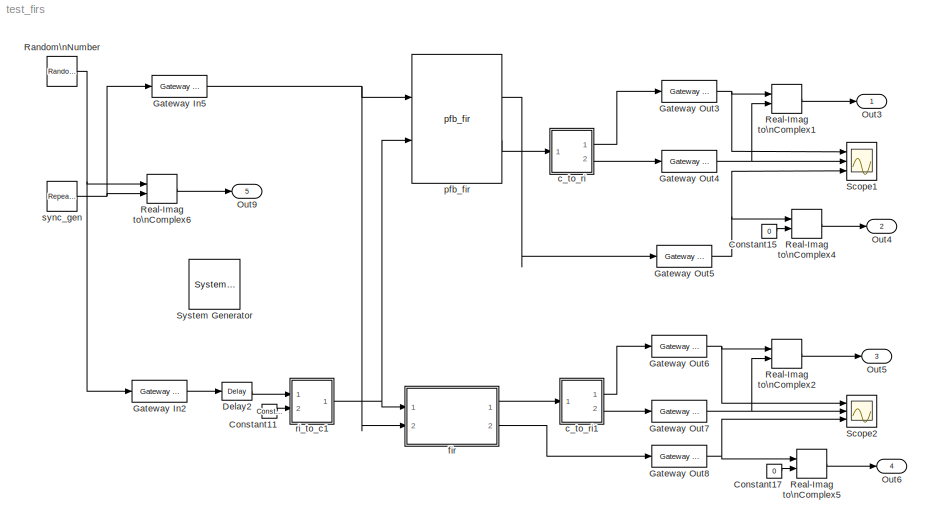
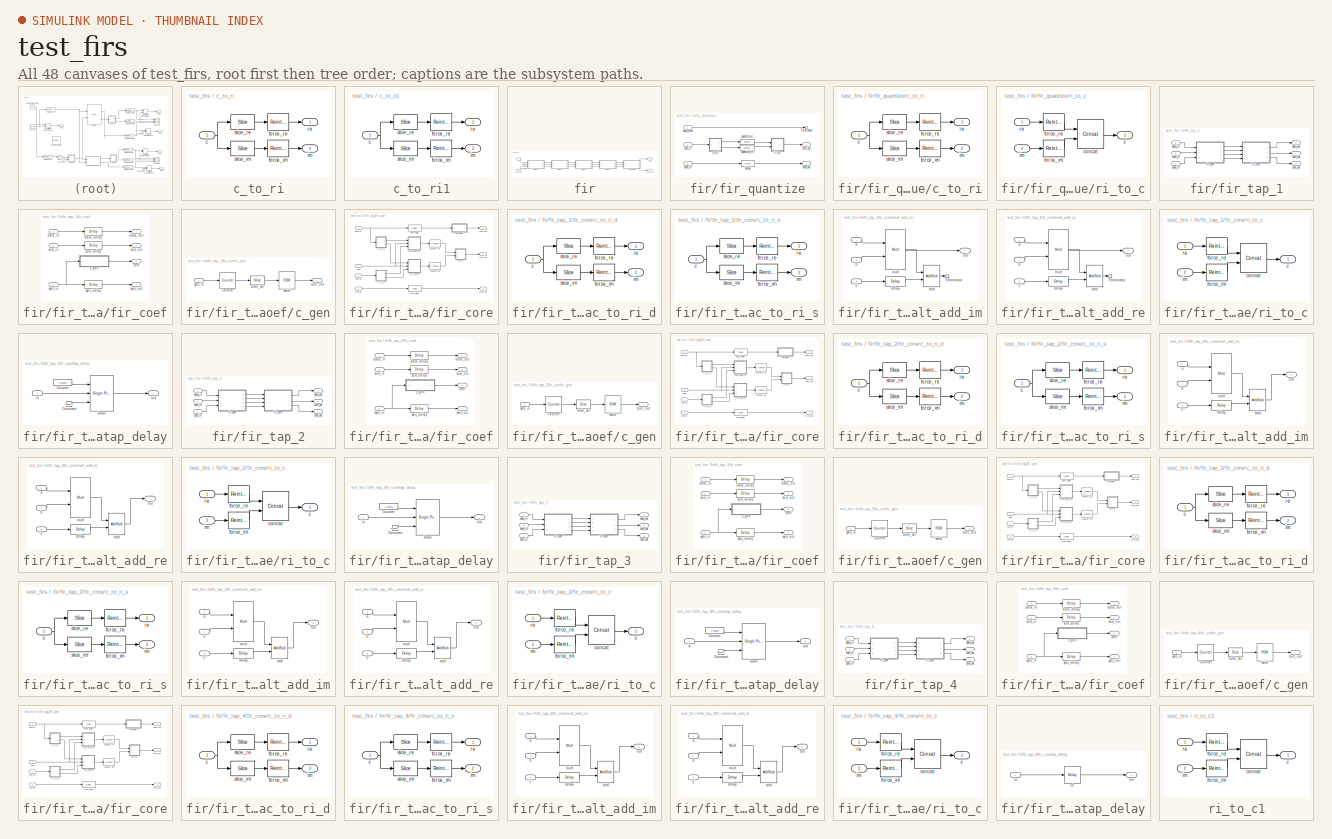
[diagram: thumbnail index - all 48 canvases of the model, root first then tree order]
MODEL test_firs
KIND model
BLOCK [Reference]  System Generator  REF=xbsIndex_r3/ System Generator
  AttributesFormatString = System\\nGenerator
  Ports = []
  ShowPortLabels = on
  SourceBlock = xbsIndex_r3/ System Generator
  SourceType = Xilinx System Generator
  Tag = genX
  UserData = DataTag0
  UserDataPersistent = on
  core_generation = According to Block Masks
  dbl_ovrd = According to Block Masks
  deprecated_control = off
  directory = ./netlist
  eval_field = 0
  incr_netlist = off
  package = bg575
  part = xc2v1000
  run_coregen = off
  simulink_period = 1
  speed = -4
  synthesis_tool = XST
  sysclk_period = 100
  testbench = off
  trim_vbits = Everywhere in SubSystem
  xilinxfamily = Virtex2
BLOCK [Reference] Constant11  REF=xbsIndex_r3/Constant
  Ports = [0, 1]
  SourceBlock = xbsIndex_r3/Constant
  SourceType = Xilinx Constant Block
  arith_type = Unsigned
  bin_pt = 7
  carry = CIN
  const = 0
  dbl_ovrd = off
  equ = P=C
  explicit_period = on
  inp1 = P
  inp2 = PCIN>>17
  iostate = 0
  n_bits = 8
  opr = +
  opselect = C
  period = 1
BLOCK [Constant] Constant15
  Value = 0
BLOCK [Constant] Constant17
  Value = 0
BLOCK [Reference] Delay2  REF=xbsIndex_r3/Delay
  Ports = [1, 1]
  SourceBlock = xbsIndex_r3/Delay
  SourceType = Xilinx Delay Block
  accept_only_valid = off
  dbl_ovrd = off
  en = off
  explicit_period = off
  init_zero = on
  latency = 1
  period = 1
  reg_retiming = off
  show_param = off
  xl_area = [0, 0, 0, 0, 0, 0, 0]
  xl_use_area = off
BLOCK [Reference] Gateway In2  REF=xbsIndex_r3/Gateway In
  LOCs = {}
  Ports = [1, 1]
  SourceBlock = xbsIndex_r3/Gateway In
  SourceType = Xilinx Gateway In
  arith_type = Signed  (2's comp)
  bin_pt = 7
  dbl_ovrd = off
  locs_specified = off
  n_bits = 8
  needs_fixed_name = off
  overflow = Wrap
  period = 1
  quantization = Round  (unbiased: +/- Inf)
  show_param = off
  timing_constraint = None
  xl_area = [0, 0, 0, 0, 0, 0, 0]
  xl_use_area = off
BLOCK [Reference] Gateway In5  REF=xbsIndex_r3/Gateway In
  LOCs = {}
  Ports = [1, 1]
  SourceBlock = xbsIndex_r3/Gateway In
  SourceType = Xilinx Gateway In
  arith_type = Boolean
  bin_pt = 7
  dbl_ovrd = off
  locs_specified = off
  n_bits = 8
  needs_fixed_name = off
  overflow = Wrap
  period = 1
  quantization = Truncate
  show_param = off
  timing_constraint = None
  xl_area = [0, 0, 0, 0, 0, 0, 0]
  xl_use_area = off
BLOCK [Reference] Gateway Out3  REF=xbsIndex_r3/Gateway Out
  LOCs = {}
  Ports = [1, 1]
  SourceBlock = xbsIndex_r3/Gateway Out
  SourceType = Xilinx Gateway Out
  arith_type = Boolean
  bin_pt = 6
  hdl_port = on
  locs_specified = off
  nbits = 8
  needs_fixed_name = off
  output_type = Double
  overflow = Wrap
  quantization = Truncate
  show_param = off
  timing_constraint = None
  xl_area = [0, 0, 0, 0, 0, 0, 0]
  xl_use_area = off
BLOCK [Reference] Gateway Out4  REF=xbsIndex_r3/Gateway Out
  LOCs = {}
  Ports = [1, 1]
  SourceBlock = xbsIndex_r3/Gateway Out
  SourceType = Xilinx Gateway Out
  arith_type = Boolean
  bin_pt = 6
  hdl_port = on
  locs_specified = off
  nbits = 8
  needs_fixed_name = off
  output_type = Double
  overflow = Wrap
  quantization = Truncate
  show_param = off
  timing_constraint = None
  xl_area = [0, 0, 0, 0, 0, 0, 0]
  xl_use_area = off
BLOCK [Reference] Gateway Out5  REF=xbsIndex_r3/Gateway Out
  LOCs = {}
  Ports = [1, 1]
  SourceBlock = xbsIndex_r3/Gateway Out
  SourceType = Xilinx Gateway Out
  arith_type = Boolean
  bin_pt = 6
  hdl_port = on
  locs_specified = off
  nbits = 8
  needs_fixed_name = off
  output_type = Double
  overflow = Wrap
  quantization = Truncate
  show_param = off
  timing_constraint = None
  xl_area = [0, 0, 0, 0, 0, 0, 0]
  xl_use_area = off
BLOCK [Reference] Gateway Out6  REF=xbsIndex_r3/Gateway Out
  LOCs = {}
  Ports = [1, 1]
  SourceBlock = xbsIndex_r3/Gateway Out
  SourceType = Xilinx Gateway Out
  arith_type = Boolean
  bin_pt = 6
  hdl_port = on
  locs_specified = off
  nbits = 8
  needs_fixed_name = off
  output_type = Double
  overflow = Wrap
  quantization = Truncate
  show_param = off
  timing_constraint = None
  xl_area = [0, 0, 0, 0, 0, 0, 0]
  xl_use_area = off
BLOCK [Reference] Gateway Out7  REF=xbsIndex_r3/Gateway Out
  LOCs = {}
  Ports = [1, 1]
  SourceBlock = xbsIndex_r3/Gateway Out
  SourceType = Xilinx Gateway Out
  arith_type = Boolean
  bin_pt = 6
  hdl_port = on
  locs_specified = off
  nbits = 8
  needs_fixed_name = off
  output_type = Double
  overflow = Wrap
  quantization = Truncate
  show_param = off
  timing_constraint = None
  xl_area = [0, 0, 0, 0, 0, 0, 0]
  xl_use_area = off
BLOCK [Reference] Gateway Out8  REF=xbsIndex_r3/Gateway Out
  LOCs = {}
  Ports = [1, 1]
  SourceBlock = xbsIndex_r3/Gateway Out
  SourceType = Xilinx Gateway Out
  arith_type = Boolean
  bin_pt = 6
  hdl_port = on
  locs_specified = off
  nbits = 8
  needs_fixed_name = off
  output_type = Double
  overflow = Wrap
  quantization = Truncate
  show_param = off
  timing_constraint = None
  xl_area = [0, 0, 0, 0, 0, 0, 0]
  xl_use_area = off
BLOCK [Outport] Out3
  BusOutputAsStruct = off
  IconDisplay = Port number
BLOCK [Outport] Out4
  BusOutputAsStruct = off
  IconDisplay = Port number
  Port = 2
BLOCK [Outport] Out5
  BusOutputAsStruct = off
  IconDisplay = Port number
  Port = 3
BLOCK [Outport] Out6
  BusOutputAsStruct = off
  IconDisplay = Port number
  Port = 4
BLOCK [Outport] Out9
  BusOutputAsStruct = off
  IconDisplay = Port number
  Port = 5
BLOCK [RandomNumber] Random\nNumber
  SampleTime = 1
  Seed = floor(100*(now-floor(now)))
  Variance = .3^2
BLOCK [RealImagToComplex] Real-Imag to\nComplex1
  Ports = [2, 1]
BLOCK [RealImagToComplex] Real-Imag to\nComplex2
  Ports = [2, 1]
BLOCK [RealImagToComplex] Real-Imag to\nComplex4
  Ports = [2, 1]
BLOCK [RealImagToComplex] Real-Imag to\nComplex5
  Ports = [2, 1]
BLOCK [RealImagToComplex] Real-Imag to\nComplex6
  Ports = [2, 1]
BLOCK [Scope] Scope1
  DataFormat = StructureWithTime
  NumInputPorts = 3
  Ports = [3]
  SaveName = ScopeData1
  YMax = 5~5~5
  YMin = -5~-5~-5
  ZoomMode = xonly
BLOCK [Scope] Scope2
  DataFormat = StructureWithTime
  NumInputPorts = 3
  Ports = [3]
  SaveName = ScopeData2
  YMax = 5~5~5
  YMin = -5~-5~-5
  ZoomMode = xonly
BLOCK [SubSystem] c_to_ri
  AttributesFormatString = 18_17 r/i
  MaskCallbackString = |
  MaskDescription = Outputs real and imaginary components of a complex input.
  MaskEnableString = on,on
  MaskHelp = <pre>\nDescription::\n\nOutputs real and imaginary components of a complex input.\nUseful for simplifying interconnects.\nSee also: Real-Imag to Complex (ri_to_c)\n\nMask Parameters::\n\nBit Width (n_bits): Specifies the width of the real/imaginary components.\nAssumed equal for both components.\n\nBinary Point (bin_pt): Specifies the binary point location in the real/imaginary components.\nAssume...<+36ch>  <repeated x11 — deduplicated; at blocks: c_to_ri, c_to_ri1, c_to_ri_d, c_to_ri_s>
  MaskIconFrame = on
  MaskIconOpaque = on
  MaskIconRotate = none
  MaskIconUnits = autoscale
  MaskInitialization = c_to_ri_init(gcb,n_bits,bin_pt);
  MaskPromptString = Bit Width|Binary Point
  MaskSelfModifiable = on
  MaskStyleString = edit,edit
  MaskTabNameString = ,
  MaskToolTipString = on,on
  MaskTunableValueString = on,on
  MaskType = Complex to Real-Imag
  MaskValueString = 18|17
  MaskVarAliasString = ,
  MaskVariables = n_bits=@1;bin_pt=@2;
  MaskVisibilityString = on,on
  MinAlgLoopOccurrences = off
  Ports = [1, 2]
  RTWSystemCode = Auto
  TreatAsAtomicUnit = off
  UserData = DataTag1
  UserDataPersistent = on
BLOCK [Inport] c_to_ri/c
  IconDisplay = Port number
  LatchInput = off
  Port = 1
BLOCK [Reference] c_to_ri/force_im  REF=xbsIndex_r3/Reinterpret
  Ports = [1, 1]
  SourceBlock = xbsIndex_r3/Reinterpret
  SourceType = Xilinx Type Reinterpreting Block
  arith_type = Signed  (2's comp)
  bin_pt = 17
  force_arith_type = on
  force_bin_pt = on
  force_valid = on
BLOCK [Reference] c_to_ri/force_re  REF=xbsIndex_r3/Reinterpret
  Ports = [1, 1]
  SourceBlock = xbsIndex_r3/Reinterpret
  SourceType = Xilinx Type Reinterpreting Block
  arith_type = Signed  (2's comp)
  bin_pt = 17
  force_arith_type = on
  force_bin_pt = on
  force_valid = on
BLOCK [Outport] c_to_ri/im
  BusOutputAsStruct = off
  IconDisplay = Port number
  Port = 2
BLOCK [Outport] c_to_ri/re
  BusOutputAsStruct = off
  IconDisplay = Port number
BLOCK [Reference] c_to_ri/slice_im  REF=xbsIndex_r3/Slice
  Ports = [1, 1]
  SourceBlock = xbsIndex_r3/Slice
  SourceType = Xilinx Slice Block
  base0 = LSB of Input
  base1 = MSB of Input
  bit0 = 0
  bit1 = 0
  boolean_output = off
  dbl_ovrd = off
  explicit_period = off
  mode = Lower Bit Location + Width
  nbits = 18
  period = 1
BLOCK [Reference] c_to_ri/slice_re  REF=xbsIndex_r3/Slice
  Ports = [1, 1]
  SourceBlock = xbsIndex_r3/Slice
  SourceType = Xilinx Slice Block
  base0 = LSB of Input
  base1 = MSB of Input
  bit0 = 0
  bit1 = 0
  boolean_output = off
  dbl_ovrd = off
  explicit_period = off
  mode = Upper Bit Location + Width
  nbits = 18
  period = 1
BLOCK [SubSystem] c_to_ri1
  AttributesFormatString = 9_7 r/i
  MaskCallbackString = |
  MaskDescription = Outputs real and imaginary components of a complex input.
  MaskEnableString = on,on
  MaskIconFrame = on
  MaskIconOpaque = on
  MaskIconRotate = none
  MaskIconUnits = autoscale
  MaskInitialization = c_to_ri_init(gcb,n_bits,bin_pt);
  MaskPromptString = Bit Width|Binary Point
  MaskSelfModifiable = on
  MaskStyleString = edit,edit
  MaskTabNameString = ,
  MaskToolTipString = on,on
  MaskTunableValueString = on,on
  MaskType = Complex to Real-Imag
  MaskValueString = 9|7
  MaskVarAliasString = ,
  MaskVariables = n_bits=@1;bin_pt=@2;
  MaskVisibilityString = on,on
  MinAlgLoopOccurrences = off
  Ports = [1, 2]
  RTWSystemCode = Auto
  TreatAsAtomicUnit = off
  UserData = DataTag2
  UserDataPersistent = on
BLOCK [Inport] c_to_ri1/c
  IconDisplay = Port number
  LatchInput = off
  Port = 1
BLOCK [Reference] c_to_ri1/force_im  REF=xbsIndex_r3/Reinterpret
  Ports = [1, 1]
  SourceBlock = xbsIndex_r3/Reinterpret
  SourceType = Xilinx Type Reinterpreting Block
  arith_type = Signed  (2's comp)
  bin_pt = 7
  force_arith_type = on
  force_bin_pt = on
  force_valid = on
BLOCK [Reference] c_to_ri1/force_re  REF=xbsIndex_r3/Reinterpret
  Ports = [1, 1]
  SourceBlock = xbsIndex_r3/Reinterpret
  SourceType = Xilinx Type Reinterpreting Block
  arith_type = Signed  (2's comp)
  bin_pt = 7
  force_arith_type = on
  force_bin_pt = on
  force_valid = on
BLOCK [Outport] c_to_ri1/im
  BusOutputAsStruct = off
  IconDisplay = Port number
  Port = 2
BLOCK [Outport] c_to_ri1/re
  BusOutputAsStruct = off
  IconDisplay = Port number
BLOCK [Reference] c_to_ri1/slice_im  REF=xbsIndex_r3/Slice
  Ports = [1, 1]
  SourceBlock = xbsIndex_r3/Slice
  SourceType = Xilinx Slice Block
  base0 = LSB of Input
  base1 = MSB of Input
  bit0 = 0
  bit1 = 0
  boolean_output = off
  dbl_ovrd = off
  explicit_period = off
  mode = Lower Bit Location + Width
  nbits = 9
  period = 1
BLOCK [Reference] c_to_ri1/slice_re  REF=xbsIndex_r3/Slice
  Ports = [1, 1]
  SourceBlock = xbsIndex_r3/Slice
  SourceType = Xilinx Slice Block
  base0 = LSB of Input
  base1 = MSB of Input
  bit0 = 0
  bit1 = 0
  boolean_output = off
  dbl_ovrd = off
  explicit_period = off
  mode = Upper Bit Location + Width
  nbits = 9
  period = 1
BLOCK [SubSystem] fir
  AncestorBlock = newfft_library/FIR/fir
  AttributesFormatString = 4 taps\n9_8 coefs\n8_7 in\n9_7 out
  MaskCallbackString = |||||||||||mvs=get_param(gcb,'MaskVisibilityString');\nif strcmp(get_param(gcb,'show_sbo'),'on')\n  onoff='on';\nelse\n  onoff='off';\nend\nmvs=regexprep(mvs,'o[nf]*$',onoff);\nset_param(gcb,'MaskVisibilityString',mvs);\n|
  MaskDescription = A Finite Impluse Response Filter.  This FIR filter does not have provisions for folding the input sequence to improve multiplier efficiency, so it is suboptimal for \"regular\" (i.e. non-WOLA) FIR filters.  It is intended primarily for WOLA (Weighted OverLap Add) FIR filters.
  MaskEnableString = on,on,on,on,on,on,on,on,on,on,on,on,on
  MaskHelp = <pre>\nDescription::\n\nA Finite Impluse Response Filter.\n\nThis Finite Impluse Response Filter does not have provisions for folding the input\nsequence to improve multiplier efficiency, so it is suboptimal for \"regular\" (i.e. non-WOLA)\nFIR filters.  It is intended primarily for WOLA (Weighted OverLap Add) FIR filters.\n\nMask Parameters::\n\nCoefficiant(s) (coefs): Matrix of real double(s) to...<+1635ch>
  MaskIconFrame = on
  MaskIconOpaque = on
  MaskIconRotate = none
  MaskIconUnits = autoscale
  MaskInitialization = tic\nfir_init(gcb, ...\n  coefs, ...\n  n_bits_c, ...\n  bin_pt_c, ...\n  n_bits_d, ...\n  bin_pt_d, ...\n  n_bits_o, ...\n  bin_pt_o, ...\n  coef_bram, ...\n  delay_bram, ...\n  mult_latency, ...\n  add_latency, ...\n  lower(get_param(gcb,'munge_submasks')) );\ndisp('fir_init complete.');\ntoc
  MaskPromptString = Tap Coefficients|Number of Coefficient Bits|Coefficient Binary Point|Number of Data Bits|Data Binary Point|Number of Bits Out|Binary Point Out|Use BRAM for Coefficients|Use BRAM for Delay|Multiplier Latency|Adder Latency|Show Sub-Block Options|Sub-Block Masks
  MaskSelfModifiable = on
  MaskStyleString = edit,edit,edit,edit,edit,edit,edit,checkbox,checkbox,edit,edit,checkbox,popup(Keep|DumbDown|Unmask)
  MaskTabNameString = ,,,,,,,,,,,,
  MaskToolTipString = on,on,on,on,on,on,on,on,on,on,on,on,on
  MaskTunableValueString = on,on,on,on,on,on,on,on,on,on,on,on,on
  MaskType = FIR Filter
  MaskValueString = pfb_coefs(64,4)|9|8|8|7|9|7|on|on|3|1|on|DumbDown
  MaskVarAliasString = ,,,,,,,,,,,,
  MaskVariables = coefs=@1;n_bits_c=@2;bin_pt_c=@3;n_bits_d=@4;bin_pt_d=@5;n_bits_o=@6;bin_pt_o=@7;coef_bram=@8;delay_bram=@9;mult_latency=@10;add_latency=@11;show_sbo=@12;munge_submasks=@13;
  MaskVisibilityString = on,on,on,on,on,on,on,on,on,on,on,on,on
  MinAlgLoopOccurrences = off
  Ports = [2, 2]
  RTWSystemCode = Auto
  TreatAsAtomicUnit = off
  UserData = DataTag3
  UserDataPersistent = on
BLOCK [Reference] fir/Constant  REF=xbsIndex_r3/Constant
  Ports = [0, 1]
  SourceBlock = xbsIndex_r3/Constant
  SourceType = Xilinx Constant Block
  arith_type = Unsigned
  bin_pt = 0
  carry = CIN
  const = 0
  dbl_ovrd = off
  equ = P=C
  explicit_period = on
  inp1 = P
  inp2 = PCIN>>17
  iostate = 0
  n_bits = 34
  opr = +
  opselect = C
  period = 1
BLOCK [SubSystem] fir/fir_quantize
  AttributesFormatString = 17_15 in\n9_7 out\nround even
  MaskCallbackString = |||
  MaskDescription = A Finite Impluse Response Filter ouput quantizer.  This FIR filter output quantizer rounds the sum_in value to the precision specified by n_bits and bin_pt.  Overflow wraps, but quantization rounds to even if input binary point is greater than output binary point, otherwise quantization tuncates.
  MaskEnableString = off,off,off,off
  MaskHelp = <pre>\nDescription::\n\nA Finite Impluse Response Filter ouput quantizer.  This FIR filter output quantizer\nrounds the sum_in value to the precision specified by n_bits and bin_pt.\n\nOverflow wraps, but quantization rounds to even if input binary point is greater\nthan output binary point, otherwise quantization tuncates.\n\nMask Parameters::\n\nNumber of Bits In (n_bits_s): Specifies the width ...<+389ch>
  MaskIconFrame = on
  MaskIconOpaque = on
  MaskIconRotate = none
  MaskIconUnits = autoscale
  MaskPromptString = Number of Bits In|Binary Point In|Number of Bits Out|Binary Point Out
  MaskSelfModifiable = on
  MaskStyleString = edit,edit,edit,edit
  MaskTabNameString = ,,,
  MaskToolTipString = on,on,on,on
  MaskTunableValueString = off,off,off,off
  MaskType = FIR Filter Quantizer
  MaskValueString = 17|15|9|7
  MaskVarAliasString = ,,,
  MaskVariables = n_bits_s=&1;bin_pt_s=&2;n_bits_o=&3;bin_pt_o=&4;
  MaskVisibilityString = on,on,on,on
  MinAlgLoopOccurrences = off
  Ports = [3, 2]
  RTWSystemCode = Auto
  TreatAsAtomicUnit = off
  UserData = DataTag4
  UserDataPersistent = on
BLOCK [Terminator] fir/fir_quantize/Terminator
BLOCK [SubSystem] fir/fir_quantize/c_to_ri
  AttributesFormatString = 17_15 r/i
  MaskCallbackString = |
  MaskDescription = Outputs real and imaginary components of a complex input.
  MaskEnableString = off,off
  MaskIconFrame = on
  MaskIconOpaque = on
  MaskIconRotate = none
  MaskIconUnits = autoscale
  MaskPromptString = Bit Width|Binary Point
  MaskSelfModifiable = on
  MaskStyleString = edit,edit
  MaskTabNameString = ,
  MaskToolTipString = on,on
  MaskTunableValueString = off,off
  MaskType = Complex to Real-Imag
  MaskValueString = 17|15
  MaskVarAliasString = ,
  MaskVariables = n_bits=&1;bin_pt=&2;
  MaskVisibilityString = on,on
  MinAlgLoopOccurrences = off
  Ports = [1, 2]
  RTWSystemCode = Auto
  TreatAsAtomicUnit = off
  UserData = DataTag5
  UserDataPersistent = on
BLOCK [Inport] fir/fir_quantize/c_to_ri/c
  IconDisplay = Port number
  LatchInput = off
  Port = 1
BLOCK [Reference] fir/fir_quantize/c_to_ri/force_im  REF=xbsIndex_r3/Reinterpret
  Ports = [1, 1]
  SourceBlock = xbsIndex_r3/Reinterpret
  SourceType = Xilinx Type Reinterpreting Block
  arith_type = Signed  (2's comp)
  bin_pt = 15
  force_arith_type = on
  force_bin_pt = on
  force_valid = on
BLOCK [Reference] fir/fir_quantize/c_to_ri/force_re  REF=xbsIndex_r3/Reinterpret
  Ports = [1, 1]
  SourceBlock = xbsIndex_r3/Reinterpret
  SourceType = Xilinx Type Reinterpreting Block
  arith_type = Signed  (2's comp)
  bin_pt = 15
  force_arith_type = on
  force_bin_pt = on
  force_valid = on
BLOCK [Outport] fir/fir_quantize/c_to_ri/im
  BusOutputAsStruct = off
  IconDisplay = Port number
  Port = 2
BLOCK [Outport] fir/fir_quantize/c_to_ri/re
  BusOutputAsStruct = off
  IconDisplay = Port number
BLOCK [Reference] fir/fir_quantize/c_to_ri/slice_im  REF=xbsIndex_r3/Slice
  Ports = [1, 1]
  SourceBlock = xbsIndex_r3/Slice
  SourceType = Xilinx Slice Block
  base0 = LSB of Input
  base1 = MSB of Input
  bit0 = 0
  bit1 = 0
  boolean_output = off
  dbl_ovrd = off
  explicit_period = off
  mode = Lower Bit Location + Width
  nbits = 17
  period = 1
BLOCK [Reference] fir/fir_quantize/c_to_ri/slice_re  REF=xbsIndex_r3/Slice
  Ports = [1, 1]
  SourceBlock = xbsIndex_r3/Slice
  SourceType = Xilinx Slice Block
  base0 = LSB of Input
  base1 = MSB of Input
  bit0 = 0
  bit1 = 0
  boolean_output = off
  dbl_ovrd = off
  explicit_period = off
  mode = Upper Bit Location + Width
  nbits = 17
  period = 1
BLOCK [Inport] fir/fir_quantize/data_term
  IconDisplay = Port number
  LatchInput = off
  Port = 1
BLOCK [Reference] fir/fir_quantize/delay  REF=xbsIndex_r3/Delay
  Ports = [1, 1]
  SourceBlock = xbsIndex_r3/Delay
  SourceType = Xilinx Delay Block
  accept_only_valid = off
  dbl_ovrd = off
  en = off
  explicit_period = off
  init_zero = on
  latency = 3
  period = 1
  reg_retiming = off
  show_param = on
  xl_area = [0, 0, 0, 0, 0, 0, 0]
  xl_use_area = off
BLOCK [Reference] fir/fir_quantize/quantize_im  REF=xbsIndex_r3/Convert
  Ports = [1, 1]
  SourceBlock = xbsIndex_r3/Convert
  SourceType = Xilinx Converter Block
  arith_type = Signed  (2's comp)
  bin_pt = 7
  dbl_ovrd = off
  explicit_period = off
  inserted_by_tool = off
  latency = 3
  n_bits = 9
  overflow = Wrap
  period = 1
  pipeline = on
  quantization = Round  (unbiased: Even Values)
  show_param = on
  xl_area = [0, 0, 0, 0, 0, 0, 0]
  xl_use_area = off
BLOCK [Reference] fir/fir_quantize/quantize_re  REF=xbsIndex_r3/Convert
  Ports = [1, 1]
  SourceBlock = xbsIndex_r3/Convert
  SourceType = Xilinx Converter Block
  arith_type = Signed  (2's comp)
  bin_pt = 7
  dbl_ovrd = off
  explicit_period = off
  inserted_by_tool = off
  latency = 3
  n_bits = 9
  overflow = Wrap
  period = 1
  pipeline = on
  quantization = Round  (unbiased: Even Values)
  show_param = on
  xl_area = [0, 0, 0, 0, 0, 0, 0]
  xl_use_area = off
BLOCK [SubSystem] fir/fir_quantize/ri_to_c
  MaskDescription = Concatenates real and imaginary inputs into a complex output.
  MaskHelp = <pre>\nDescription::\n\nConcatenates a real and imaginary input into a complex output.\nUseful for simplifying interconnects.\nSee also: Complex to Real-Imag (c_to_ri)\n\nMask Parameters::\n\n(N/A)\n</pre>  <repeated x6 — deduplicated; at blocks: ri_to_c, ri_to_c1>
  MaskIconFrame = on
  MaskIconOpaque = on
  MaskIconRotate = none
  MaskIconUnits = autoscale
  MaskInitialization = ri_to_c_init(gcb);
  MaskSelfModifiable = on
  MaskType = Real-Imag to Complex
  MinAlgLoopOccurrences = off
  Ports = [2, 1]
  RTWSystemCode = Auto
  TreatAsAtomicUnit = off
  UserData = DataTag6
  UserDataPersistent = on
BLOCK [Outport] fir/fir_quantize/ri_to_c/c
  BusOutputAsStruct = off
  IconDisplay = Port number
BLOCK [Reference] fir/fir_quantize/ri_to_c/concat  REF=xbsIndex_r3/Concat
  Ports = [2, 1]
  SourceBlock = xbsIndex_r3/Concat
  SourceType = Xilinx Bus Concatenator
  dbl_ovrd = off
  explicit_period = off
  num_inputs = 2
  period = 1
BLOCK [Reference] fir/fir_quantize/ri_to_c/force_im  REF=xbsIndex_r3/Reinterpret
  Ports = [1, 1]
  SourceBlock = xbsIndex_r3/Reinterpret
  SourceType = Xilinx Type Reinterpreting Block
  arith_type = Unsigned
  bin_pt = 0
  force_arith_type = on
  force_bin_pt = on
  force_valid = on
BLOCK [Reference] fir/fir_quantize/ri_to_c/force_re  REF=xbsIndex_r3/Reinterpret
  Ports = [1, 1]
  SourceBlock = xbsIndex_r3/Reinterpret
  SourceType = Xilinx Type Reinterpreting Block
  arith_type = Unsigned
  bin_pt = 0
  force_arith_type = on
  force_bin_pt = on
  force_valid = on
BLOCK [Inport] fir/fir_quantize/ri_to_c/im
  IconDisplay = Port number
  LatchInput = off
  Port = 2
BLOCK [Inport] fir/fir_quantize/ri_to_c/re
  IconDisplay = Port number
  LatchInput = off
  Port = 1
BLOCK [Inport] fir/fir_quantize/sum_in
  IconDisplay = Port number
  LatchInput = off
  Port = 2
BLOCK [Outport] fir/fir_quantize/sum_out
  BusOutputAsStruct = off
  IconDisplay = Port number
BLOCK [Inport] fir/fir_quantize/sync_in
  IconDisplay = Port number
  LatchInput = off
  Port = 3
BLOCK [Outport] fir/fir_quantize/sync_out
  BusOutputAsStruct = off
  IconDisplay = Port number
  Port = 2
BLOCK [SubSystem] fir/fir_tap_1
  AttributesFormatString = delay 64 in bram\n64 coefs in bram\\nno adder
  MaskCallbackString = ||||||||||||
  MaskDescription = A Finite Impluse Response Filter tap with real coefficients.  This FIR filter tap does not have provisions for folding the input sequence to improve multiplier efficiency, so it is suboptimal for \"regular\" (i.e. non-WOLA) FIR filters.  It is intended primarily for WOLA (Weighted OverLap Add) FIR filters.  <repeated x4 — deduplicated; at blocks: fir_tap_1, fir_tap_2, fir_tap_3, fir_tap_4>
  MaskEnableString = off,off,off,off,off,off,off,off,off,off,off,off,off
  MaskHelp = <pre>\nDescription::\n\nA Finite Impluse Response Filter tap with real coefficients.\n\nThis Finite Impluse Response Filter tap is designed to be daisy chained together\nto form a multi-tap FIR filter.  This FIR filter tap does not have provisions for folding the input\nsequence to improve multiplier efficiency, so it is suboptimal for \"regular\" (i.e. non-WOLA)\nFIR filters.  It is intended prim...<+1961ch>  <repeated x4 — deduplicated; at blocks: fir_tap_1, fir_tap_2, fir_tap_3, fir_tap_4>
  MaskIconFrame = on
  MaskIconOpaque = on
  MaskIconRotate = none
  MaskIconUnits = autoscale
  MaskPromptString = Tap Delay|Tap Coefficient(s)|Number of Coefficient Bits|Coefficient Binary Point|Number of Data Bits|Data Binary Point|Number of Sum Bits|Sum Binary Point|Use BRAM for Coefficients|Use BRAM for Delay|Multiplier Latency|Adder Latency|Bypass Adder  <repeated x4 — deduplicated; at blocks: fir_tap_1, fir_tap_2, fir_tap_3, fir_tap_4>
  MaskSelfModifiable = on
  MaskStyleString = edit,edit,edit,edit,edit,edit,edit,edit,checkbox,checkbox,edit,edit,checkbox
  MaskTabNameString = ,,,,,,,,,,,,
  MaskToolTipString = on,on,on,on,on,on,on,on,on,on,on,on,on
  MaskTunableValueString = off,off,off,off,off,off,off,off,off,off,off,off,off
  MaskType = FIR Filter Tap (Real Coefficients)
  MaskValueString = 64|[-0.00411973909604202;-0.0119015518843096;-0.0190818823895147;-0.0256724955662416;-0.03168654178132;-0.0371384687203353;-0.0420439301426944;-0.0464196919199395;-0.0502835357982813;-0.0536541613305752;-0.0565510864251856;-0.0589945469593747;-0.0610053959030371;-0.0626050023947942;-0.0638151512067052;-0.0646579430261756;-0.0651556959741166;-0.0653308487670656;-0.0652058659179099;-0.06480314535512...<+915ch>
  MaskVarAliasString = ,,,,,,,,,,,,
  MaskVariables = delay=&1;coef=&2;n_bits_c=&3;bin_pt_c=&4;n_bits_d=&5;bin_pt_d=&6;n_bits_s=&7;bin_pt_s=&8;coef_bram=&9;delay_bram=&10;mult_latency=&11;add_latency=&12;add_bypass=&13;
  MaskVisibilityString = on,on,on,on,on,on,on,on,on,on,on,on,on
  MinAlgLoopOccurrences = off
  Ports = [3, 3]
  RTWSystemCode = Auto
  TreatAsAtomicUnit = off
  UserData = DataTag7
  UserDataPersistent = on
BLOCK [Inport] fir/fir_tap_1/data_in
  IconDisplay = Port number
  LatchInput = off
  Port = 1
BLOCK [Outport] fir/fir_tap_1/data_out
  BusOutputAsStruct = off
  IconDisplay = Port number
BLOCK [SubSystem] fir/fir_tap_1/fir_coef
  AttributesFormatString = 64 coefs in bram
  MaskCallbackString = |||
  MaskDescription = A Finite Impluse Response filter coefficient generator.  This FIR filter coefficient generator outputs real coefficients.  It can output one coefficient or cycle through a vector of coefficients for WOLA (Weighted OverLap Add) FIR filters.  <repeated x4 — deduplicated; at blocks: fir_coef>
  MaskEnableString = off,off,off,off
  MaskHelp = <pre>\nDescription::\n\nA Finite Impluse Response filter coefficient generator.\nThis FIR filter coefficient generator outputs real coefficients.\nIt can output one coefficient or cycle through a vector of coefficients for WOLA\n(Weighted OverLap Add) FIR filters.\n\nMask Parameters::\n\nTap Coefficiant(s) (coef): The coefficient(s) to output.  For a \"regular\" FIR filter, this will be a\nsingle ...<+781ch>  <repeated x4 — deduplicated; at blocks: fir_coef>
  MaskIconFrame = on
  MaskIconOpaque = on
  MaskIconRotate = none
  MaskIconUnits = autoscale
  MaskPromptString = Tap Coefficient(s)|Number of Coefficient Bits|Coefficient Binary Point|Use BRAM for Coefficients
  MaskSelfModifiable = on
  MaskStyleString = edit,edit,edit,checkbox
  MaskTabNameString = ,,,
  MaskToolTipString = on,on,on,on
  MaskTunableValueString = off,off,off,off
  MaskType = FIR Filter Coefficient Generator
  MaskValueString = [-0.00411973909604202;-0.0119015518843096;-0.0190818823895147;-0.0256724955662416;-0.03168654178132;-0.0371384687203353;-0.0420439301426944;-0.0464196919199395;-0.0502835357982813;-0.0536541613305752;-0.0565510864251856;-0.0589945469593747;-0.0610053959030371;-0.0626050023947942;-0.0638151512067052;-0.0646579430261756;-0.0651556959741166;-0.0653308487670656;-0.0652058659179099;-0.064803145355121;-...<+892ch>
  MaskVarAliasString = ,,,
  MaskVariables = coef=&1;n_bits_c=&2;bin_pt_c=&3;use_bram=&4;
  MaskVisibilityString = on,on,on,on
  MinAlgLoopOccurrences = off
  Ports = [3, 4]
  RTWSystemCode = Auto
  TreatAsAtomicUnit = off
  UserData = DataTag8
  UserDataPersistent = on
BLOCK [SubSystem] fir/fir_tap_1/fir_coef/c_gen
  AttributesFormatString = 64 coefs in bram\n9_8 out/1
  MaskCallbackString = ||||
  MaskDescription = A coefficient generator.
  MaskEnableString = off,off,off,off,off
  MaskHelp = <pre>\nDescription::\n\nA coefficient generator.\n\nMask Parameters::\n\nCoefficiants (coefs): The coefficients to output.  These should be specified as doubles.\nThey will be rounded/saturated according to the specified number of bits (n_bits)\nand binary point (bin_pt).\n\nNumber of Coefficient Bits (n_bits): The number of bits used for the fixed point binary\nrepresentation of the coefficients....<+469ch>  <repeated x4 — deduplicated; at blocks: c_gen>
  MaskIconFrame = on
  MaskIconOpaque = on
  MaskIconRotate = none
  MaskIconUnits = autoscale
  MaskPromptString = Coefficients|Number of Bits|Binary Point|Log2 Cycles per Coefficient|Use BRAM
  MaskSelfModifiable = on
  MaskStyleString = edit,edit,edit,edit,checkbox
  MaskTabNameString = ,,,,
  MaskToolTipString = on,on,on,on,on
  MaskTunableValueString = off,off,off,off,off
  MaskType = Coefficient Generator
  MaskValueString = [-0.00411973909604202;-0.0119015518843096;-0.0190818823895147;-0.0256724955662416;-0.03168654178132;-0.0371384687203353;-0.0420439301426944;-0.0464196919199395;-0.0502835357982813;-0.0536541613305752;-0.0565510864251856;-0.0589945469593747;-0.0610053959030371;-0.0626050023947942;-0.0638151512067052;-0.0646579430261756;-0.0651556959741166;-0.0653308487670656;-0.0652058659179099;-0.064803145355121;-...<+894ch>
  MaskVarAliasString = ,,,,
  MaskVariables = coefs=&1;n_bits=&2;bin_pt=&3;log2_cpc=&4;use_bram=&5;
  MaskVisibilityString = on,on,on,on,on
  MinAlgLoopOccurrences = off
  Ports = [1, 1]
  RTWSystemCode = Auto
  TreatAsAtomicUnit = off
  UserData = DataTag9
  UserDataPersistent = on
BLOCK [Reference] fir/fir_tap_1/fir_coef/c_gen/Counter  REF=xbsIndex_r3/Counter
  Ports = [1, 1]
  SourceBlock = xbsIndex_r3/Counter
  SourceType = Xilinx Counter Block
  arith_type = Unsigned
  bin_pt = 0
  cnt_by_val = 1
  cnt_to = 63
  cnt_type = Count Limited
  dbl_ovrd = off
  en = off
  explicit_period = off
  gen_core = off
  load_pin = off
  n_bits = 6
  operation = Up
  period = 1
  rst = on
  show_param = on
  start_count = 0
  use_rpm = on
  xl_area = [0, 0, 0, 0, 0, 0, 0]
  xl_use_area = off
BLOCK [Reference] fir/fir_tap_1/fir_coef/c_gen/addr_sel  REF=xbsIndex_r3/Slice
  Ports = [1, 1]
  SourceBlock = xbsIndex_r3/Slice
  SourceType = Xilinx Slice Block
  base0 = MSB of Input
  base1 = MSB of Input
  bit0 = -1
  bit1 = 0
  boolean_output = off
  dbl_ovrd = off
  explicit_period = off
  mode = Upper Bit Location + Width
  nbits = 6
  period = 1
BLOCK [Outport] fir/fir_tap_1/fir_coef/c_gen/coef_out
  BusOutputAsStruct = off
  IconDisplay = Port number
BLOCK [Reference] fir/fir_tap_1/fir_coef/c_gen/mem  REF=xbsIndex_r3/ROM
  AttributesFormatString = depth = %<depth>\\ndist_mem = %<distributed_mem>
  Ports = [1, 1]
  SourceBlock = xbsIndex_r3/ROM
  SourceType = Xilinx Single Port Read-Only Memory
  arith_type = Signed  (2's comp)
  bin_pt = 8
  dbl_ovrd = off
  depth = 64
  distributed_mem = off
  en = off
  explicit_period = off
  gen_core = off
  initVector = [-0.00390625;-0.01171875;-0.01953125;-0.02734375;-0.03125;-0.0390625;-0.04296875;-0.046875;-0.05078125;-0.0546875;-0.0546875;-0.05859375;-0.0625;-0.0625;-0.0625;-0.06640625;-0.06640625;-0.06640625;-0.06640625;-0.06640625;-0.0625;-0.0625;-0.0625;-0.0625;-0.05859375;-0.05859375;-0.0546875;-0.0546875;-0.05078125;-0.05078125;-0.046875;-0.046875;-0.04296875;-0.04296875;-0.0390625;-0.0390625;-0.03515625...<+276ch>
  init_reg = 0
  init_zero = on
  latency = 1
  n_bits = 9
  period = 1
  rst = off
  show_param = on
  use_rpm = on
  xl_area = [0, 0, 0, 0, 0, 0, 0]
  xl_use_area = off
BLOCK [Inport] fir/fir_tap_1/fir_coef/c_gen/sync_in
  IconDisplay = Port number
  LatchInput = off
  Port = 1
BLOCK [Outport] fir/fir_tap_1/fir_coef/coef
  BusOutputAsStruct = off
  IconDisplay = Port number
  Port = 3
BLOCK [Reference] fir/fir_tap_1/fir_coef/data_delay  REF=xbsIndex_r3/Delay
  Ports = [1, 1]
  SourceBlock = xbsIndex_r3/Delay
  SourceType = Xilinx Delay Block
  accept_only_valid = off
  dbl_ovrd = off
  en = off
  explicit_period = off
  init_zero = on
  latency = 1
  period = 1
  reg_retiming = off
  show_param = on
  xl_area = [0, 0, 0, 0, 0, 0, 0]
  xl_use_area = off
BLOCK [Inport] fir/fir_tap_1/fir_coef/data_in
  IconDisplay = Port number
  LatchInput = off
  Port = 1
BLOCK [Outport] fir/fir_tap_1/fir_coef/data_out
  BusOutputAsStruct = off
  IconDisplay = Port number
BLOCK [Reference] fir/fir_tap_1/fir_coef/sum_delay  REF=xbsIndex_r3/Delay
  Ports = [1, 1]
  SourceBlock = xbsIndex_r3/Delay
  SourceType = Xilinx Delay Block
  accept_only_valid = off
  dbl_ovrd = off
  en = off
  explicit_period = off
  init_zero = on
  latency = 1
  period = 1
  reg_retiming = off
  show_param = on
  xl_area = [0, 0, 0, 0, 0, 0, 0]
  xl_use_area = off
BLOCK [Inport] fir/fir_tap_1/fir_coef/sum_in
  IconDisplay = Port number
  LatchInput = off
  Port = 2
BLOCK [Outport] fir/fir_tap_1/fir_coef/sum_out
  BusOutputAsStruct = off
  IconDisplay = Port number
  Port = 2
BLOCK [Reference] fir/fir_tap_1/fir_coef/sync_delay  REF=xbsIndex_r3/Delay
  Ports = [1, 1]
  SourceBlock = xbsIndex_r3/Delay
  SourceType = Xilinx Delay Block
  accept_only_valid = off
  dbl_ovrd = off
  en = off
  explicit_period = off
  init_zero = on
  latency = 1
  period = 1
  reg_retiming = off
  show_param = off
  xl_area = [0, 0, 0, 0, 0, 0, 0]
  xl_use_area = off
BLOCK [Inport] fir/fir_tap_1/fir_coef/sync_in
  IconDisplay = Port number
  LatchInput = off
  Port = 3
BLOCK [Outport] fir/fir_tap_1/fir_coef/sync_out
  BusOutputAsStruct = off
  IconDisplay = Port number
  Port = 4
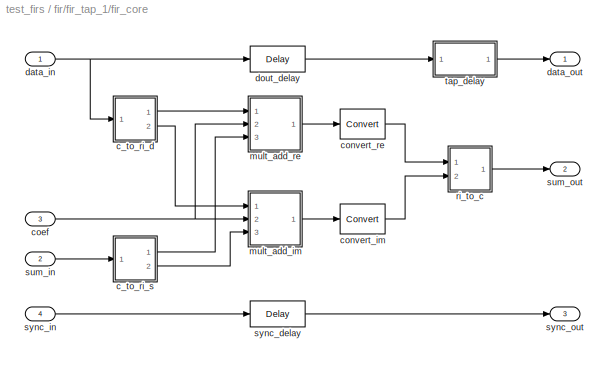
BLOCK [SubSystem] fir/fir_tap_1/fir_core
  AttributesFormatString = delay 64 in bram\\nno adder
  MaskCallbackString = ||||||||
  MaskDescription = A Finite Impluse Response Filter core with complex inputs and real coefficients.  This FIR filter core does not have provisions for folding the input sequence to improve multiplier efficiency, so it is suboptimal for \"regular\" (i.e. non-WOLA) FIR filters.  It is intended primarily for WOLA (Weighted OverLap Add) FIR filters.  <repeated x4 — deduplicated; at blocks: fir_core>
  MaskEnableString = off,off,off,off,off,off,off,off,off
  MaskHelp = <pre>\nDescription::\n\nA Finite Impluse Response Filter core with complex inputs and real coefficients.\n\nThis Finite Impluse Response Filter core is designed to be paired with a FIR Coefficient Generator \nto form a FIR filter tap.  This FIR filter core does not have provisions for folding the input\nsequence to improve multiplier efficiency, so it is suboptimal for \"regular\" (i.e. non-WOLA)\...<+1048ch>  <repeated x4 — deduplicated; at blocks: fir_core>
  MaskIconFrame = on
  MaskIconOpaque = on
  MaskIconRotate = none
  MaskIconUnits = autoscale
  MaskPromptString = Tap Delay|Number of Data Bits|Data Binary Point|Number of Sum Bits|Sum Binary Point|Use BRAM for Delay|Multiplier Latency|Adder Latency|Bypass Adder
  MaskSelfModifiable = on
  MaskStyleString = edit,edit,edit,edit,edit,checkbox,edit,edit,checkbox
  MaskTabNameString = ,,,,,,,,
  MaskToolTipString = on,on,on,on,on,on,on,on,on
  MaskTunableValueString = off,off,off,off,off,off,off,off,off
  MaskType = FIR Filter Core
  MaskValueString = 64|8|7|17|15|on|3|1|on
  MaskVarAliasString = ,,,,,,,,
  MaskVariables = delay=&1;n_bits_d=&2;bin_pt_d=&3;n_bits_s=&4;bin_pt_s=&5;use_bram=&6;mult_latency=&7;add_latency=&8;add_bypass=&9;
  MaskVisibilityString = on,on,on,on,on,on,on,on,on
  MinAlgLoopOccurrences = off
  Ports = [4, 3]
  RTWSystemCode = Auto
  TreatAsAtomicUnit = off
  UserData = DataTag10
  UserDataPersistent = on
BLOCK [SubSystem] fir/fir_tap_1/fir_core/c_to_ri_d
  AttributesFormatString = 8_7 r/i
  MaskCallbackString = |
  MaskDescription = Outputs real and imaginary components of a complex input.
  MaskEnableString = off,off
  MaskIconFrame = on
  MaskIconOpaque = on
  MaskIconRotate = none
  MaskIconUnits = autoscale
  MaskPromptString = Bit Width|Binary Point
  MaskSelfModifiable = on
  MaskStyleString = edit,edit
  MaskTabNameString = ,
  MaskToolTipString = on,on
  MaskTunableValueString = off,off
  MaskType = Complex to Real-Imag
  MaskValueString = 8|7
  MaskVarAliasString = ,
  MaskVariables = n_bits=&1;bin_pt=&2;
  MaskVisibilityString = on,on
  MinAlgLoopOccurrences = off
  Ports = [1, 2]
  RTWSystemCode = Auto
  TreatAsAtomicUnit = off
  UserData = DataTag11
  UserDataPersistent = on
BLOCK [Inport] fir/fir_tap_1/fir_core/c_to_ri_d/c
  IconDisplay = Port number
  LatchInput = off
  Port = 1
BLOCK [Reference] fir/fir_tap_1/fir_core/c_to_ri_d/force_im  REF=xbsIndex_r3/Reinterpret
  Ports = [1, 1]
  SourceBlock = xbsIndex_r3/Reinterpret
  SourceType = Xilinx Type Reinterpreting Block
  arith_type = Signed  (2's comp)
  bin_pt = 7
  force_arith_type = on
  force_bin_pt = on
  force_valid = on
BLOCK [Reference] fir/fir_tap_1/fir_core/c_to_ri_d/force_re  REF=xbsIndex_r3/Reinterpret
  Ports = [1, 1]
  SourceBlock = xbsIndex_r3/Reinterpret
  SourceType = Xilinx Type Reinterpreting Block
  arith_type = Signed  (2's comp)
  bin_pt = 7
  force_arith_type = on
  force_bin_pt = on
  force_valid = on
BLOCK [Outport] fir/fir_tap_1/fir_core/c_to_ri_d/im
  BusOutputAsStruct = off
  IconDisplay = Port number
  Port = 2
BLOCK [Outport] fir/fir_tap_1/fir_core/c_to_ri_d/re
  BusOutputAsStruct = off
  IconDisplay = Port number
BLOCK [Reference] fir/fir_tap_1/fir_core/c_to_ri_d/slice_im  REF=xbsIndex_r3/Slice
  Ports = [1, 1]
  SourceBlock = xbsIndex_r3/Slice
  SourceType = Xilinx Slice Block
  base0 = LSB of Input
  base1 = MSB of Input
  bit0 = 0
  bit1 = 0
  boolean_output = off
  dbl_ovrd = off
  explicit_period = off
  mode = Lower Bit Location + Width
  nbits = 8
  period = 1
BLOCK [Reference] fir/fir_tap_1/fir_core/c_to_ri_d/slice_re  REF=xbsIndex_r3/Slice
  Ports = [1, 1]
  SourceBlock = xbsIndex_r3/Slice
  SourceType = Xilinx Slice Block
  base0 = LSB of Input
  base1 = MSB of Input
  bit0 = 0
  bit1 = 0
  boolean_output = off
  dbl_ovrd = off
  explicit_period = off
  mode = Upper Bit Location + Width
  nbits = 8
  period = 1
BLOCK [SubSystem] fir/fir_tap_1/fir_core/c_to_ri_s
  AttributesFormatString = 17_15 r/i
  MaskCallbackString = |
  MaskDescription = Outputs real and imaginary components of a complex input.
  MaskEnableString = off,off
  MaskIconFrame = on
  MaskIconOpaque = on
  MaskIconRotate = none
  MaskIconUnits = autoscale
  MaskPromptString = Bit Width|Binary Point
  MaskSelfModifiable = on
  MaskStyleString = edit,edit
  MaskTabNameString = ,
  MaskToolTipString = on,on
  MaskTunableValueString = off,off
  MaskType = Complex to Real-Imag
  MaskValueString = 17|15
  MaskVarAliasString = ,
  MaskVariables = n_bits=&1;bin_pt=&2;
  MaskVisibilityString = on,on
  MinAlgLoopOccurrences = off
  Ports = [1, 2]
  RTWSystemCode = Auto
  TreatAsAtomicUnit = off
  UserData = DataTag12
  UserDataPersistent = on
BLOCK [Inport] fir/fir_tap_1/fir_core/c_to_ri_s/c
  IconDisplay = Port number
  LatchInput = off
  Port = 1
BLOCK [Reference] fir/fir_tap_1/fir_core/c_to_ri_s/force_im  REF=xbsIndex_r3/Reinterpret
  Ports = [1, 1]
  SourceBlock = xbsIndex_r3/Reinterpret
  SourceType = Xilinx Type Reinterpreting Block
  arith_type = Signed  (2's comp)
  bin_pt = 15
  force_arith_type = on
  force_bin_pt = on
  force_valid = on
BLOCK [Reference] fir/fir_tap_1/fir_core/c_to_ri_s/force_re  REF=xbsIndex_r3/Reinterpret
  Ports = [1, 1]
  SourceBlock = xbsIndex_r3/Reinterpret
  SourceType = Xilinx Type Reinterpreting Block
  arith_type = Signed  (2's comp)
  bin_pt = 15
  force_arith_type = on
  force_bin_pt = on
  force_valid = on
BLOCK [Outport] fir/fir_tap_1/fir_core/c_to_ri_s/im
  BusOutputAsStruct = off
  IconDisplay = Port number
  Port = 2
BLOCK [Outport] fir/fir_tap_1/fir_core/c_to_ri_s/re
  BusOutputAsStruct = off
  IconDisplay = Port number
BLOCK [Reference] fir/fir_tap_1/fir_core/c_to_ri_s/slice_im  REF=xbsIndex_r3/Slice
  Ports = [1, 1]
  SourceBlock = xbsIndex_r3/Slice
  SourceType = Xilinx Slice Block
  base0 = LSB of Input
  base1 = MSB of Input
  bit0 = 0
  bit1 = 0
  boolean_output = off
  dbl_ovrd = off
  explicit_period = off
  mode = Lower Bit Location + Width
  nbits = 17
  period = 1
BLOCK [Reference] fir/fir_tap_1/fir_core/c_to_ri_s/slice_re  REF=xbsIndex_r3/Slice
  Ports = [1, 1]
  SourceBlock = xbsIndex_r3/Slice
  SourceType = Xilinx Slice Block
  base0 = LSB of Input
  base1 = MSB of Input
  bit0 = 0
  bit1 = 0
  boolean_output = off
  dbl_ovrd = off
  explicit_period = off
  mode = Upper Bit Location + Width
  nbits = 17
  period = 1
BLOCK [Inport] fir/fir_tap_1/fir_core/coef
  IconDisplay = Port number
  LatchInput = off
  Port = 3
BLOCK [Reference] fir/fir_tap_1/fir_core/convert_im  REF=xbsIndex_r3/Convert
  Ports = [1, 1]
  SourceBlock = xbsIndex_r3/Convert
  SourceType = Xilinx Converter Block
  arith_type = Signed  (2's comp)
  bin_pt = 15
  dbl_ovrd = off
  explicit_period = off
  inserted_by_tool = off
  latency = 0
  n_bits = 17
  overflow = Wrap
  period = 1
  pipeline = on
  quantization = Truncate
  show_param = on
  xl_area = [0, 0, 0, 0, 0, 0, 0]
  xl_use_area = off
BLOCK [Reference] fir/fir_tap_1/fir_core/convert_re  REF=xbsIndex_r3/Convert
  Ports = [1, 1]
  SourceBlock = xbsIndex_r3/Convert
  SourceType = Xilinx Converter Block
  arith_type = Signed  (2's comp)
  bin_pt = 15
  dbl_ovrd = off
  explicit_period = off
  inserted_by_tool = off
  latency = 0
  n_bits = 17
  overflow = Wrap
  period = 1
  pipeline = on
  quantization = Truncate
  show_param = on
  xl_area = [0, 0, 0, 0, 0, 0, 0]
  xl_use_area = off
BLOCK [Inport] fir/fir_tap_1/fir_core/data_in
  IconDisplay = Port number
  LatchInput = off
  Port = 1
BLOCK [Outport] fir/fir_tap_1/fir_core/data_out
  BusOutputAsStruct = off
  IconDisplay = Port number
BLOCK [Reference] fir/fir_tap_1/fir_core/dout_delay  REF=xbsIndex_r3/Delay
  Ports = [1, 1]
  SourceBlock = xbsIndex_r3/Delay
  SourceType = Xilinx Delay Block
  accept_only_valid = off
  dbl_ovrd = off
  en = off
  explicit_period = off
  init_zero = on
  latency = 3
  period = 1
  reg_retiming = off
  show_param = off
  xl_area = [0, 0, 0, 0, 0, 0, 0]
  xl_use_area = off
BLOCK [SubSystem] fir/fir_tap_1/fir_core/mult_add_im
  AttributesFormatString = out = a*b\nlatency = 3
  MaskCallbackString = ||
  MaskDescription = A full precision multiply-add block.  Produces a*b+c at its ab_c output.  The add operation can be optionally bypassed.\n
  MaskEnableString = off,off,off
  MaskHelp = <pre>\nDescription::\n\nThis full precision multiply-add block produces a*b+c at its ab_c output.\nThe add operation can be optionally bypassed.\n\nLatency is one multiplier latency plus one adder latency (if not bypassing adder).\n\nMask Parameters::\n\nMultiplier Latency (mult_latency): Latency to use for the underlying real multipliers.\n\nAdder Latency (add_latency): Latency to use for the und...<+99ch>  <repeated x8 — deduplicated; at blocks: mult_add_im, mult_add_re>
  MaskIconFrame = on
  MaskIconOpaque = on
  MaskIconRotate = none
  MaskIconUnits = autoscale
  MaskPromptString = Multiplier Latency|Adder Latency|Bypass Adder
  MaskSelfModifiable = on
  MaskStyleString = edit,edit,checkbox
  MaskTabNameString = ,,
  MaskToolTipString = on,on,on
  MaskTunableValueString = off,off,off
  MaskType = Multiply Add Block
  MaskValueString = 3|1|on
  MaskVarAliasString = ,,
  MaskVariables = mult_latency=&1;add_latency=&2;add_bypass=&3;
  MaskVisibilityString = on,on,on
  MinAlgLoopOccurrences = off
  Ports = [3, 1]
  RTWSystemCode = Auto
  TreatAsAtomicUnit = off
  UserData = DataTag13
  UserDataPersistent = on
BLOCK [Terminator] fir/fir_tap_1/fir_core/mult_add_im/Terminator
BLOCK [Inport] fir/fir_tap_1/fir_core/mult_add_im/a
  IconDisplay = Port number
  LatchInput = off
  Port = 1
BLOCK [Reference] fir/fir_tap_1/fir_core/mult_add_im/add  REF=xbsIndex_r3/AddSub
  Ports = [2, 1]
  SourceBlock = xbsIndex_r3/AddSub
  SourceType = Xilinx Adder/Subtractor
  arith_type = Signed  (2's comp)
  bin_pt = 7
  dbl_ovrd = off
  en = off
  explicit_period = off
  gen_core = off
  latency = 1
  mode = Addition
  n_bits = 9
  overflow = Wrap
  period = 1
  pipeline = on
  precision = User Defined
  quantization = Truncate
  show_param = on
  use_carryin = off
  use_carryout = off
  use_core = on
  use_rpm = on
  xl_area = [0, 0, 0, 0, 0, 0, 0]
  xl_use_area = off
BLOCK [Inport] fir/fir_tap_1/fir_core/mult_add_im/b
  IconDisplay = Port number
  LatchInput = off
  Port = 2
BLOCK [Inport] fir/fir_tap_1/fir_core/mult_add_im/c
  IconDisplay = Port number
  LatchInput = off
  Port = 3
BLOCK [Reference] fir/fir_tap_1/fir_core/mult_add_im/delay  REF=xbsIndex_r3/Delay
  Ports = [1, 1]
  SourceBlock = xbsIndex_r3/Delay
  SourceType = Xilinx Delay Block
  accept_only_valid = off
  dbl_ovrd = off
  en = off
  explicit_period = off
  init_zero = on
  latency = 3
  period = 1
  reg_retiming = off
  show_param = off
  xl_area = [0, 0, 0, 0, 0, 0, 0]
  xl_use_area = off
BLOCK [Reference] fir/fir_tap_1/fir_core/mult_add_im/mult  REF=xbsIndex_r3/Mult
  Ports = [2, 1]
  SourceBlock = xbsIndex_r3/Mult
  SourceType = Xilinx Multiplier
  arith_type = Signed  (2's comp)
  bin_pt = 2
  dbl_ovrd = off
  en = off
  explicit_period = off
  gen_core = off
  latency = 3
  mult_type = Parallel
  n_bits = 8
  overflow = Wrap
  oversample = 2
  period = 1
  pipeline = on
  placement_style = Rectangular Shape
  precision = Full
  quantization = Truncate
  show_param = on
  use_embedded = on
  use_rpm = on
  xl_area = [0, 0, 0, 0, 0, 0, 0]
  xl_use_area = off
BLOCK [Outport] fir/fir_tap_1/fir_core/mult_add_im/out
  BusOutputAsStruct = off
  IconDisplay = Port number
BLOCK [SubSystem] fir/fir_tap_1/fir_core/mult_add_re
  AttributesFormatString = out = a*b\nlatency = 3
  MaskCallbackString = ||
  MaskDescription = A full precision multiply-add block.  Produces a*b+c at its ab_c output.  The add operation can be optionally bypassed.\n
  MaskEnableString = off,off,off
  MaskIconFrame = on
  MaskIconOpaque = on
  MaskIconRotate = none
  MaskIconUnits = autoscale
  MaskPromptString = Multiplier Latency|Adder Latency|Bypass Adder
  MaskSelfModifiable = on
  MaskStyleString = edit,edit,checkbox
  MaskTabNameString = ,,
  MaskToolTipString = on,on,on
  MaskTunableValueString = off,off,off
  MaskType = Multiply Add Block
  MaskValueString = 3|1|on
  MaskVarAliasString = ,,
  MaskVariables = mult_latency=&1;add_latency=&2;add_bypass=&3;
  MaskVisibilityString = on,on,on
  MinAlgLoopOccurrences = off
  Ports = [3, 1]
  RTWSystemCode = Auto
  TreatAsAtomicUnit = off
  UserData = DataTag14
  UserDataPersistent = on
BLOCK [Terminator] fir/fir_tap_1/fir_core/mult_add_re/Terminator
BLOCK [Inport] fir/fir_tap_1/fir_core/mult_add_re/a
  IconDisplay = Port number
  LatchInput = off
  Port = 1
BLOCK [Reference] fir/fir_tap_1/fir_core/mult_add_re/add  REF=xbsIndex_r3/AddSub
  Ports = [2, 1]
  SourceBlock = xbsIndex_r3/AddSub
  SourceType = Xilinx Adder/Subtractor
  arith_type = Signed  (2's comp)
  bin_pt = 7
  dbl_ovrd = off
  en = off
  explicit_period = off
  gen_core = off
  latency = 1
  mode = Addition
  n_bits = 9
  overflow = Wrap
  period = 1
  pipeline = on
  precision = User Defined
  quantization = Truncate
  show_param = on
  use_carryin = off
  use_carryout = off
  use_core = on
  use_rpm = on
  xl_area = [0, 0, 0, 0, 0, 0, 0]
  xl_use_area = off
BLOCK [Inport] fir/fir_tap_1/fir_core/mult_add_re/b
  IconDisplay = Port number
  LatchInput = off
  Port = 2
BLOCK [Inport] fir/fir_tap_1/fir_core/mult_add_re/c
  IconDisplay = Port number
  LatchInput = off
  Port = 3
BLOCK [Reference] fir/fir_tap_1/fir_core/mult_add_re/delay  REF=xbsIndex_r3/Delay
  Ports = [1, 1]
  SourceBlock = xbsIndex_r3/Delay
  SourceType = Xilinx Delay Block
  accept_only_valid = off
  dbl_ovrd = off
  en = off
  explicit_period = off
  init_zero = on
  latency = 3
  period = 1
  reg_retiming = off
  show_param = off
  xl_area = [0, 0, 0, 0, 0, 0, 0]
  xl_use_area = off
BLOCK [Reference] fir/fir_tap_1/fir_core/mult_add_re/mult  REF=xbsIndex_r3/Mult
  Ports = [2, 1]
  SourceBlock = xbsIndex_r3/Mult
  SourceType = Xilinx Multiplier
  arith_type = Signed  (2's comp)
  bin_pt = 2
  dbl_ovrd = off
  en = off
  explicit_period = off
  gen_core = off
  latency = 3
  mult_type = Parallel
  n_bits = 8
  overflow = Wrap
  oversample = 2
  period = 1
  pipeline = on
  placement_style = Rectangular Shape
  precision = Full
  quantization = Truncate
  show_param = on
  use_embedded = on
  use_rpm = on
  xl_area = [0, 0, 0, 0, 0, 0, 0]
  xl_use_area = off
BLOCK [Outport] fir/fir_tap_1/fir_core/mult_add_re/out
  BusOutputAsStruct = off
  IconDisplay = Port number
BLOCK [SubSystem] fir/fir_tap_1/fir_core/ri_to_c
  MaskDescription = Concatenates real and imaginary inputs into a complex output.
  MaskIconFrame = on
  MaskIconOpaque = on
  MaskIconRotate = none
  MaskIconUnits = autoscale
  MaskInitialization = ri_to_c_init(gcb);
  MaskSelfModifiable = on
  MaskType = Real-Imag to Complex
  MinAlgLoopOccurrences = off
  Ports = [2, 1]
  RTWSystemCode = Auto
  TreatAsAtomicUnit = off
  UserData = DataTag15
  UserDataPersistent = on
BLOCK [Outport] fir/fir_tap_1/fir_core/ri_to_c/c
  BusOutputAsStruct = off
  IconDisplay = Port number
BLOCK [Reference] fir/fir_tap_1/fir_core/ri_to_c/concat  REF=xbsIndex_r3/Concat
  Ports = [2, 1]
  SourceBlock = xbsIndex_r3/Concat
  SourceType = Xilinx Bus Concatenator
  dbl_ovrd = off
  explicit_period = off
  num_inputs = 2
  period = 1
BLOCK [Reference] fir/fir_tap_1/fir_core/ri_to_c/force_im  REF=xbsIndex_r3/Reinterpret
  Ports = [1, 1]
  SourceBlock = xbsIndex_r3/Reinterpret
  SourceType = Xilinx Type Reinterpreting Block
  arith_type = Unsigned
  bin_pt = 0
  force_arith_type = on
  force_bin_pt = on
  force_valid = on
BLOCK [Reference] fir/fir_tap_1/fir_core/ri_to_c/force_re  REF=xbsIndex_r3/Reinterpret
  Ports = [1, 1]
  SourceBlock = xbsIndex_r3/Reinterpret
  SourceType = Xilinx Type Reinterpreting Block
  arith_type = Unsigned
  bin_pt = 0
  force_arith_type = on
  force_bin_pt = on
  force_valid = on
BLOCK [Inport] fir/fir_tap_1/fir_core/ri_to_c/im
  IconDisplay = Port number
  LatchInput = off
  Port = 2
BLOCK [Inport] fir/fir_tap_1/fir_core/ri_to_c/re
  IconDisplay = Port number
  LatchInput = off
  Port = 1
BLOCK [Inport] fir/fir_tap_1/fir_core/sum_in
  IconDisplay = Port number
  LatchInput = off
  Port = 2
BLOCK [Outport] fir/fir_tap_1/fir_core/sum_out
  BusOutputAsStruct = off
  IconDisplay = Port number
  Port = 2
BLOCK [Reference] fir/fir_tap_1/fir_core/sync_delay  REF=xbsIndex_r3/Delay
  Ports = [1, 1]
  SourceBlock = xbsIndex_r3/Delay
  SourceType = Xilinx Delay Block
  accept_only_valid = off
  dbl_ovrd = off
  en = off
  explicit_period = off
  init_zero = on
  latency = 3
  period = 1
  reg_retiming = off
  show_param = off
  xl_area = [0, 0, 0, 0, 0, 0, 0]
  xl_use_area = off
BLOCK [Inport] fir/fir_tap_1/fir_core/sync_in
  IconDisplay = Port number
  LatchInput = off
  Port = 4
BLOCK [Outport] fir/fir_tap_1/fir_core/sync_out
  BusOutputAsStruct = off
  IconDisplay = Port number
  Port = 3
BLOCK [SubSystem] fir/fir_tap_1/fir_core/tap_delay
  AttributesFormatString = bram depth = 64
  MaskCallbackString = |
  MaskDescription = A delay block that uses BRAM for its storage.
  MaskEnableString = off,off
  MaskHelp = <pre>\nDescription::\n\nA delay block that uses BRAM for its storage.\n\nMask Parameters::\n\nDelay Depth (delay_depth): The length of the delay.\n\nBuffer Latency (buffer_latency): The latency of the underlying storage.\n\nBuffer Latency defaults to 1 and cannot be changed via the block's dialog box.\nFuture versions may enable the setting of that parameter from the dialog.\n</pre>  <repeated x3 — deduplicated; at blocks: tap_delay>
  MaskIconFrame = on
  MaskIconOpaque = on
  MaskIconRotate = none
  MaskIconUnits = autoscale
  MaskPromptString = Delay Depth|Buffer Latency
  MaskSelfModifiable = on
  MaskStyleString = edit,edit
  MaskTabNameString = ,
  MaskToolTipString = on,on
  MaskTunableValueString = off,off
  MaskType = BRAM Delay
  MaskValueString = 64|
  MaskVarAliasString = ,
  MaskVariables = delay_depth=&1;buffer_latency=&2;
  MaskVisibilityString = on,off
  MinAlgLoopOccurrences = off
  Ports = [1, 1]
  RTWSystemCode = Auto
  TreatAsAtomicUnit = off
  UserData = DataTag16
  UserDataPersistent = on
BLOCK [Reference] fir/fir_tap_1/fir_core/tap_delay/Constant  REF=xbsIndex_r3/Constant
  Ports = [0, 1]
  SourceBlock = xbsIndex_r3/Constant
  SourceType = Xilinx Constant Block
  arith_type = Boolean
  bin_pt = 0
  carry = CIN
  const = 1
  dbl_ovrd = off
  equ = P=C
  explicit_period = on
  inp1 = P
  inp2 = PCIN>>17
  iostate = 0
  n_bits = 1
  opr = +
  opselect = C
  period = 1
BLOCK [Reference] fir/fir_tap_1/fir_core/tap_delay/Counter  REF=xbsIndex_r3/Counter
  Ports = [0, 1]
  SourceBlock = xbsIndex_r3/Counter
  SourceType = Xilinx Counter Block
  arith_type = Unsigned
  bin_pt = 0
  cnt_by_val = 1
  cnt_to = 62
  cnt_type = Count Limited
  dbl_ovrd = off
  en = off
  explicit_period = off
  gen_core = off
  load_pin = off
  n_bits = 6
  operation = Up
  period = 1
  rst = off
  show_param = off
  start_count = 0
  use_rpm = on
  xl_area = [0, 0, 0, 0, 0, 0, 0]
  xl_use_area = off
BLOCK [Reference] fir/fir_tap_1/fir_core/tap_delay/bram  REF=xbsIndex_r3/Single Port RAM
  Ports = [3, 1]
  SourceBlock = xbsIndex_r3/Single Port RAM
  SourceType = Xilinx Single Port Random Access Memory
  dbl_ovrd = off
  depth = 64
  distributed_mem = off
  en = off
  explicit_period = off
  gen_core = off
  initVector = 0
  init_reg = 0
  init_zero = on
  latency = 1
  period = 1
  rst = off
  show_param = off
  use_rpm = off
  write_mode = Read Before Write
  xl_area = [0, 0, 0, 0, 0, 0, 0]
  xl_use_area = off
BLOCK [Inport] fir/fir_tap_1/fir_core/tap_delay/in
  IconDisplay = Port number
  LatchInput = off
  Port = 1
BLOCK [Outport] fir/fir_tap_1/fir_core/tap_delay/out
  BusOutputAsStruct = off
  IconDisplay = Port number
BLOCK [Inport] fir/fir_tap_1/sum_in
  IconDisplay = Port number
  LatchInput = off
  Port = 2
BLOCK [Outport] fir/fir_tap_1/sum_out
  BusOutputAsStruct = off
  IconDisplay = Port number
  Port = 2
BLOCK [Inport] fir/fir_tap_1/sync_in
  IconDisplay = Port number
  LatchInput = off
  Port = 3
BLOCK [Outport] fir/fir_tap_1/sync_out
  BusOutputAsStruct = off
  IconDisplay = Port number
  Port = 3
BLOCK [SubSystem] fir/fir_tap_2
  AttributesFormatString = delay 64 in bram\n64 coefs in bram
  MaskCallbackString = ||||||||||||
  MaskEnableString = off,off,off,off,off,off,off,off,off,off,off,off,off
  MaskIconFrame = on
  MaskIconOpaque = on
  MaskIconRotate = none
  MaskIconUnits = autoscale
  MaskSelfModifiable = on
  MaskStyleString = edit,edit,edit,edit,edit,edit,edit,edit,checkbox,checkbox,edit,edit,checkbox
  MaskTabNameString = ,,,,,,,,,,,,
  MaskToolTipString = on,on,on,on,on,on,on,on,on,on,on,on,on
  MaskTunableValueString = off,off,off,off,off,off,off,off,off,off,off,off,off
  MaskType = FIR Filter Tap (Real Coefficients)
  MaskValueString = 64|[0.999864698373715;0.998782787093866;0.996621638554108;0.993386591798817;0.989085632941254;0.983729368318744;0.977330988864374;0.969906225835535;0.961473298073597;0.952052851002189;0.941667887603872;0.93034369164628;0.918107743458883;0.904989628590384;0.891020939704144;0.876235172094917;0.860667613234385;0.844355226775522;0.827336531466419;0.809651475442971;0.791341306386551;0.772448438047459;0...<+788ch>
  MaskVarAliasString = ,,,,,,,,,,,,
  MaskVariables = delay=&1;coef=&2;n_bits_c=&3;bin_pt_c=&4;n_bits_d=&5;bin_pt_d=&6;n_bits_s=&7;bin_pt_s=&8;coef_bram=&9;delay_bram=&10;mult_latency=&11;add_latency=&12;add_bypass=&13;
  MaskVisibilityString = on,on,on,on,on,on,on,on,on,on,on,on,on
  MinAlgLoopOccurrences = off
  Ports = [3, 3]
  RTWSystemCode = Auto
  TreatAsAtomicUnit = off
  UserData = DataTag17
  UserDataPersistent = on
BLOCK [Inport] fir/fir_tap_2/data_in
  IconDisplay = Port number
  LatchInput = off
  Port = 1
BLOCK [Outport] fir/fir_tap_2/data_out
  BusOutputAsStruct = off
  IconDisplay = Port number
BLOCK [SubSystem] fir/fir_tap_2/fir_coef
  AttributesFormatString = 64 coefs in bram
  MaskCallbackString = |||
  MaskEnableString = off,off,off,off
  MaskIconFrame = on
  MaskIconOpaque = on
  MaskIconRotate = none
  MaskIconUnits = autoscale
  MaskPromptString = Tap Coefficient(s)|Number of Coefficient Bits|Coefficient Binary Point|Use BRAM for Coefficients
  MaskSelfModifiable = on
  MaskStyleString = edit,edit,edit,checkbox
  MaskTabNameString = ,,,
  MaskToolTipString = on,on,on,on
  MaskTunableValueString = off,off,off,off
  MaskType = FIR Filter Coefficient Generator
  MaskValueString = [0.999864698373715;0.998782787093866;0.996621638554108;0.993386591798817;0.989085632941254;0.983729368318744;0.977330988864374;0.969906225835535;0.961473298073597;0.952052851002189;0.941667887603872;0.93034369164628;0.918107743458883;0.904989628590384;0.891020939704144;0.876235172094917;0.860667613234385;0.844355226775522;0.827336531466419;0.809651475442971;0.791341306386551;0.772448438047459;0.75...<+764ch>
  MaskVarAliasString = ,,,
  MaskVariables = coef=&1;n_bits_c=&2;bin_pt_c=&3;use_bram=&4;
  MaskVisibilityString = on,on,on,on
  MinAlgLoopOccurrences = off
  Ports = [3, 4]
  RTWSystemCode = Auto
  TreatAsAtomicUnit = off
  UserData = DataTag18
  UserDataPersistent = on
BLOCK [SubSystem] fir/fir_tap_2/fir_coef/c_gen
  AttributesFormatString = 64 coefs in bram\n9_8 out/1
  MaskCallbackString = ||||
  MaskDescription = A coefficient generator.
  MaskEnableString = off,off,off,off,off
  MaskIconFrame = on
  MaskIconOpaque = on
  MaskIconRotate = none
  MaskIconUnits = autoscale
  MaskPromptString = Coefficients|Number of Bits|Binary Point|Log2 Cycles per Coefficient|Use BRAM
  MaskSelfModifiable = on
  MaskStyleString = edit,edit,edit,edit,checkbox
  MaskTabNameString = ,,,,
  MaskToolTipString = on,on,on,on,on
  MaskTunableValueString = off,off,off,off,off
  MaskType = Coefficient Generator
  MaskValueString = [0.999864698373715;0.998782787093866;0.996621638554108;0.993386591798817;0.989085632941254;0.983729368318744;0.977330988864374;0.969906225835535;0.961473298073597;0.952052851002189;0.941667887603872;0.93034369164628;0.918107743458883;0.904989628590384;0.891020939704144;0.876235172094917;0.860667613234385;0.844355226775522;0.827336531466419;0.809651475442971;0.791341306386551;0.772448438047459;0.75...<+766ch>
  MaskVarAliasString = ,,,,
  MaskVariables = coefs=&1;n_bits=&2;bin_pt=&3;log2_cpc=&4;use_bram=&5;
  MaskVisibilityString = on,on,on,on,on
  MinAlgLoopOccurrences = off
  Ports = [1, 1]
  RTWSystemCode = Auto
  TreatAsAtomicUnit = off
  UserData = DataTag19
  UserDataPersistent = on
BLOCK [Reference] fir/fir_tap_2/fir_coef/c_gen/Counter  REF=xbsIndex_r3/Counter
  Ports = [1, 1]
  SourceBlock = xbsIndex_r3/Counter
  SourceType = Xilinx Counter Block
  arith_type = Unsigned
  bin_pt = 0
  cnt_by_val = 1
  cnt_to = 63
  cnt_type = Count Limited
  dbl_ovrd = off
  en = off
  explicit_period = off
  gen_core = off
  load_pin = off
  n_bits = 6
  operation = Up
  period = 1
  rst = on
  show_param = on
  start_count = 0
  use_rpm = on
  xl_area = [0, 0, 0, 0, 0, 0, 0]
  xl_use_area = off
BLOCK [Reference] fir/fir_tap_2/fir_coef/c_gen/addr_sel  REF=xbsIndex_r3/Slice
  Ports = [1, 1]
  SourceBlock = xbsIndex_r3/Slice
  SourceType = Xilinx Slice Block
  base0 = MSB of Input
  base1 = MSB of Input
  bit0 = -1
  bit1 = 0
  boolean_output = off
  dbl_ovrd = off
  explicit_period = off
  mode = Upper Bit Location + Width
  nbits = 6
  period = 1
BLOCK [Outport] fir/fir_tap_2/fir_coef/c_gen/coef_out
  BusOutputAsStruct = off
  IconDisplay = Port number
BLOCK [Reference] fir/fir_tap_2/fir_coef/c_gen/mem  REF=xbsIndex_r3/ROM
  AttributesFormatString = depth = %<depth>\\ndist_mem = %<distributed_mem>
  Ports = [1, 1]
  SourceBlock = xbsIndex_r3/ROM
  SourceType = Xilinx Single Port Read-Only Memory
  arith_type = Signed  (2's comp)
  bin_pt = 8
  dbl_ovrd = off
  depth = 64
  distributed_mem = off
  en = off
  explicit_period = off
  gen_core = off
  initVector = [0.99609375;0.99609375;0.99609375;0.9921875;0.98828125;0.984375;0.9765625;0.96875;0.9609375;0.953125;0.94140625;0.9296875;0.91796875;0.90625;0.890625;0.875;0.859375;0.84375;0.828125;0.80859375;0.79296875;0.7734375;0.75390625;0.734375;0.7109375;0.69140625;0.671875;0.6484375;0.62890625;0.60546875;0.58203125;0.5625;0.5390625;0.515625;0.49609375;0.47265625;0.44921875;0.4296875;0.40625;0.3828125;0.3632...<+237ch>
  init_reg = 0
  init_zero = on
  latency = 1
  n_bits = 9
  period = 1
  rst = off
  show_param = on
  use_rpm = on
  xl_area = [0, 0, 0, 0, 0, 0, 0]
  xl_use_area = off
BLOCK [Inport] fir/fir_tap_2/fir_coef/c_gen/sync_in
  IconDisplay = Port number
  LatchInput = off
  Port = 1
BLOCK [Outport] fir/fir_tap_2/fir_coef/coef
  BusOutputAsStruct = off
  IconDisplay = Port number
  Port = 3
BLOCK [Reference] fir/fir_tap_2/fir_coef/data_delay  REF=xbsIndex_r3/Delay
  Ports = [1, 1]
  SourceBlock = xbsIndex_r3/Delay
  SourceType = Xilinx Delay Block
  accept_only_valid = off
  dbl_ovrd = off
  en = off
  explicit_period = off
  init_zero = on
  latency = 1
  period = 1
  reg_retiming = off
  show_param = on
  xl_area = [0, 0, 0, 0, 0, 0, 0]
  xl_use_area = off
BLOCK [Inport] fir/fir_tap_2/fir_coef/data_in
  IconDisplay = Port number
  LatchInput = off
  Port = 1
BLOCK [Outport] fir/fir_tap_2/fir_coef/data_out
  BusOutputAsStruct = off
  IconDisplay = Port number
BLOCK [Reference] fir/fir_tap_2/fir_coef/sum_delay  REF=xbsIndex_r3/Delay
  Ports = [1, 1]
  SourceBlock = xbsIndex_r3/Delay
  SourceType = Xilinx Delay Block
  accept_only_valid = off
  dbl_ovrd = off
  en = off
  explicit_period = off
  init_zero = on
  latency = 1
  period = 1
  reg_retiming = off
  show_param = on
  xl_area = [0, 0, 0, 0, 0, 0, 0]
  xl_use_area = off
BLOCK [Inport] fir/fir_tap_2/fir_coef/sum_in
  IconDisplay = Port number
  LatchInput = off
  Port = 2
BLOCK [Outport] fir/fir_tap_2/fir_coef/sum_out
  BusOutputAsStruct = off
  IconDisplay = Port number
  Port = 2
BLOCK [Reference] fir/fir_tap_2/fir_coef/sync_delay  REF=xbsIndex_r3/Delay
  Ports = [1, 1]
  SourceBlock = xbsIndex_r3/Delay
  SourceType = Xilinx Delay Block
  accept_only_valid = off
  dbl_ovrd = off
  en = off
  explicit_period = off
  init_zero = on
  latency = 1
  period = 1
  reg_retiming = off
  show_param = off
  xl_area = [0, 0, 0, 0, 0, 0, 0]
  xl_use_area = off
BLOCK [Inport] fir/fir_tap_2/fir_coef/sync_in
  IconDisplay = Port number
  LatchInput = off
  Port = 3
BLOCK [Outport] fir/fir_tap_2/fir_coef/sync_out
  BusOutputAsStruct = off
  IconDisplay = Port number
  Port = 4
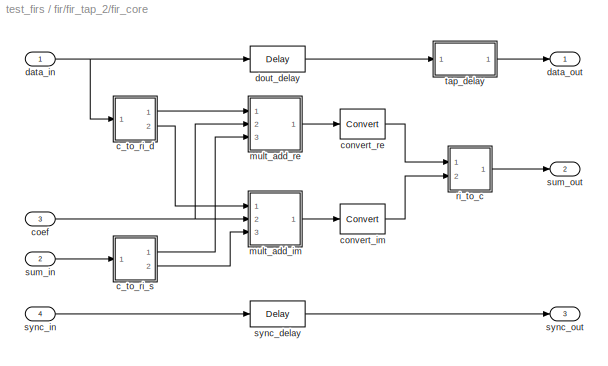
BLOCK [SubSystem] fir/fir_tap_2/fir_core
  AttributesFormatString = delay 64 in bram
  MaskCallbackString = ||||||||
  MaskEnableString = off,off,off,off,off,off,off,off,off
  MaskIconFrame = on
  MaskIconOpaque = on
  MaskIconRotate = none
  MaskIconUnits = autoscale
  MaskPromptString = Tap Delay|Number of Data Bits|Data Binary Point|Number of Sum Bits|Sum Binary Point|Use BRAM for Delay|Multiplier Latency|Adder Latency|Bypass Adder
  MaskSelfModifiable = on
  MaskStyleString = edit,edit,edit,edit,edit,checkbox,edit,edit,checkbox
  MaskTabNameString = ,,,,,,,,
  MaskToolTipString = on,on,on,on,on,on,on,on,on
  MaskTunableValueString = off,off,off,off,off,off,off,off,off
  MaskType = FIR Filter Core
  MaskValueString = 64|8|7|17|15|on|3|1|off
  MaskVarAliasString = ,,,,,,,,
  MaskVariables = delay=&1;n_bits_d=&2;bin_pt_d=&3;n_bits_s=&4;bin_pt_s=&5;use_bram=&6;mult_latency=&7;add_latency=&8;add_bypass=&9;
  MaskVisibilityString = on,on,on,on,on,on,on,on,on
  MinAlgLoopOccurrences = off
  Ports = [4, 3]
  RTWSystemCode = Auto
  TreatAsAtomicUnit = off
  UserData = DataTag20
  UserDataPersistent = on
BLOCK [SubSystem] fir/fir_tap_2/fir_core/c_to_ri_d
  AttributesFormatString = 8_7 r/i
  MaskCallbackString = |
  MaskDescription = Outputs real and imaginary components of a complex input.
  MaskEnableString = off,off
  MaskIconFrame = on
  MaskIconOpaque = on
  MaskIconRotate = none
  MaskIconUnits = autoscale
  MaskPromptString = Bit Width|Binary Point
  MaskSelfModifiable = on
  MaskStyleString = edit,edit
  MaskTabNameString = ,
  MaskToolTipString = on,on
  MaskTunableValueString = off,off
  MaskType = Complex to Real-Imag
  MaskValueString = 8|7
  MaskVarAliasString = ,
  MaskVariables = n_bits=&1;bin_pt=&2;
  MaskVisibilityString = on,on
  MinAlgLoopOccurrences = off
  Ports = [1, 2]
  RTWSystemCode = Auto
  TreatAsAtomicUnit = off
  UserData = DataTag21
  UserDataPersistent = on
BLOCK [Inport] fir/fir_tap_2/fir_core/c_to_ri_d/c
  IconDisplay = Port number
  LatchInput = off
  Port = 1
BLOCK [Reference] fir/fir_tap_2/fir_core/c_to_ri_d/force_im  REF=xbsIndex_r3/Reinterpret
  Ports = [1, 1]
  SourceBlock = xbsIndex_r3/Reinterpret
  SourceType = Xilinx Type Reinterpreting Block
  arith_type = Signed  (2's comp)
  bin_pt = 7
  force_arith_type = on
  force_bin_pt = on
  force_valid = on
BLOCK [Reference] fir/fir_tap_2/fir_core/c_to_ri_d/force_re  REF=xbsIndex_r3/Reinterpret
  Ports = [1, 1]
  SourceBlock = xbsIndex_r3/Reinterpret
  SourceType = Xilinx Type Reinterpreting Block
  arith_type = Signed  (2's comp)
  bin_pt = 7
  force_arith_type = on
  force_bin_pt = on
  force_valid = on
BLOCK [Outport] fir/fir_tap_2/fir_core/c_to_ri_d/im
  BusOutputAsStruct = off
  IconDisplay = Port number
  Port = 2
BLOCK [Outport] fir/fir_tap_2/fir_core/c_to_ri_d/re
  BusOutputAsStruct = off
  IconDisplay = Port number
BLOCK [Reference] fir/fir_tap_2/fir_core/c_to_ri_d/slice_im  REF=xbsIndex_r3/Slice
  Ports = [1, 1]
  SourceBlock = xbsIndex_r3/Slice
  SourceType = Xilinx Slice Block
  base0 = LSB of Input
  base1 = MSB of Input
  bit0 = 0
  bit1 = 0
  boolean_output = off
  dbl_ovrd = off
  explicit_period = off
  mode = Lower Bit Location + Width
  nbits = 8
  period = 1
BLOCK [Reference] fir/fir_tap_2/fir_core/c_to_ri_d/slice_re  REF=xbsIndex_r3/Slice
  Ports = [1, 1]
  SourceBlock = xbsIndex_r3/Slice
  SourceType = Xilinx Slice Block
  base0 = LSB of Input
  base1 = MSB of Input
  bit0 = 0
  bit1 = 0
  boolean_output = off
  dbl_ovrd = off
  explicit_period = off
  mode = Upper Bit Location + Width
  nbits = 8
  period = 1
BLOCK [SubSystem] fir/fir_tap_2/fir_core/c_to_ri_s
  AttributesFormatString = 17_15 r/i
  MaskCallbackString = |
  MaskDescription = Outputs real and imaginary components of a complex input.
  MaskEnableString = off,off
  MaskIconFrame = on
  MaskIconOpaque = on
  MaskIconRotate = none
  MaskIconUnits = autoscale
  MaskPromptString = Bit Width|Binary Point
  MaskSelfModifiable = on
  MaskStyleString = edit,edit
  MaskTabNameString = ,
  MaskToolTipString = on,on
  MaskTunableValueString = off,off
  MaskType = Complex to Real-Imag
  MaskValueString = 17|15
  MaskVarAliasString = ,
  MaskVariables = n_bits=&1;bin_pt=&2;
  MaskVisibilityString = on,on
  MinAlgLoopOccurrences = off
  Ports = [1, 2]
  RTWSystemCode = Auto
  TreatAsAtomicUnit = off
  UserData = DataTag22
  UserDataPersistent = on
BLOCK [Inport] fir/fir_tap_2/fir_core/c_to_ri_s/c
  IconDisplay = Port number
  LatchInput = off
  Port = 1
BLOCK [Reference] fir/fir_tap_2/fir_core/c_to_ri_s/force_im  REF=xbsIndex_r3/Reinterpret
  Ports = [1, 1]
  SourceBlock = xbsIndex_r3/Reinterpret
  SourceType = Xilinx Type Reinterpreting Block
  arith_type = Signed  (2's comp)
  bin_pt = 15
  force_arith_type = on
  force_bin_pt = on
  force_valid = on
BLOCK [Reference] fir/fir_tap_2/fir_core/c_to_ri_s/force_re  REF=xbsIndex_r3/Reinterpret
  Ports = [1, 1]
  SourceBlock = xbsIndex_r3/Reinterpret
  SourceType = Xilinx Type Reinterpreting Block
  arith_type = Signed  (2's comp)
  bin_pt = 15
  force_arith_type = on
  force_bin_pt = on
  force_valid = on
BLOCK [Outport] fir/fir_tap_2/fir_core/c_to_ri_s/im
  BusOutputAsStruct = off
  IconDisplay = Port number
  Port = 2
BLOCK [Outport] fir/fir_tap_2/fir_core/c_to_ri_s/re
  BusOutputAsStruct = off
  IconDisplay = Port number
BLOCK [Reference] fir/fir_tap_2/fir_core/c_to_ri_s/slice_im  REF=xbsIndex_r3/Slice
  Ports = [1, 1]
  SourceBlock = xbsIndex_r3/Slice
  SourceType = Xilinx Slice Block
  base0 = LSB of Input
  base1 = MSB of Input
  bit0 = 0
  bit1 = 0
  boolean_output = off
  dbl_ovrd = off
  explicit_period = off
  mode = Lower Bit Location + Width
  nbits = 17
  period = 1
BLOCK [Reference] fir/fir_tap_2/fir_core/c_to_ri_s/slice_re  REF=xbsIndex_r3/Slice
  Ports = [1, 1]
  SourceBlock = xbsIndex_r3/Slice
  SourceType = Xilinx Slice Block
  base0 = LSB of Input
  base1 = MSB of Input
  bit0 = 0
  bit1 = 0
  boolean_output = off
  dbl_ovrd = off
  explicit_period = off
  mode = Upper Bit Location + Width
  nbits = 17
  period = 1
BLOCK [Inport] fir/fir_tap_2/fir_core/coef
  IconDisplay = Port number
  LatchInput = off
  Port = 3
BLOCK [Reference] fir/fir_tap_2/fir_core/convert_im  REF=xbsIndex_r3/Convert
  Ports = [1, 1]
  SourceBlock = xbsIndex_r3/Convert
  SourceType = Xilinx Converter Block
  arith_type = Signed  (2's comp)
  bin_pt = 15
  dbl_ovrd = off
  explicit_period = off
  inserted_by_tool = off
  latency = 0
  n_bits = 17
  overflow = Wrap
  period = 1
  pipeline = on
  quantization = Truncate
  show_param = on
  xl_area = [0, 0, 0, 0, 0, 0, 0]
  xl_use_area = off
BLOCK [Reference] fir/fir_tap_2/fir_core/convert_re  REF=xbsIndex_r3/Convert
  Ports = [1, 1]
  SourceBlock = xbsIndex_r3/Convert
  SourceType = Xilinx Converter Block
  arith_type = Signed  (2's comp)
  bin_pt = 15
  dbl_ovrd = off
  explicit_period = off
  inserted_by_tool = off
  latency = 0
  n_bits = 17
  overflow = Wrap
  period = 1
  pipeline = on
  quantization = Truncate
  show_param = on
  xl_area = [0, 0, 0, 0, 0, 0, 0]
  xl_use_area = off
BLOCK [Inport] fir/fir_tap_2/fir_core/data_in
  IconDisplay = Port number
  LatchInput = off
  Port = 1
BLOCK [Outport] fir/fir_tap_2/fir_core/data_out
  BusOutputAsStruct = off
  IconDisplay = Port number
BLOCK [Reference] fir/fir_tap_2/fir_core/dout_delay  REF=xbsIndex_r3/Delay
  Ports = [1, 1]
  SourceBlock = xbsIndex_r3/Delay
  SourceType = Xilinx Delay Block
  accept_only_valid = off
  dbl_ovrd = off
  en = off
  explicit_period = off
  init_zero = on
  latency = 4
  period = 1
  reg_retiming = off
  show_param = off
  xl_area = [0, 0, 0, 0, 0, 0, 0]
  xl_use_area = off
BLOCK [SubSystem] fir/fir_tap_2/fir_core/mult_add_im
  AttributesFormatString = out = a*b+c\nlatency = 4
  MaskCallbackString = ||
  MaskDescription = A full precision multiply-add block.  Produces a*b+c at its ab_c output.  The add operation can be optionally bypassed.\n
  MaskEnableString = off,off,off
  MaskIconFrame = on
  MaskIconOpaque = on
  MaskIconRotate = none
  MaskIconUnits = autoscale
  MaskPromptString = Multiplier Latency|Adder Latency|Bypass Adder
  MaskSelfModifiable = on
  MaskStyleString = edit,edit,checkbox
  MaskTabNameString = ,,
  MaskToolTipString = on,on,on
  MaskTunableValueString = off,off,off
  MaskType = Multiply Add Block
  MaskValueString = 3|1|off
  MaskVarAliasString = ,,
  MaskVariables = mult_latency=&1;add_latency=&2;add_bypass=&3;
  MaskVisibilityString = on,on,on
  MinAlgLoopOccurrences = off
  Ports = [3, 1]
  RTWSystemCode = Auto
  TreatAsAtomicUnit = off
  UserData = DataTag23
  UserDataPersistent = on
BLOCK [Inport] fir/fir_tap_2/fir_core/mult_add_im/a
  IconDisplay = Port number
  LatchInput = off
  Port = 1
BLOCK [Reference] fir/fir_tap_2/fir_core/mult_add_im/add  REF=xbsIndex_r3/AddSub
  Ports = [2, 1]
  SourceBlock = xbsIndex_r3/AddSub
  SourceType = Xilinx Adder/Subtractor
  arith_type = Signed  (2's comp)
  bin_pt = 7
  dbl_ovrd = off
  en = off
  explicit_period = off
  gen_core = off
  latency = 1
  mode = Addition
  n_bits = 9
  overflow = Wrap
  period = 1
  pipeline = on
  precision = User Defined
  quantization = Truncate
  show_param = on
  use_carryin = off
  use_carryout = off
  use_core = on
  use_rpm = on
  xl_area = [0, 0, 0, 0, 0, 0, 0]
  xl_use_area = off
BLOCK [Inport] fir/fir_tap_2/fir_core/mult_add_im/b
  IconDisplay = Port number
  LatchInput = off
  Port = 2
BLOCK [Inport] fir/fir_tap_2/fir_core/mult_add_im/c
  IconDisplay = Port number
  LatchInput = off
  Port = 3
BLOCK [Reference] fir/fir_tap_2/fir_core/mult_add_im/delay  REF=xbsIndex_r3/Delay
  Ports = [1, 1]
  SourceBlock = xbsIndex_r3/Delay
  SourceType = Xilinx Delay Block
  accept_only_valid = off
  dbl_ovrd = off
  en = off
  explicit_period = off
  init_zero = on
  latency = 3
  period = 1
  reg_retiming = off
  show_param = off
  xl_area = [0, 0, 0, 0, 0, 0, 0]
  xl_use_area = off
BLOCK [Reference] fir/fir_tap_2/fir_core/mult_add_im/mult  REF=xbsIndex_r3/Mult
  Ports = [2, 1]
  SourceBlock = xbsIndex_r3/Mult
  SourceType = Xilinx Multiplier
  arith_type = Signed  (2's comp)
  bin_pt = 2
  dbl_ovrd = off
  en = off
  explicit_period = off
  gen_core = off
  latency = 3
  mult_type = Parallel
  n_bits = 8
  overflow = Wrap
  oversample = 2
  period = 1
  pipeline = on
  placement_style = Rectangular Shape
  precision = Full
  quantization = Truncate
  show_param = on
  use_embedded = on
  use_rpm = on
  xl_area = [0, 0, 0, 0, 0, 0, 0]
  xl_use_area = off
BLOCK [Outport] fir/fir_tap_2/fir_core/mult_add_im/out
  BusOutputAsStruct = off
  IconDisplay = Port number
BLOCK [SubSystem] fir/fir_tap_2/fir_core/mult_add_re
  AttributesFormatString = out = a*b+c\nlatency = 4
  MaskCallbackString = ||
  MaskDescription = A full precision multiply-add block.  Produces a*b+c at its ab_c output.  The add operation can be optionally bypassed.\n
  MaskEnableString = off,off,off
  MaskIconFrame = on
  MaskIconOpaque = on
  MaskIconRotate = none
  MaskIconUnits = autoscale
  MaskPromptString = Multiplier Latency|Adder Latency|Bypass Adder
  MaskSelfModifiable = on
  MaskStyleString = edit,edit,checkbox
  MaskTabNameString = ,,
  MaskToolTipString = on,on,on
  MaskTunableValueString = off,off,off
  MaskType = Multiply Add Block
  MaskValueString = 3|1|off
  MaskVarAliasString = ,,
  MaskVariables = mult_latency=&1;add_latency=&2;add_bypass=&3;
  MaskVisibilityString = on,on,on
  MinAlgLoopOccurrences = off
  Ports = [3, 1]
  RTWSystemCode = Auto
  TreatAsAtomicUnit = off
  UserData = DataTag24
  UserDataPersistent = on
BLOCK [Inport] fir/fir_tap_2/fir_core/mult_add_re/a
  IconDisplay = Port number
  LatchInput = off
  Port = 1
BLOCK [Reference] fir/fir_tap_2/fir_core/mult_add_re/add  REF=xbsIndex_r3/AddSub
  Ports = [2, 1]
  SourceBlock = xbsIndex_r3/AddSub
  SourceType = Xilinx Adder/Subtractor
  arith_type = Signed  (2's comp)
  bin_pt = 7
  dbl_ovrd = off
  en = off
  explicit_period = off
  gen_core = off
  latency = 1
  mode = Addition
  n_bits = 9
  overflow = Wrap
  period = 1
  pipeline = on
  precision = User Defined
  quantization = Truncate
  show_param = on
  use_carryin = off
  use_carryout = off
  use_core = on
  use_rpm = on
  xl_area = [0, 0, 0, 0, 0, 0, 0]
  xl_use_area = off
BLOCK [Inport] fir/fir_tap_2/fir_core/mult_add_re/b
  IconDisplay = Port number
  LatchInput = off
  Port = 2
BLOCK [Inport] fir/fir_tap_2/fir_core/mult_add_re/c
  IconDisplay = Port number
  LatchInput = off
  Port = 3
BLOCK [Reference] fir/fir_tap_2/fir_core/mult_add_re/delay  REF=xbsIndex_r3/Delay
  Ports = [1, 1]
  SourceBlock = xbsIndex_r3/Delay
  SourceType = Xilinx Delay Block
  accept_only_valid = off
  dbl_ovrd = off
  en = off
  explicit_period = off
  init_zero = on
  latency = 3
  period = 1
  reg_retiming = off
  show_param = off
  xl_area = [0, 0, 0, 0, 0, 0, 0]
  xl_use_area = off
BLOCK [Reference] fir/fir_tap_2/fir_core/mult_add_re/mult  REF=xbsIndex_r3/Mult
  Ports = [2, 1]
  SourceBlock = xbsIndex_r3/Mult
  SourceType = Xilinx Multiplier
  arith_type = Signed  (2's comp)
  bin_pt = 2
  dbl_ovrd = off
  en = off
  explicit_period = off
  gen_core = off
  latency = 3
  mult_type = Parallel
  n_bits = 8
  overflow = Wrap
  oversample = 2
  period = 1
  pipeline = on
  placement_style = Rectangular Shape
  precision = Full
  quantization = Truncate
  show_param = on
  use_embedded = on
  use_rpm = on
  xl_area = [0, 0, 0, 0, 0, 0, 0]
  xl_use_area = off
BLOCK [Outport] fir/fir_tap_2/fir_core/mult_add_re/out
  BusOutputAsStruct = off
  IconDisplay = Port number
BLOCK [SubSystem] fir/fir_tap_2/fir_core/ri_to_c
  MaskDescription = Concatenates real and imaginary inputs into a complex output.
  MaskIconFrame = on
  MaskIconOpaque = on
  MaskIconRotate = none
  MaskIconUnits = autoscale
  MaskInitialization = ri_to_c_init(gcb);
  MaskSelfModifiable = on
  MaskType = Real-Imag to Complex
  MinAlgLoopOccurrences = off
  Ports = [2, 1]
  RTWSystemCode = Auto
  TreatAsAtomicUnit = off
  UserData = DataTag25
  UserDataPersistent = on
BLOCK [Outport] fir/fir_tap_2/fir_core/ri_to_c/c
  BusOutputAsStruct = off
  IconDisplay = Port number
BLOCK [Reference] fir/fir_tap_2/fir_core/ri_to_c/concat  REF=xbsIndex_r3/Concat
  Ports = [2, 1]
  SourceBlock = xbsIndex_r3/Concat
  SourceType = Xilinx Bus Concatenator
  dbl_ovrd = off
  explicit_period = off
  num_inputs = 2
  period = 1
BLOCK [Reference] fir/fir_tap_2/fir_core/ri_to_c/force_im  REF=xbsIndex_r3/Reinterpret
  Ports = [1, 1]
  SourceBlock = xbsIndex_r3/Reinterpret
  SourceType = Xilinx Type Reinterpreting Block
  arith_type = Unsigned
  bin_pt = 0
  force_arith_type = on
  force_bin_pt = on
  force_valid = on
BLOCK [Reference] fir/fir_tap_2/fir_core/ri_to_c/force_re  REF=xbsIndex_r3/Reinterpret
  Ports = [1, 1]
  SourceBlock = xbsIndex_r3/Reinterpret
  SourceType = Xilinx Type Reinterpreting Block
  arith_type = Unsigned
  bin_pt = 0
  force_arith_type = on
  force_bin_pt = on
  force_valid = on
BLOCK [Inport] fir/fir_tap_2/fir_core/ri_to_c/im
  IconDisplay = Port number
  LatchInput = off
  Port = 2
BLOCK [Inport] fir/fir_tap_2/fir_core/ri_to_c/re
  IconDisplay = Port number
  LatchInput = off
  Port = 1
BLOCK [Inport] fir/fir_tap_2/fir_core/sum_in
  IconDisplay = Port number
  LatchInput = off
  Port = 2
BLOCK [Outport] fir/fir_tap_2/fir_core/sum_out
  BusOutputAsStruct = off
  IconDisplay = Port number
  Port = 2
BLOCK [Reference] fir/fir_tap_2/fir_core/sync_delay  REF=xbsIndex_r3/Delay
  Ports = [1, 1]
  SourceBlock = xbsIndex_r3/Delay
  SourceType = Xilinx Delay Block
  accept_only_valid = off
  dbl_ovrd = off
  en = off
  explicit_period = off
  init_zero = on
  latency = 4
  period = 1
  reg_retiming = off
  show_param = off
  xl_area = [0, 0, 0, 0, 0, 0, 0]
  xl_use_area = off
BLOCK [Inport] fir/fir_tap_2/fir_core/sync_in
  IconDisplay = Port number
  LatchInput = off
  Port = 4
BLOCK [Outport] fir/fir_tap_2/fir_core/sync_out
  BusOutputAsStruct = off
  IconDisplay = Port number
  Port = 3
BLOCK [SubSystem] fir/fir_tap_2/fir_core/tap_delay
  AttributesFormatString = bram depth = 64
  MaskCallbackString = |
  MaskDescription = A delay block that uses BRAM for its storage.
  MaskEnableString = off,off
  MaskIconFrame = on
  MaskIconOpaque = on
  MaskIconRotate = none
  MaskIconUnits = autoscale
  MaskPromptString = Delay Depth|Buffer Latency
  MaskSelfModifiable = on
  MaskStyleString = edit,edit
  MaskTabNameString = ,
  MaskToolTipString = on,on
  MaskTunableValueString = off,off
  MaskType = BRAM Delay
  MaskValueString = 64|
  MaskVarAliasString = ,
  MaskVariables = delay_depth=&1;buffer_latency=&2;
  MaskVisibilityString = on,off
  MinAlgLoopOccurrences = off
  Ports = [1, 1]
  RTWSystemCode = Auto
  TreatAsAtomicUnit = off
  UserData = DataTag26
  UserDataPersistent = on
BLOCK [Reference] fir/fir_tap_2/fir_core/tap_delay/Constant  REF=xbsIndex_r3/Constant
  Ports = [0, 1]
  SourceBlock = xbsIndex_r3/Constant
  SourceType = Xilinx Constant Block
  arith_type = Boolean
  bin_pt = 0
  carry = CIN
  const = 1
  dbl_ovrd = off
  equ = P=C
  explicit_period = on
  inp1 = P
  inp2 = PCIN>>17
  iostate = 0
  n_bits = 1
  opr = +
  opselect = C
  period = 1
BLOCK [Reference] fir/fir_tap_2/fir_core/tap_delay/Counter  REF=xbsIndex_r3/Counter
  Ports = [0, 1]
  SourceBlock = xbsIndex_r3/Counter
  SourceType = Xilinx Counter Block
  arith_type = Unsigned
  bin_pt = 0
  cnt_by_val = 1
  cnt_to = 62
  cnt_type = Count Limited
  dbl_ovrd = off
  en = off
  explicit_period = off
  gen_core = off
  load_pin = off
  n_bits = 6
  operation = Up
  period = 1
  rst = off
  show_param = off
  start_count = 0
  use_rpm = on
  xl_area = [0, 0, 0, 0, 0, 0, 0]
  xl_use_area = off
BLOCK [Reference] fir/fir_tap_2/fir_core/tap_delay/bram  REF=xbsIndex_r3/Single Port RAM
  Ports = [3, 1]
  SourceBlock = xbsIndex_r3/Single Port RAM
  SourceType = Xilinx Single Port Random Access Memory
  dbl_ovrd = off
  depth = 64
  distributed_mem = off
  en = off
  explicit_period = off
  gen_core = off
  initVector = 0
  init_reg = 0
  init_zero = on
  latency = 1
  period = 1
  rst = off
  show_param = off
  use_rpm = off
  write_mode = Read Before Write
  xl_area = [0, 0, 0, 0, 0, 0, 0]
  xl_use_area = off
BLOCK [Inport] fir/fir_tap_2/fir_core/tap_delay/in
  IconDisplay = Port number
  LatchInput = off
  Port = 1
BLOCK [Outport] fir/fir_tap_2/fir_core/tap_delay/out
  BusOutputAsStruct = off
  IconDisplay = Port number
BLOCK [Inport] fir/fir_tap_2/sum_in
  IconDisplay = Port number
  LatchInput = off
  Port = 2
BLOCK [Outport] fir/fir_tap_2/sum_out
  BusOutputAsStruct = off
  IconDisplay = Port number
  Port = 2
BLOCK [Inport] fir/fir_tap_2/sync_in
  IconDisplay = Port number
  LatchInput = off
  Port = 3
BLOCK [Outport] fir/fir_tap_2/sync_out
  BusOutputAsStruct = off
  IconDisplay = Port number
  Port = 3
BLOCK [SubSystem] fir/fir_tap_3
  AttributesFormatString = delay 64 in bram\n64 coefs in bram
  MaskCallbackString = ||||||||||||
  MaskEnableString = off,off,off,off,off,off,off,off,off,off,off,off,off
  MaskIconFrame = on
  MaskIconOpaque = on
  MaskIconRotate = none
  MaskIconUnits = autoscale
  MaskSelfModifiable = on
  MaskStyleString = edit,edit,edit,edit,edit,edit,edit,edit,checkbox,checkbox,edit,edit,checkbox
  MaskTabNameString = ,,,,,,,,,,,,
  MaskToolTipString = on,on,on,on,on,on,on,on,on,on,on,on,on
  MaskTunableValueString = off,off,off,off,off,off,off,off,off,off,off,off,off
  MaskType = FIR Filter Tap (Real Coefficients)
  MaskValueString = 64|[0.00427385100197821;0.0132879629868503;0.0229297148621999;0.033204526721812;0.0441160545744412;0.0556661296856254;0.0678547037727424;0.0806798003683017;0.0941374726436389;0.108221767960864;0.122924699395207;0.138236224442934;0.154144231101832;0.170634531482069;0.187690863075115;0.205294897777456;0.22342625873426;0.242062545036048;0.261179364268877;0.280750372885839;0.300747324334799;0.32114012...<+788ch>
  MaskVarAliasString = ,,,,,,,,,,,,
  MaskVariables = delay=&1;coef=&2;n_bits_c=&3;bin_pt_c=&4;n_bits_d=&5;bin_pt_d=&6;n_bits_s=&7;bin_pt_s=&8;coef_bram=&9;delay_bram=&10;mult_latency=&11;add_latency=&12;add_bypass=&13;
  MaskVisibilityString = on,on,on,on,on,on,on,on,on,on,on,on,on
  MinAlgLoopOccurrences = off
  Ports = [3, 3]
  RTWSystemCode = Auto
  TreatAsAtomicUnit = off
  UserData = DataTag27
  UserDataPersistent = on
BLOCK [Inport] fir/fir_tap_3/data_in
  IconDisplay = Port number
  LatchInput = off
  Port = 1
BLOCK [Outport] fir/fir_tap_3/data_out
  BusOutputAsStruct = off
  IconDisplay = Port number
BLOCK [SubSystem] fir/fir_tap_3/fir_coef
  AttributesFormatString = 64 coefs in bram
  MaskCallbackString = |||
  MaskEnableString = off,off,off,off
  MaskIconFrame = on
  MaskIconOpaque = on
  MaskIconRotate = none
  MaskIconUnits = autoscale
  MaskPromptString = Tap Coefficient(s)|Number of Coefficient Bits|Coefficient Binary Point|Use BRAM for Coefficients
  MaskSelfModifiable = on
  MaskStyleString = edit,edit,edit,checkbox
  MaskTabNameString = ,,,
  MaskToolTipString = on,on,on,on
  MaskTunableValueString = off,off,off,off
  MaskType = FIR Filter Coefficient Generator
  MaskValueString = [0.00427385100197821;0.0132879629868503;0.0229297148621999;0.033204526721812;0.0441160545744412;0.0556661296856254;0.0678547037727424;0.0806798003683017;0.0941374726436389;0.108221767960864;0.122924699395207;0.138236224442934;0.154144231101832;0.170634531482069;0.187690863075115;0.205294897777456;0.22342625873426;0.242062545036048;0.261179364268877;0.280750372885839;0.300747324334799;0.32114012484...<+764ch>
  MaskVarAliasString = ,,,
  MaskVariables = coef=&1;n_bits_c=&2;bin_pt_c=&3;use_bram=&4;
  MaskVisibilityString = on,on,on,on
  MinAlgLoopOccurrences = off
  Ports = [3, 4]
  RTWSystemCode = Auto
  TreatAsAtomicUnit = off
  UserData = DataTag28
  UserDataPersistent = on
BLOCK [SubSystem] fir/fir_tap_3/fir_coef/c_gen
  AttributesFormatString = 64 coefs in bram\n9_8 out/1
  MaskCallbackString = ||||
  MaskDescription = A coefficient generator.
  MaskEnableString = off,off,off,off,off
  MaskIconFrame = on
  MaskIconOpaque = on
  MaskIconRotate = none
  MaskIconUnits = autoscale
  MaskPromptString = Coefficients|Number of Bits|Binary Point|Log2 Cycles per Coefficient|Use BRAM
  MaskSelfModifiable = on
  MaskStyleString = edit,edit,edit,edit,checkbox
  MaskTabNameString = ,,,,
  MaskToolTipString = on,on,on,on,on
  MaskTunableValueString = off,off,off,off,off
  MaskType = Coefficient Generator
  MaskValueString = [0.00427385100197821;0.0132879629868503;0.0229297148621999;0.033204526721812;0.0441160545744412;0.0556661296856254;0.0678547037727424;0.0806798003683017;0.0941374726436389;0.108221767960864;0.122924699395207;0.138236224442934;0.154144231101832;0.170634531482069;0.187690863075115;0.205294897777456;0.22342625873426;0.242062545036048;0.261179364268877;0.280750372885839;0.300747324334799;0.32114012484...<+766ch>
  MaskVarAliasString = ,,,,
  MaskVariables = coefs=&1;n_bits=&2;bin_pt=&3;log2_cpc=&4;use_bram=&5;
  MaskVisibilityString = on,on,on,on,on
  MinAlgLoopOccurrences = off
  Ports = [1, 1]
  RTWSystemCode = Auto
  TreatAsAtomicUnit = off
  UserData = DataTag29
  UserDataPersistent = on
BLOCK [Reference] fir/fir_tap_3/fir_coef/c_gen/Counter  REF=xbsIndex_r3/Counter
  Ports = [1, 1]
  SourceBlock = xbsIndex_r3/Counter
  SourceType = Xilinx Counter Block
  arith_type = Unsigned
  bin_pt = 0
  cnt_by_val = 1
  cnt_to = 63
  cnt_type = Count Limited
  dbl_ovrd = off
  en = off
  explicit_period = off
  gen_core = off
  load_pin = off
  n_bits = 6
  operation = Up
  period = 1
  rst = on
  show_param = on
  start_count = 0
  use_rpm = on
  xl_area = [0, 0, 0, 0, 0, 0, 0]
  xl_use_area = off
BLOCK [Reference] fir/fir_tap_3/fir_coef/c_gen/addr_sel  REF=xbsIndex_r3/Slice
  Ports = [1, 1]
  SourceBlock = xbsIndex_r3/Slice
  SourceType = Xilinx Slice Block
  base0 = MSB of Input
  base1 = MSB of Input
  bit0 = -1
  bit1 = 0
  boolean_output = off
  dbl_ovrd = off
  explicit_period = off
  mode = Upper Bit Location + Width
  nbits = 6
  period = 1
BLOCK [Outport] fir/fir_tap_3/fir_coef/c_gen/coef_out
  BusOutputAsStruct = off
  IconDisplay = Port number
BLOCK [Reference] fir/fir_tap_3/fir_coef/c_gen/mem  REF=xbsIndex_r3/ROM
  AttributesFormatString = depth = %<depth>\\ndist_mem = %<distributed_mem>
  Ports = [1, 1]
  SourceBlock = xbsIndex_r3/ROM
  SourceType = Xilinx Single Port Read-Only Memory
  arith_type = Signed  (2's comp)
  bin_pt = 8
  dbl_ovrd = off
  depth = 64
  distributed_mem = off
  en = off
  explicit_period = off
  gen_core = off
  initVector = [0.00390625;0.01171875;0.0234375;0.03515625;0.04296875;0.0546875;0.06640625;0.08203125;0.09375;0.109375;0.12109375;0.13671875;0.15234375;0.171875;0.1875;0.20703125;0.22265625;0.2421875;0.26171875;0.28125;0.30078125;0.3203125;0.34375;0.36328125;0.3828125;0.40625;0.4296875;0.44921875;0.47265625;0.49609375;0.515625;0.5390625;0.5625;0.58203125;0.60546875;0.62890625;0.6484375;0.671875;0.69140625;0.7109...<+237ch>
  init_reg = 0
  init_zero = on
  latency = 1
  n_bits = 9
  period = 1
  rst = off
  show_param = on
  use_rpm = on
  xl_area = [0, 0, 0, 0, 0, 0, 0]
  xl_use_area = off
BLOCK [Inport] fir/fir_tap_3/fir_coef/c_gen/sync_in
  IconDisplay = Port number
  LatchInput = off
  Port = 1
BLOCK [Outport] fir/fir_tap_3/fir_coef/coef
  BusOutputAsStruct = off
  IconDisplay = Port number
  Port = 3
BLOCK [Reference] fir/fir_tap_3/fir_coef/data_delay  REF=xbsIndex_r3/Delay
  Ports = [1, 1]
  SourceBlock = xbsIndex_r3/Delay
  SourceType = Xilinx Delay Block
  accept_only_valid = off
  dbl_ovrd = off
  en = off
  explicit_period = off
  init_zero = on
  latency = 1
  period = 1
  reg_retiming = off
  show_param = on
  xl_area = [0, 0, 0, 0, 0, 0, 0]
  xl_use_area = off
BLOCK [Inport] fir/fir_tap_3/fir_coef/data_in
  IconDisplay = Port number
  LatchInput = off
  Port = 1
BLOCK [Outport] fir/fir_tap_3/fir_coef/data_out
  BusOutputAsStruct = off
  IconDisplay = Port number
BLOCK [Reference] fir/fir_tap_3/fir_coef/sum_delay  REF=xbsIndex_r3/Delay
  Ports = [1, 1]
  SourceBlock = xbsIndex_r3/Delay
  SourceType = Xilinx Delay Block
  accept_only_valid = off
  dbl_ovrd = off
  en = off
  explicit_period = off
  init_zero = on
  latency = 1
  period = 1
  reg_retiming = off
  show_param = on
  xl_area = [0, 0, 0, 0, 0, 0, 0]
  xl_use_area = off
BLOCK [Inport] fir/fir_tap_3/fir_coef/sum_in
  IconDisplay = Port number
  LatchInput = off
  Port = 2
BLOCK [Outport] fir/fir_tap_3/fir_coef/sum_out
  BusOutputAsStruct = off
  IconDisplay = Port number
  Port = 2
BLOCK [Reference] fir/fir_tap_3/fir_coef/sync_delay  REF=xbsIndex_r3/Delay
  Ports = [1, 1]
  SourceBlock = xbsIndex_r3/Delay
  SourceType = Xilinx Delay Block
  accept_only_valid = off
  dbl_ovrd = off
  en = off
  explicit_period = off
  init_zero = on
  latency = 1
  period = 1
  reg_retiming = off
  show_param = off
  xl_area = [0, 0, 0, 0, 0, 0, 0]
  xl_use_area = off
BLOCK [Inport] fir/fir_tap_3/fir_coef/sync_in
  IconDisplay = Port number
  LatchInput = off
  Port = 3
BLOCK [Outport] fir/fir_tap_3/fir_coef/sync_out
  BusOutputAsStruct = off
  IconDisplay = Port number
  Port = 4
BLOCK [SubSystem] fir/fir_tap_3/fir_core
  AttributesFormatString = delay 64 in bram
  MaskCallbackString = ||||||||
  MaskEnableString = off,off,off,off,off,off,off,off,off
  MaskIconFrame = on
  MaskIconOpaque = on
  MaskIconRotate = none
  MaskIconUnits = autoscale
  MaskPromptString = Tap Delay|Number of Data Bits|Data Binary Point|Number of Sum Bits|Sum Binary Point|Use BRAM for Delay|Multiplier Latency|Adder Latency|Bypass Adder
  MaskSelfModifiable = on
  MaskStyleString = edit,edit,edit,edit,edit,checkbox,edit,edit,checkbox
  MaskTabNameString = ,,,,,,,,
  MaskToolTipString = on,on,on,on,on,on,on,on,on
  MaskTunableValueString = off,off,off,off,off,off,off,off,off
  MaskType = FIR Filter Core
  MaskValueString = 64|8|7|17|15|on|3|1|off
  MaskVarAliasString = ,,,,,,,,
  MaskVariables = delay=&1;n_bits_d=&2;bin_pt_d=&3;n_bits_s=&4;bin_pt_s=&5;use_bram=&6;mult_latency=&7;add_latency=&8;add_bypass=&9;
  MaskVisibilityString = on,on,on,on,on,on,on,on,on
  MinAlgLoopOccurrences = off
  Ports = [4, 3]
  RTWSystemCode = Auto
  TreatAsAtomicUnit = off
  UserData = DataTag30
  UserDataPersistent = on
BLOCK [SubSystem] fir/fir_tap_3/fir_core/c_to_ri_d
  AttributesFormatString = 8_7 r/i
  MaskCallbackString = |
  MaskDescription = Outputs real and imaginary components of a complex input.
  MaskEnableString = off,off
  MaskIconFrame = on
  MaskIconOpaque = on
  MaskIconRotate = none
  MaskIconUnits = autoscale
  MaskPromptString = Bit Width|Binary Point
  MaskSelfModifiable = on
  MaskStyleString = edit,edit
  MaskTabNameString = ,
  MaskToolTipString = on,on
  MaskTunableValueString = off,off
  MaskType = Complex to Real-Imag
  MaskValueString = 8|7
  MaskVarAliasString = ,
  MaskVariables = n_bits=&1;bin_pt=&2;
  MaskVisibilityString = on,on
  MinAlgLoopOccurrences = off
  Ports = [1, 2]
  RTWSystemCode = Auto
  TreatAsAtomicUnit = off
  UserData = DataTag31
  UserDataPersistent = on
BLOCK [Inport] fir/fir_tap_3/fir_core/c_to_ri_d/c
  IconDisplay = Port number
  LatchInput = off
  Port = 1
BLOCK [Reference] fir/fir_tap_3/fir_core/c_to_ri_d/force_im  REF=xbsIndex_r3/Reinterpret
  Ports = [1, 1]
  SourceBlock = xbsIndex_r3/Reinterpret
  SourceType = Xilinx Type Reinterpreting Block
  arith_type = Signed  (2's comp)
  bin_pt = 7
  force_arith_type = on
  force_bin_pt = on
  force_valid = on
BLOCK [Reference] fir/fir_tap_3/fir_core/c_to_ri_d/force_re  REF=xbsIndex_r3/Reinterpret
  Ports = [1, 1]
  SourceBlock = xbsIndex_r3/Reinterpret
  SourceType = Xilinx Type Reinterpreting Block
  arith_type = Signed  (2's comp)
  bin_pt = 7
  force_arith_type = on
  force_bin_pt = on
  force_valid = on
BLOCK [Outport] fir/fir_tap_3/fir_core/c_to_ri_d/im
  BusOutputAsStruct = off
  IconDisplay = Port number
  Port = 2
BLOCK [Outport] fir/fir_tap_3/fir_core/c_to_ri_d/re
  BusOutputAsStruct = off
  IconDisplay = Port number
BLOCK [Reference] fir/fir_tap_3/fir_core/c_to_ri_d/slice_im  REF=xbsIndex_r3/Slice
  Ports = [1, 1]
  SourceBlock = xbsIndex_r3/Slice
  SourceType = Xilinx Slice Block
  base0 = LSB of Input
  base1 = MSB of Input
  bit0 = 0
  bit1 = 0
  boolean_output = off
  dbl_ovrd = off
  explicit_period = off
  mode = Lower Bit Location + Width
  nbits = 8
  period = 1
BLOCK [Reference] fir/fir_tap_3/fir_core/c_to_ri_d/slice_re  REF=xbsIndex_r3/Slice
  Ports = [1, 1]
  SourceBlock = xbsIndex_r3/Slice
  SourceType = Xilinx Slice Block
  base0 = LSB of Input
  base1 = MSB of Input
  bit0 = 0
  bit1 = 0
  boolean_output = off
  dbl_ovrd = off
  explicit_period = off
  mode = Upper Bit Location + Width
  nbits = 8
  period = 1
BLOCK [SubSystem] fir/fir_tap_3/fir_core/c_to_ri_s
  AttributesFormatString = 17_15 r/i
  MaskCallbackString = |
  MaskDescription = Outputs real and imaginary components of a complex input.
  MaskEnableString = off,off
  MaskIconFrame = on
  MaskIconOpaque = on
  MaskIconRotate = none
  MaskIconUnits = autoscale
  MaskPromptString = Bit Width|Binary Point
  MaskSelfModifiable = on
  MaskStyleString = edit,edit
  MaskTabNameString = ,
  MaskToolTipString = on,on
  MaskTunableValueString = off,off
  MaskType = Complex to Real-Imag
  MaskValueString = 17|15
  MaskVarAliasString = ,
  MaskVariables = n_bits=&1;bin_pt=&2;
  MaskVisibilityString = on,on
  MinAlgLoopOccurrences = off
  Ports = [1, 2]
  RTWSystemCode = Auto
  TreatAsAtomicUnit = off
  UserData = DataTag32
  UserDataPersistent = on
BLOCK [Inport] fir/fir_tap_3/fir_core/c_to_ri_s/c
  IconDisplay = Port number
  LatchInput = off
  Port = 1
BLOCK [Reference] fir/fir_tap_3/fir_core/c_to_ri_s/force_im  REF=xbsIndex_r3/Reinterpret
  Ports = [1, 1]
  SourceBlock = xbsIndex_r3/Reinterpret
  SourceType = Xilinx Type Reinterpreting Block
  arith_type = Signed  (2's comp)
  bin_pt = 15
  force_arith_type = on
  force_bin_pt = on
  force_valid = on
BLOCK [Reference] fir/fir_tap_3/fir_core/c_to_ri_s/force_re  REF=xbsIndex_r3/Reinterpret
  Ports = [1, 1]
  SourceBlock = xbsIndex_r3/Reinterpret
  SourceType = Xilinx Type Reinterpreting Block
  arith_type = Signed  (2's comp)
  bin_pt = 15
  force_arith_type = on
  force_bin_pt = on
  force_valid = on
BLOCK [Outport] fir/fir_tap_3/fir_core/c_to_ri_s/im
  BusOutputAsStruct = off
  IconDisplay = Port number
  Port = 2
BLOCK [Outport] fir/fir_tap_3/fir_core/c_to_ri_s/re
  BusOutputAsStruct = off
  IconDisplay = Port number
BLOCK [Reference] fir/fir_tap_3/fir_core/c_to_ri_s/slice_im  REF=xbsIndex_r3/Slice
  Ports = [1, 1]
  SourceBlock = xbsIndex_r3/Slice
  SourceType = Xilinx Slice Block
  base0 = LSB of Input
  base1 = MSB of Input
  bit0 = 0
  bit1 = 0
  boolean_output = off
  dbl_ovrd = off
  explicit_period = off
  mode = Lower Bit Location + Width
  nbits = 17
  period = 1
BLOCK [Reference] fir/fir_tap_3/fir_core/c_to_ri_s/slice_re  REF=xbsIndex_r3/Slice
  Ports = [1, 1]
  SourceBlock = xbsIndex_r3/Slice
  SourceType = Xilinx Slice Block
  base0 = LSB of Input
  base1 = MSB of Input
  bit0 = 0
  bit1 = 0
  boolean_output = off
  dbl_ovrd = off
  explicit_period = off
  mode = Upper Bit Location + Width
  nbits = 17
  period = 1
BLOCK [Inport] fir/fir_tap_3/fir_core/coef
  IconDisplay = Port number
  LatchInput = off
  Port = 3
BLOCK [Reference] fir/fir_tap_3/fir_core/convert_im  REF=xbsIndex_r3/Convert
  Ports = [1, 1]
  SourceBlock = xbsIndex_r3/Convert
  SourceType = Xilinx Converter Block
  arith_type = Signed  (2's comp)
  bin_pt = 15
  dbl_ovrd = off
  explicit_period = off
  inserted_by_tool = off
  latency = 0
  n_bits = 17
  overflow = Wrap
  period = 1
  pipeline = on
  quantization = Truncate
  show_param = on
  xl_area = [0, 0, 0, 0, 0, 0, 0]
  xl_use_area = off
BLOCK [Reference] fir/fir_tap_3/fir_core/convert_re  REF=xbsIndex_r3/Convert
  Ports = [1, 1]
  SourceBlock = xbsIndex_r3/Convert
  SourceType = Xilinx Converter Block
  arith_type = Signed  (2's comp)
  bin_pt = 15
  dbl_ovrd = off
  explicit_period = off
  inserted_by_tool = off
  latency = 0
  n_bits = 17
  overflow = Wrap
  period = 1
  pipeline = on
  quantization = Truncate
  show_param = on
  xl_area = [0, 0, 0, 0, 0, 0, 0]
  xl_use_area = off
BLOCK [Inport] fir/fir_tap_3/fir_core/data_in
  IconDisplay = Port number
  LatchInput = off
  Port = 1
BLOCK [Outport] fir/fir_tap_3/fir_core/data_out
  BusOutputAsStruct = off
  IconDisplay = Port number
BLOCK [Reference] fir/fir_tap_3/fir_core/dout_delay  REF=xbsIndex_r3/Delay
  Ports = [1, 1]
  SourceBlock = xbsIndex_r3/Delay
  SourceType = Xilinx Delay Block
  accept_only_valid = off
  dbl_ovrd = off
  en = off
  explicit_period = off
  init_zero = on
  latency = 4
  period = 1
  reg_retiming = off
  show_param = off
  xl_area = [0, 0, 0, 0, 0, 0, 0]
  xl_use_area = off
BLOCK [SubSystem] fir/fir_tap_3/fir_core/mult_add_im
  AttributesFormatString = out = a*b+c\nlatency = 4
  MaskCallbackString = ||
  MaskDescription = A full precision multiply-add block.  Produces a*b+c at its ab_c output.  The add operation can be optionally bypassed.\n
  MaskEnableString = off,off,off
  MaskIconFrame = on
  MaskIconOpaque = on
  MaskIconRotate = none
  MaskIconUnits = autoscale
  MaskPromptString = Multiplier Latency|Adder Latency|Bypass Adder
  MaskSelfModifiable = on
  MaskStyleString = edit,edit,checkbox
  MaskTabNameString = ,,
  MaskToolTipString = on,on,on
  MaskTunableValueString = off,off,off
  MaskType = Multiply Add Block
  MaskValueString = 3|1|off
  MaskVarAliasString = ,,
  MaskVariables = mult_latency=&1;add_latency=&2;add_bypass=&3;
  MaskVisibilityString = on,on,on
  MinAlgLoopOccurrences = off
  Ports = [3, 1]
  RTWSystemCode = Auto
  TreatAsAtomicUnit = off
  UserData = DataTag33
  UserDataPersistent = on
BLOCK [Inport] fir/fir_tap_3/fir_core/mult_add_im/a
  IconDisplay = Port number
  LatchInput = off
  Port = 1
BLOCK [Reference] fir/fir_tap_3/fir_core/mult_add_im/add  REF=xbsIndex_r3/AddSub
  Ports = [2, 1]
  SourceBlock = xbsIndex_r3/AddSub
  SourceType = Xilinx Adder/Subtractor
  arith_type = Signed  (2's comp)
  bin_pt = 7
  dbl_ovrd = off
  en = off
  explicit_period = off
  gen_core = off
  latency = 1
  mode = Addition
  n_bits = 9
  overflow = Wrap
  period = 1
  pipeline = on
  precision = User Defined
  quantization = Truncate
  show_param = on
  use_carryin = off
  use_carryout = off
  use_core = on
  use_rpm = on
  xl_area = [0, 0, 0, 0, 0, 0, 0]
  xl_use_area = off
BLOCK [Inport] fir/fir_tap_3/fir_core/mult_add_im/b
  IconDisplay = Port number
  LatchInput = off
  Port = 2
BLOCK [Inport] fir/fir_tap_3/fir_core/mult_add_im/c
  IconDisplay = Port number
  LatchInput = off
  Port = 3
BLOCK [Reference] fir/fir_tap_3/fir_core/mult_add_im/delay  REF=xbsIndex_r3/Delay
  Ports = [1, 1]
  SourceBlock = xbsIndex_r3/Delay
  SourceType = Xilinx Delay Block
  accept_only_valid = off
  dbl_ovrd = off
  en = off
  explicit_period = off
  init_zero = on
  latency = 3
  period = 1
  reg_retiming = off
  show_param = off
  xl_area = [0, 0, 0, 0, 0, 0, 0]
  xl_use_area = off
BLOCK [Reference] fir/fir_tap_3/fir_core/mult_add_im/mult  REF=xbsIndex_r3/Mult
  Ports = [2, 1]
  SourceBlock = xbsIndex_r3/Mult
  SourceType = Xilinx Multiplier
  arith_type = Signed  (2's comp)
  bin_pt = 2
  dbl_ovrd = off
  en = off
  explicit_period = off
  gen_core = off
  latency = 3
  mult_type = Parallel
  n_bits = 8
  overflow = Wrap
  oversample = 2
  period = 1
  pipeline = on
  placement_style = Rectangular Shape
  precision = Full
  quantization = Truncate
  show_param = on
  use_embedded = on
  use_rpm = on
  xl_area = [0, 0, 0, 0, 0, 0, 0]
  xl_use_area = off
BLOCK [Outport] fir/fir_tap_3/fir_core/mult_add_im/out
  BusOutputAsStruct = off
  IconDisplay = Port number
BLOCK [SubSystem] fir/fir_tap_3/fir_core/mult_add_re
  AttributesFormatString = out = a*b+c\nlatency = 4
  MaskCallbackString = ||
  MaskDescription = A full precision multiply-add block.  Produces a*b+c at its ab_c output.  The add operation can be optionally bypassed.\n
  MaskEnableString = off,off,off
  MaskIconFrame = on
  MaskIconOpaque = on
  MaskIconRotate = none
  MaskIconUnits = autoscale
  MaskPromptString = Multiplier Latency|Adder Latency|Bypass Adder
  MaskSelfModifiable = on
  MaskStyleString = edit,edit,checkbox
  MaskTabNameString = ,,
  MaskToolTipString = on,on,on
  MaskTunableValueString = off,off,off
  MaskType = Multiply Add Block
  MaskValueString = 3|1|off
  MaskVarAliasString = ,,
  MaskVariables = mult_latency=&1;add_latency=&2;add_bypass=&3;
  MaskVisibilityString = on,on,on
  MinAlgLoopOccurrences = off
  Ports = [3, 1]
  RTWSystemCode = Auto
  TreatAsAtomicUnit = off
  UserData = DataTag34
  UserDataPersistent = on
BLOCK [Inport] fir/fir_tap_3/fir_core/mult_add_re/a
  IconDisplay = Port number
  LatchInput = off
  Port = 1
BLOCK [Reference] fir/fir_tap_3/fir_core/mult_add_re/add  REF=xbsIndex_r3/AddSub
  Ports = [2, 1]
  SourceBlock = xbsIndex_r3/AddSub
  SourceType = Xilinx Adder/Subtractor
  arith_type = Signed  (2's comp)
  bin_pt = 7
  dbl_ovrd = off
  en = off
  explicit_period = off
  gen_core = off
  latency = 1
  mode = Addition
  n_bits = 9
  overflow = Wrap
  period = 1
  pipeline = on
  precision = User Defined
  quantization = Truncate
  show_param = on
  use_carryin = off
  use_carryout = off
  use_core = on
  use_rpm = on
  xl_area = [0, 0, 0, 0, 0, 0, 0]
  xl_use_area = off
BLOCK [Inport] fir/fir_tap_3/fir_core/mult_add_re/b
  IconDisplay = Port number
  LatchInput = off
  Port = 2
BLOCK [Inport] fir/fir_tap_3/fir_core/mult_add_re/c
  IconDisplay = Port number
  LatchInput = off
  Port = 3
BLOCK [Reference] fir/fir_tap_3/fir_core/mult_add_re/delay  REF=xbsIndex_r3/Delay
  Ports = [1, 1]
  SourceBlock = xbsIndex_r3/Delay
  SourceType = Xilinx Delay Block
  accept_only_valid = off
  dbl_ovrd = off
  en = off
  explicit_period = off
  init_zero = on
  latency = 3
  period = 1
  reg_retiming = off
  show_param = off
  xl_area = [0, 0, 0, 0, 0, 0, 0]
  xl_use_area = off
BLOCK [Reference] fir/fir_tap_3/fir_core/mult_add_re/mult  REF=xbsIndex_r3/Mult
  Ports = [2, 1]
  SourceBlock = xbsIndex_r3/Mult
  SourceType = Xilinx Multiplier
  arith_type = Signed  (2's comp)
  bin_pt = 2
  dbl_ovrd = off
  en = off
  explicit_period = off
  gen_core = off
  latency = 3
  mult_type = Parallel
  n_bits = 8
  overflow = Wrap
  oversample = 2
  period = 1
  pipeline = on
  placement_style = Rectangular Shape
  precision = Full
  quantization = Truncate
  show_param = on
  use_embedded = on
  use_rpm = on
  xl_area = [0, 0, 0, 0, 0, 0, 0]
  xl_use_area = off
BLOCK [Outport] fir/fir_tap_3/fir_core/mult_add_re/out
  BusOutputAsStruct = off
  IconDisplay = Port number
BLOCK [SubSystem] fir/fir_tap_3/fir_core/ri_to_c
  MaskDescription = Concatenates real and imaginary inputs into a complex output.
  MaskIconFrame = on
  MaskIconOpaque = on
  MaskIconRotate = none
  MaskIconUnits = autoscale
  MaskInitialization = ri_to_c_init(gcb);
  MaskSelfModifiable = on
  MaskType = Real-Imag to Complex
  MinAlgLoopOccurrences = off
  Ports = [2, 1]
  RTWSystemCode = Auto
  TreatAsAtomicUnit = off
  UserData = DataTag35
  UserDataPersistent = on
BLOCK [Outport] fir/fir_tap_3/fir_core/ri_to_c/c
  BusOutputAsStruct = off
  IconDisplay = Port number
BLOCK [Reference] fir/fir_tap_3/fir_core/ri_to_c/concat  REF=xbsIndex_r3/Concat
  Ports = [2, 1]
  SourceBlock = xbsIndex_r3/Concat
  SourceType = Xilinx Bus Concatenator
  dbl_ovrd = off
  explicit_period = off
  num_inputs = 2
  period = 1
BLOCK [Reference] fir/fir_tap_3/fir_core/ri_to_c/force_im  REF=xbsIndex_r3/Reinterpret
  Ports = [1, 1]
  SourceBlock = xbsIndex_r3/Reinterpret
  SourceType = Xilinx Type Reinterpreting Block
  arith_type = Unsigned
  bin_pt = 0
  force_arith_type = on
  force_bin_pt = on
  force_valid = on
BLOCK [Reference] fir/fir_tap_3/fir_core/ri_to_c/force_re  REF=xbsIndex_r3/Reinterpret
  Ports = [1, 1]
  SourceBlock = xbsIndex_r3/Reinterpret
  SourceType = Xilinx Type Reinterpreting Block
  arith_type = Unsigned
  bin_pt = 0
  force_arith_type = on
  force_bin_pt = on
  force_valid = on
BLOCK [Inport] fir/fir_tap_3/fir_core/ri_to_c/im
  IconDisplay = Port number
  LatchInput = off
  Port = 2
BLOCK [Inport] fir/fir_tap_3/fir_core/ri_to_c/re
  IconDisplay = Port number
  LatchInput = off
  Port = 1
BLOCK [Inport] fir/fir_tap_3/fir_core/sum_in
  IconDisplay = Port number
  LatchInput = off
  Port = 2
BLOCK [Outport] fir/fir_tap_3/fir_core/sum_out
  BusOutputAsStruct = off
  IconDisplay = Port number
  Port = 2
BLOCK [Reference] fir/fir_tap_3/fir_core/sync_delay  REF=xbsIndex_r3/Delay
  Ports = [1, 1]
  SourceBlock = xbsIndex_r3/Delay
  SourceType = Xilinx Delay Block
  accept_only_valid = off
  dbl_ovrd = off
  en = off
  explicit_period = off
  init_zero = on
  latency = 4
  period = 1
  reg_retiming = off
  show_param = off
  xl_area = [0, 0, 0, 0, 0, 0, 0]
  xl_use_area = off
BLOCK [Inport] fir/fir_tap_3/fir_core/sync_in
  IconDisplay = Port number
  LatchInput = off
  Port = 4
BLOCK [Outport] fir/fir_tap_3/fir_core/sync_out
  BusOutputAsStruct = off
  IconDisplay = Port number
  Port = 3
BLOCK [SubSystem] fir/fir_tap_3/fir_core/tap_delay
  AttributesFormatString = bram depth = 64
  MaskCallbackString = |
  MaskDescription = A delay block that uses BRAM for its storage.
  MaskEnableString = off,off
  MaskIconFrame = on
  MaskIconOpaque = on
  MaskIconRotate = none
  MaskIconUnits = autoscale
  MaskPromptString = Delay Depth|Buffer Latency
  MaskSelfModifiable = on
  MaskStyleString = edit,edit
  MaskTabNameString = ,
  MaskToolTipString = on,on
  MaskTunableValueString = off,off
  MaskType = BRAM Delay
  MaskValueString = 64|
  MaskVarAliasString = ,
  MaskVariables = delay_depth=&1;buffer_latency=&2;
  MaskVisibilityString = on,off
  MinAlgLoopOccurrences = off
  Ports = [1, 1]
  RTWSystemCode = Auto
  TreatAsAtomicUnit = off
  UserData = DataTag36
  UserDataPersistent = on
BLOCK [Reference] fir/fir_tap_3/fir_core/tap_delay/Constant  REF=xbsIndex_r3/Constant
  Ports = [0, 1]
  SourceBlock = xbsIndex_r3/Constant
  SourceType = Xilinx Constant Block
  arith_type = Boolean
  bin_pt = 0
  carry = CIN
  const = 1
  dbl_ovrd = off
  equ = P=C
  explicit_period = on
  inp1 = P
  inp2 = PCIN>>17
  iostate = 0
  n_bits = 1
  opr = +
  opselect = C
  period = 1
BLOCK [Reference] fir/fir_tap_3/fir_core/tap_delay/Counter  REF=xbsIndex_r3/Counter
  Ports = [0, 1]
  SourceBlock = xbsIndex_r3/Counter
  SourceType = Xilinx Counter Block
  arith_type = Unsigned
  bin_pt = 0
  cnt_by_val = 1
  cnt_to = 62
  cnt_type = Count Limited
  dbl_ovrd = off
  en = off
  explicit_period = off
  gen_core = off
  load_pin = off
  n_bits = 6
  operation = Up
  period = 1
  rst = off
  show_param = off
  start_count = 0
  use_rpm = on
  xl_area = [0, 0, 0, 0, 0, 0, 0]
  xl_use_area = off
BLOCK [Reference] fir/fir_tap_3/fir_core/tap_delay/bram  REF=xbsIndex_r3/Single Port RAM
  Ports = [3, 1]
  SourceBlock = xbsIndex_r3/Single Port RAM
  SourceType = Xilinx Single Port Random Access Memory
  dbl_ovrd = off
  depth = 64
  distributed_mem = off
  en = off
  explicit_period = off
  gen_core = off
  initVector = 0
  init_reg = 0
  init_zero = on
  latency = 1
  period = 1
  rst = off
  show_param = off
  use_rpm = off
  write_mode = Read Before Write
  xl_area = [0, 0, 0, 0, 0, 0, 0]
  xl_use_area = off
BLOCK [Inport] fir/fir_tap_3/fir_core/tap_delay/in
  IconDisplay = Port number
  LatchInput = off
  Port = 1
BLOCK [Outport] fir/fir_tap_3/fir_core/tap_delay/out
  BusOutputAsStruct = off
  IconDisplay = Port number
BLOCK [Inport] fir/fir_tap_3/sum_in
  IconDisplay = Port number
  LatchInput = off
  Port = 2
BLOCK [Outport] fir/fir_tap_3/sum_out
  BusOutputAsStruct = off
  IconDisplay = Port number
  Port = 2
BLOCK [Inport] fir/fir_tap_3/sync_in
  IconDisplay = Port number
  LatchInput = off
  Port = 3
BLOCK [Outport] fir/fir_tap_3/sync_out
  BusOutputAsStruct = off
  IconDisplay = Port number
  Port = 3
BLOCK [SubSystem] fir/fir_tap_4
  AttributesFormatString = delay 0 in slr\n64 coefs in bram
  MaskCallbackString = ||||||||||||
  MaskEnableString = off,off,off,off,off,off,off,off,off,off,off,off,off
  MaskIconFrame = on
  MaskIconOpaque = on
  MaskIconRotate = none
  MaskIconUnits = autoscale
  MaskSelfModifiable = on
  MaskStyleString = edit,edit,edit,edit,edit,edit,edit,edit,checkbox,checkbox,edit,edit,checkbox
  MaskTabNameString = ,,,,,,,,,,,,
  MaskToolTipString = on,on,on,on,on,on,on,on,on,on,on,on,on
  MaskTunableValueString = off,off,off,off,off,off,off,off,off,off,off,off,off
  MaskType = FIR Filter Tap (Real Coefficients)
  MaskValueString = 0|[-0.000313693993479576;-0.000949413894136895;-0.00160072502983972;-0.00227308910223182;-0.00297201531120363;-0.00370300584524142;-0.00447149996896613;-0.00528281700660057;-0.0061420985300509;-0.0070542500687595;-0.00802388266542662;-0.00905525460705801;-0.0101522136645361;-0.0113181401759998;-0.0125558913097251;-0.0138677468409146;-0.0152553567738119;-0.0167196911358607;-0.018260992264242;-0.019...<+916ch>
  MaskVarAliasString = ,,,,,,,,,,,,
  MaskVariables = delay=&1;coef=&2;n_bits_c=&3;bin_pt_c=&4;n_bits_d=&5;bin_pt_d=&6;n_bits_s=&7;bin_pt_s=&8;coef_bram=&9;delay_bram=&10;mult_latency=&11;add_latency=&12;add_bypass=&13;
  MaskVisibilityString = on,on,on,on,on,on,on,on,on,on,on,on,on
  MinAlgLoopOccurrences = off
  Ports = [3, 3]
  RTWSystemCode = Auto
  TreatAsAtomicUnit = off
  UserData = DataTag37
  UserDataPersistent = on
BLOCK [Inport] fir/fir_tap_4/data_in
  IconDisplay = Port number
  LatchInput = off
  Port = 1
BLOCK [Outport] fir/fir_tap_4/data_out
  BusOutputAsStruct = off
  IconDisplay = Port number
BLOCK [SubSystem] fir/fir_tap_4/fir_coef
  AttributesFormatString = 64 coefs in bram
  MaskCallbackString = |||
  MaskEnableString = off,off,off,off
  MaskIconFrame = on
  MaskIconOpaque = on
  MaskIconRotate = none
  MaskIconUnits = autoscale
  MaskPromptString = Tap Coefficient(s)|Number of Coefficient Bits|Coefficient Binary Point|Use BRAM for Coefficients
  MaskSelfModifiable = on
  MaskStyleString = edit,edit,edit,checkbox
  MaskTabNameString = ,,,
  MaskToolTipString = on,on,on,on
  MaskTunableValueString = off,off,off,off
  MaskType = FIR Filter Coefficient Generator
  MaskValueString = [-0.000313693993479576;-0.000949413894136895;-0.00160072502983972;-0.00227308910223182;-0.00297201531120363;-0.00370300584524142;-0.00447149996896613;-0.00528281700660057;-0.0061420985300509;-0.0070542500687595;-0.00802388266542662;-0.00905525460705801;-0.0101522136645361;-0.0113181401759998;-0.0125558913097251;-0.0138677468409146;-0.0152553567738119;-0.0167196911358607;-0.018260992264242;-0.01987...<+892ch>
  MaskVarAliasString = ,,,
  MaskVariables = coef=&1;n_bits_c=&2;bin_pt_c=&3;use_bram=&4;
  MaskVisibilityString = on,on,on,on
  MinAlgLoopOccurrences = off
  Ports = [3, 4]
  RTWSystemCode = Auto
  TreatAsAtomicUnit = off
  UserData = DataTag38
  UserDataPersistent = on
BLOCK [SubSystem] fir/fir_tap_4/fir_coef/c_gen
  AttributesFormatString = 64 coefs in bram\n9_8 out/1
  MaskCallbackString = ||||
  MaskDescription = A coefficient generator.
  MaskEnableString = off,off,off,off,off
  MaskIconFrame = on
  MaskIconOpaque = on
  MaskIconRotate = none
  MaskIconUnits = autoscale
  MaskPromptString = Coefficients|Number of Bits|Binary Point|Log2 Cycles per Coefficient|Use BRAM
  MaskSelfModifiable = on
  MaskStyleString = edit,edit,edit,edit,checkbox
  MaskTabNameString = ,,,,
  MaskToolTipString = on,on,on,on,on
  MaskTunableValueString = off,off,off,off,off
  MaskType = Coefficient Generator
  MaskValueString = [-0.000313693993479576;-0.000949413894136895;-0.00160072502983972;-0.00227308910223182;-0.00297201531120363;-0.00370300584524142;-0.00447149996896613;-0.00528281700660057;-0.0061420985300509;-0.0070542500687595;-0.00802388266542662;-0.00905525460705801;-0.0101522136645361;-0.0113181401759998;-0.0125558913097251;-0.0138677468409146;-0.0152553567738119;-0.0167196911358607;-0.018260992264242;-0.01987...<+894ch>
  MaskVarAliasString = ,,,,
  MaskVariables = coefs=&1;n_bits=&2;bin_pt=&3;log2_cpc=&4;use_bram=&5;
  MaskVisibilityString = on,on,on,on,on
  MinAlgLoopOccurrences = off
  Ports = [1, 1]
  RTWSystemCode = Auto
  TreatAsAtomicUnit = off
  UserData = DataTag39
  UserDataPersistent = on
BLOCK [Reference] fir/fir_tap_4/fir_coef/c_gen/Counter  REF=xbsIndex_r3/Counter
  Ports = [1, 1]
  SourceBlock = xbsIndex_r3/Counter
  SourceType = Xilinx Counter Block
  arith_type = Unsigned
  bin_pt = 0
  cnt_by_val = 1
  cnt_to = 63
  cnt_type = Count Limited
  dbl_ovrd = off
  en = off
  explicit_period = off
  gen_core = off
  load_pin = off
  n_bits = 6
  operation = Up
  period = 1
  rst = on
  show_param = on
  start_count = 0
  use_rpm = on
  xl_area = [0, 0, 0, 0, 0, 0, 0]
  xl_use_area = off
BLOCK [Reference] fir/fir_tap_4/fir_coef/c_gen/addr_sel  REF=xbsIndex_r3/Slice
  Ports = [1, 1]
  SourceBlock = xbsIndex_r3/Slice
  SourceType = Xilinx Slice Block
  base0 = MSB of Input
  base1 = MSB of Input
  bit0 = -1
  bit1 = 0
  boolean_output = off
  dbl_ovrd = off
  explicit_period = off
  mode = Upper Bit Location + Width
  nbits = 6
  period = 1
BLOCK [Outport] fir/fir_tap_4/fir_coef/c_gen/coef_out
  BusOutputAsStruct = off
  IconDisplay = Port number
BLOCK [Reference] fir/fir_tap_4/fir_coef/c_gen/mem  REF=xbsIndex_r3/ROM
  AttributesFormatString = depth = %<depth>\\ndist_mem = %<distributed_mem>
  Ports = [1, 1]
  SourceBlock = xbsIndex_r3/ROM
  SourceType = Xilinx Single Port Read-Only Memory
  arith_type = Signed  (2's comp)
  bin_pt = 8
  dbl_ovrd = off
  depth = 64
  distributed_mem = off
  en = off
  explicit_period = off
  gen_core = off
  initVector = [0;0;0;-0.00390625;-0.00390625;-0.00390625;-0.00390625;-0.00390625;-0.0078125;-0.0078125;-0.0078125;-0.0078125;-0.01171875;-0.01171875;-0.01171875;-0.015625;-0.015625;-0.015625;-0.01953125;-0.01953125;-0.0234375;-0.0234375;-0.0234375;-0.02734375;-0.02734375;-0.03125;-0.03125;-0.03515625;-0.0390625;-0.0390625;-0.04296875;-0.04296875;-0.046875;-0.046875;-0.05078125;-0.05078125;-0.0546875;-0.0546875;...<+276ch>
  init_reg = 0
  init_zero = on
  latency = 1
  n_bits = 9
  period = 1
  rst = off
  show_param = on
  use_rpm = on
  xl_area = [0, 0, 0, 0, 0, 0, 0]
  xl_use_area = off
BLOCK [Inport] fir/fir_tap_4/fir_coef/c_gen/sync_in
  IconDisplay = Port number
  LatchInput = off
  Port = 1
BLOCK [Outport] fir/fir_tap_4/fir_coef/coef
  BusOutputAsStruct = off
  IconDisplay = Port number
  Port = 3
BLOCK [Reference] fir/fir_tap_4/fir_coef/data_delay  REF=xbsIndex_r3/Delay
  Ports = [1, 1]
  SourceBlock = xbsIndex_r3/Delay
  SourceType = Xilinx Delay Block
  accept_only_valid = off
  dbl_ovrd = off
  en = off
  explicit_period = off
  init_zero = on
  latency = 1
  period = 1
  reg_retiming = off
  show_param = on
  xl_area = [0, 0, 0, 0, 0, 0, 0]
  xl_use_area = off
BLOCK [Inport] fir/fir_tap_4/fir_coef/data_in
  IconDisplay = Port number
  LatchInput = off
  Port = 1
BLOCK [Outport] fir/fir_tap_4/fir_coef/data_out
  BusOutputAsStruct = off
  IconDisplay = Port number
BLOCK [Reference] fir/fir_tap_4/fir_coef/sum_delay  REF=xbsIndex_r3/Delay
  Ports = [1, 1]
  SourceBlock = xbsIndex_r3/Delay
  SourceType = Xilinx Delay Block
  accept_only_valid = off
  dbl_ovrd = off
  en = off
  explicit_period = off
  init_zero = on
  latency = 1
  period = 1
  reg_retiming = off
  show_param = on
  xl_area = [0, 0, 0, 0, 0, 0, 0]
  xl_use_area = off
BLOCK [Inport] fir/fir_tap_4/fir_coef/sum_in
  IconDisplay = Port number
  LatchInput = off
  Port = 2
BLOCK [Outport] fir/fir_tap_4/fir_coef/sum_out
  BusOutputAsStruct = off
  IconDisplay = Port number
  Port = 2
BLOCK [Reference] fir/fir_tap_4/fir_coef/sync_delay  REF=xbsIndex_r3/Delay
  Ports = [1, 1]
  SourceBlock = xbsIndex_r3/Delay
  SourceType = Xilinx Delay Block
  accept_only_valid = off
  dbl_ovrd = off
  en = off
  explicit_period = off
  init_zero = on
  latency = 1
  period = 1
  reg_retiming = off
  show_param = off
  xl_area = [0, 0, 0, 0, 0, 0, 0]
  xl_use_area = off
BLOCK [Inport] fir/fir_tap_4/fir_coef/sync_in
  IconDisplay = Port number
  LatchInput = off
  Port = 3
BLOCK [Outport] fir/fir_tap_4/fir_coef/sync_out
  BusOutputAsStruct = off
  IconDisplay = Port number
  Port = 4
BLOCK [SubSystem] fir/fir_tap_4/fir_core
  AttributesFormatString = delay 0 in slr
  MaskCallbackString = ||||||||
  MaskEnableString = off,off,off,off,off,off,off,off,off
  MaskIconFrame = on
  MaskIconOpaque = on
  MaskIconRotate = none
  MaskIconUnits = autoscale
  MaskPromptString = Tap Delay|Number of Data Bits|Data Binary Point|Number of Sum Bits|Sum Binary Point|Use BRAM for Delay|Multiplier Latency|Adder Latency|Bypass Adder
  MaskSelfModifiable = on
  MaskStyleString = edit,edit,edit,edit,edit,checkbox,edit,edit,checkbox
  MaskTabNameString = ,,,,,,,,
  MaskToolTipString = on,on,on,on,on,on,on,on,on
  MaskTunableValueString = off,off,off,off,off,off,off,off,off
  MaskType = FIR Filter Core
  MaskValueString = 0|8|7|17|15|off|3|1|off
  MaskVarAliasString = ,,,,,,,,
  MaskVariables = delay=&1;n_bits_d=&2;bin_pt_d=&3;n_bits_s=&4;bin_pt_s=&5;use_bram=&6;mult_latency=&7;add_latency=&8;add_bypass=&9;
  MaskVisibilityString = on,on,on,on,on,on,on,on,on
  MinAlgLoopOccurrences = off
  Ports = [4, 3]
  RTWSystemCode = Auto
  TreatAsAtomicUnit = off
  UserData = DataTag40
  UserDataPersistent = on
BLOCK [SubSystem] fir/fir_tap_4/fir_core/c_to_ri_d
  AttributesFormatString = 8_7 r/i
  MaskCallbackString = |
  MaskDescription = Outputs real and imaginary components of a complex input.
  MaskEnableString = off,off
  MaskIconFrame = on
  MaskIconOpaque = on
  MaskIconRotate = none
  MaskIconUnits = autoscale
  MaskPromptString = Bit Width|Binary Point
  MaskSelfModifiable = on
  MaskStyleString = edit,edit
  MaskTabNameString = ,
  MaskToolTipString = on,on
  MaskTunableValueString = off,off
  MaskType = Complex to Real-Imag
  MaskValueString = 8|7
  MaskVarAliasString = ,
  MaskVariables = n_bits=&1;bin_pt=&2;
  MaskVisibilityString = on,on
  MinAlgLoopOccurrences = off
  Ports = [1, 2]
  RTWSystemCode = Auto
  TreatAsAtomicUnit = off
  UserData = DataTag41
  UserDataPersistent = on
BLOCK [Inport] fir/fir_tap_4/fir_core/c_to_ri_d/c
  IconDisplay = Port number
  LatchInput = off
  Port = 1
BLOCK [Reference] fir/fir_tap_4/fir_core/c_to_ri_d/force_im  REF=xbsIndex_r3/Reinterpret
  Ports = [1, 1]
  SourceBlock = xbsIndex_r3/Reinterpret
  SourceType = Xilinx Type Reinterpreting Block
  arith_type = Signed  (2's comp)
  bin_pt = 7
  force_arith_type = on
  force_bin_pt = on
  force_valid = on
BLOCK [Reference] fir/fir_tap_4/fir_core/c_to_ri_d/force_re  REF=xbsIndex_r3/Reinterpret
  Ports = [1, 1]
  SourceBlock = xbsIndex_r3/Reinterpret
  SourceType = Xilinx Type Reinterpreting Block
  arith_type = Signed  (2's comp)
  bin_pt = 7
  force_arith_type = on
  force_bin_pt = on
  force_valid = on
BLOCK [Outport] fir/fir_tap_4/fir_core/c_to_ri_d/im
  BusOutputAsStruct = off
  IconDisplay = Port number
  Port = 2
BLOCK [Outport] fir/fir_tap_4/fir_core/c_to_ri_d/re
  BusOutputAsStruct = off
  IconDisplay = Port number
BLOCK [Reference] fir/fir_tap_4/fir_core/c_to_ri_d/slice_im  REF=xbsIndex_r3/Slice
  Ports = [1, 1]
  SourceBlock = xbsIndex_r3/Slice
  SourceType = Xilinx Slice Block
  base0 = LSB of Input
  base1 = MSB of Input
  bit0 = 0
  bit1 = 0
  boolean_output = off
  dbl_ovrd = off
  explicit_period = off
  mode = Lower Bit Location + Width
  nbits = 8
  period = 1
BLOCK [Reference] fir/fir_tap_4/fir_core/c_to_ri_d/slice_re  REF=xbsIndex_r3/Slice
  Ports = [1, 1]
  SourceBlock = xbsIndex_r3/Slice
  SourceType = Xilinx Slice Block
  base0 = LSB of Input
  base1 = MSB of Input
  bit0 = 0
  bit1 = 0
  boolean_output = off
  dbl_ovrd = off
  explicit_period = off
  mode = Upper Bit Location + Width
  nbits = 8
  period = 1
BLOCK [SubSystem] fir/fir_tap_4/fir_core/c_to_ri_s
  AttributesFormatString = 17_15 r/i
  MaskCallbackString = |
  MaskDescription = Outputs real and imaginary components of a complex input.
  MaskEnableString = off,off
  MaskIconFrame = on
  MaskIconOpaque = on
  MaskIconRotate = none
  MaskIconUnits = autoscale
  MaskPromptString = Bit Width|Binary Point
  MaskSelfModifiable = on
  MaskStyleString = edit,edit
  MaskTabNameString = ,
  MaskToolTipString = on,on
  MaskTunableValueString = off,off
  MaskType = Complex to Real-Imag
  MaskValueString = 17|15
  MaskVarAliasString = ,
  MaskVariables = n_bits=&1;bin_pt=&2;
  MaskVisibilityString = on,on
  MinAlgLoopOccurrences = off
  Ports = [1, 2]
  RTWSystemCode = Auto
  TreatAsAtomicUnit = off
  UserData = DataTag42
  UserDataPersistent = on
BLOCK [Inport] fir/fir_tap_4/fir_core/c_to_ri_s/c
  IconDisplay = Port number
  LatchInput = off
  Port = 1
BLOCK [Reference] fir/fir_tap_4/fir_core/c_to_ri_s/force_im  REF=xbsIndex_r3/Reinterpret
  Ports = [1, 1]
  SourceBlock = xbsIndex_r3/Reinterpret
  SourceType = Xilinx Type Reinterpreting Block
  arith_type = Signed  (2's comp)
  bin_pt = 15
  force_arith_type = on
  force_bin_pt = on
  force_valid = on
BLOCK [Reference] fir/fir_tap_4/fir_core/c_to_ri_s/force_re  REF=xbsIndex_r3/Reinterpret
  Ports = [1, 1]
  SourceBlock = xbsIndex_r3/Reinterpret
  SourceType = Xilinx Type Reinterpreting Block
  arith_type = Signed  (2's comp)
  bin_pt = 15
  force_arith_type = on
  force_bin_pt = on
  force_valid = on
BLOCK [Outport] fir/fir_tap_4/fir_core/c_to_ri_s/im
  BusOutputAsStruct = off
  IconDisplay = Port number
  Port = 2
BLOCK [Outport] fir/fir_tap_4/fir_core/c_to_ri_s/re
  BusOutputAsStruct = off
  IconDisplay = Port number
BLOCK [Reference] fir/fir_tap_4/fir_core/c_to_ri_s/slice_im  REF=xbsIndex_r3/Slice
  Ports = [1, 1]
  SourceBlock = xbsIndex_r3/Slice
  SourceType = Xilinx Slice Block
  base0 = LSB of Input
  base1 = MSB of Input
  bit0 = 0
  bit1 = 0
  boolean_output = off
  dbl_ovrd = off
  explicit_period = off
  mode = Lower Bit Location + Width
  nbits = 17
  period = 1
BLOCK [Reference] fir/fir_tap_4/fir_core/c_to_ri_s/slice_re  REF=xbsIndex_r3/Slice
  Ports = [1, 1]
  SourceBlock = xbsIndex_r3/Slice
  SourceType = Xilinx Slice Block
  base0 = LSB of Input
  base1 = MSB of Input
  bit0 = 0
  bit1 = 0
  boolean_output = off
  dbl_ovrd = off
  explicit_period = off
  mode = Upper Bit Location + Width
  nbits = 17
  period = 1
BLOCK [Inport] fir/fir_tap_4/fir_core/coef
  IconDisplay = Port number
  LatchInput = off
  Port = 3
BLOCK [Reference] fir/fir_tap_4/fir_core/convert_im  REF=xbsIndex_r3/Convert
  Ports = [1, 1]
  SourceBlock = xbsIndex_r3/Convert
  SourceType = Xilinx Converter Block
  arith_type = Signed  (2's comp)
  bin_pt = 15
  dbl_ovrd = off
  explicit_period = off
  inserted_by_tool = off
  latency = 0
  n_bits = 17
  overflow = Wrap
  period = 1
  pipeline = on
  quantization = Truncate
  show_param = on
  xl_area = [0, 0, 0, 0, 0, 0, 0]
  xl_use_area = off
BLOCK [Reference] fir/fir_tap_4/fir_core/convert_re  REF=xbsIndex_r3/Convert
  Ports = [1, 1]
  SourceBlock = xbsIndex_r3/Convert
  SourceType = Xilinx Converter Block
  arith_type = Signed  (2's comp)
  bin_pt = 15
  dbl_ovrd = off
  explicit_period = off
  inserted_by_tool = off
  latency = 0
  n_bits = 17
  overflow = Wrap
  period = 1
  pipeline = on
  quantization = Truncate
  show_param = on
  xl_area = [0, 0, 0, 0, 0, 0, 0]
  xl_use_area = off
BLOCK [Inport] fir/fir_tap_4/fir_core/data_in
  IconDisplay = Port number
  LatchInput = off
  Port = 1
BLOCK [Outport] fir/fir_tap_4/fir_core/data_out
  BusOutputAsStruct = off
  IconDisplay = Port number
BLOCK [Reference] fir/fir_tap_4/fir_core/dout_delay  REF=xbsIndex_r3/Delay
  Ports = [1, 1]
  SourceBlock = xbsIndex_r3/Delay
  SourceType = Xilinx Delay Block
  accept_only_valid = off
  dbl_ovrd = off
  en = off
  explicit_period = off
  init_zero = on
  latency = 4
  period = 1
  reg_retiming = off
  show_param = off
  xl_area = [0, 0, 0, 0, 0, 0, 0]
  xl_use_area = off
BLOCK [SubSystem] fir/fir_tap_4/fir_core/mult_add_im
  AttributesFormatString = out = a*b+c\nlatency = 4
  MaskCallbackString = ||
  MaskDescription = A full precision multiply-add block.  Produces a*b+c at its ab_c output.  The add operation can be optionally bypassed.\n
  MaskEnableString = off,off,off
  MaskIconFrame = on
  MaskIconOpaque = on
  MaskIconRotate = none
  MaskIconUnits = autoscale
  MaskPromptString = Multiplier Latency|Adder Latency|Bypass Adder
  MaskSelfModifiable = on
  MaskStyleString = edit,edit,checkbox
  MaskTabNameString = ,,
  MaskToolTipString = on,on,on
  MaskTunableValueString = off,off,off
  MaskType = Multiply Add Block
  MaskValueString = 3|1|off
  MaskVarAliasString = ,,
  MaskVariables = mult_latency=&1;add_latency=&2;add_bypass=&3;
  MaskVisibilityString = on,on,on
  MinAlgLoopOccurrences = off
  Ports = [3, 1]
  RTWSystemCode = Auto
  TreatAsAtomicUnit = off
  UserData = DataTag43
  UserDataPersistent = on
BLOCK [Inport] fir/fir_tap_4/fir_core/mult_add_im/a
  IconDisplay = Port number
  LatchInput = off
  Port = 1
BLOCK [Reference] fir/fir_tap_4/fir_core/mult_add_im/add  REF=xbsIndex_r3/AddSub
  Ports = [2, 1]
  SourceBlock = xbsIndex_r3/AddSub
  SourceType = Xilinx Adder/Subtractor
  arith_type = Signed  (2's comp)
  bin_pt = 7
  dbl_ovrd = off
  en = off
  explicit_period = off
  gen_core = off
  latency = 1
  mode = Addition
  n_bits = 9
  overflow = Wrap
  period = 1
  pipeline = on
  precision = User Defined
  quantization = Truncate
  show_param = on
  use_carryin = off
  use_carryout = off
  use_core = on
  use_rpm = on
  xl_area = [0, 0, 0, 0, 0, 0, 0]
  xl_use_area = off
BLOCK [Inport] fir/fir_tap_4/fir_core/mult_add_im/b
  IconDisplay = Port number
  LatchInput = off
  Port = 2
BLOCK [Inport] fir/fir_tap_4/fir_core/mult_add_im/c
  IconDisplay = Port number
  LatchInput = off
  Port = 3
BLOCK [Reference] fir/fir_tap_4/fir_core/mult_add_im/delay  REF=xbsIndex_r3/Delay
  Ports = [1, 1]
  SourceBlock = xbsIndex_r3/Delay
  SourceType = Xilinx Delay Block
  accept_only_valid = off
  dbl_ovrd = off
  en = off
  explicit_period = off
  init_zero = on
  latency = 3
  period = 1
  reg_retiming = off
  show_param = off
  xl_area = [0, 0, 0, 0, 0, 0, 0]
  xl_use_area = off
BLOCK [Reference] fir/fir_tap_4/fir_core/mult_add_im/mult  REF=xbsIndex_r3/Mult
  Ports = [2, 1]
  SourceBlock = xbsIndex_r3/Mult
  SourceType = Xilinx Multiplier
  arith_type = Signed  (2's comp)
  bin_pt = 2
  dbl_ovrd = off
  en = off
  explicit_period = off
  gen_core = off
  latency = 3
  mult_type = Parallel
  n_bits = 8
  overflow = Wrap
  oversample = 2
  period = 1
  pipeline = on
  placement_style = Rectangular Shape
  precision = Full
  quantization = Truncate
  show_param = on
  use_embedded = on
  use_rpm = on
  xl_area = [0, 0, 0, 0, 0, 0, 0]
  xl_use_area = off
BLOCK [Outport] fir/fir_tap_4/fir_core/mult_add_im/out
  BusOutputAsStruct = off
  IconDisplay = Port number
BLOCK [SubSystem] fir/fir_tap_4/fir_core/mult_add_re
  AttributesFormatString = out = a*b+c\nlatency = 4
  MaskCallbackString = ||
  MaskDescription = A full precision multiply-add block.  Produces a*b+c at its ab_c output.  The add operation can be optionally bypassed.\n
  MaskEnableString = off,off,off
  MaskIconFrame = on
  MaskIconOpaque = on
  MaskIconRotate = none
  MaskIconUnits = autoscale
  MaskPromptString = Multiplier Latency|Adder Latency|Bypass Adder
  MaskSelfModifiable = on
  MaskStyleString = edit,edit,checkbox
  MaskTabNameString = ,,
  MaskToolTipString = on,on,on
  MaskTunableValueString = off,off,off
  MaskType = Multiply Add Block
  MaskValueString = 3|1|off
  MaskVarAliasString = ,,
  MaskVariables = mult_latency=&1;add_latency=&2;add_bypass=&3;
  MaskVisibilityString = on,on,on
  MinAlgLoopOccurrences = off
  Ports = [3, 1]
  RTWSystemCode = Auto
  TreatAsAtomicUnit = off
  UserData = DataTag44
  UserDataPersistent = on
BLOCK [Inport] fir/fir_tap_4/fir_core/mult_add_re/a
  IconDisplay = Port number
  LatchInput = off
  Port = 1
BLOCK [Reference] fir/fir_tap_4/fir_core/mult_add_re/add  REF=xbsIndex_r3/AddSub
  Ports = [2, 1]
  SourceBlock = xbsIndex_r3/AddSub
  SourceType = Xilinx Adder/Subtractor
  arith_type = Signed  (2's comp)
  bin_pt = 7
  dbl_ovrd = off
  en = off
  explicit_period = off
  gen_core = off
  latency = 1
  mode = Addition
  n_bits = 9
  overflow = Wrap
  period = 1
  pipeline = on
  precision = User Defined
  quantization = Truncate
  show_param = on
  use_carryin = off
  use_carryout = off
  use_core = on
  use_rpm = on
  xl_area = [0, 0, 0, 0, 0, 0, 0]
  xl_use_area = off
BLOCK [Inport] fir/fir_tap_4/fir_core/mult_add_re/b
  IconDisplay = Port number
  LatchInput = off
  Port = 2
BLOCK [Inport] fir/fir_tap_4/fir_core/mult_add_re/c
  IconDisplay = Port number
  LatchInput = off
  Port = 3
BLOCK [Reference] fir/fir_tap_4/fir_core/mult_add_re/delay  REF=xbsIndex_r3/Delay
  Ports = [1, 1]
  SourceBlock = xbsIndex_r3/Delay
  SourceType = Xilinx Delay Block
  accept_only_valid = off
  dbl_ovrd = off
  en = off
  explicit_period = off
  init_zero = on
  latency = 3
  period = 1
  reg_retiming = off
  show_param = off
  xl_area = [0, 0, 0, 0, 0, 0, 0]
  xl_use_area = off
BLOCK [Reference] fir/fir_tap_4/fir_core/mult_add_re/mult  REF=xbsIndex_r3/Mult
  Ports = [2, 1]
  SourceBlock = xbsIndex_r3/Mult
  SourceType = Xilinx Multiplier
  arith_type = Signed  (2's comp)
  bin_pt = 2
  dbl_ovrd = off
  en = off
  explicit_period = off
  gen_core = off
  latency = 3
  mult_type = Parallel
  n_bits = 8
  overflow = Wrap
  oversample = 2
  period = 1
  pipeline = on
  placement_style = Rectangular Shape
  precision = Full
  quantization = Truncate
  show_param = on
  use_embedded = on
  use_rpm = on
  xl_area = [0, 0, 0, 0, 0, 0, 0]
  xl_use_area = off
BLOCK [Outport] fir/fir_tap_4/fir_core/mult_add_re/out
  BusOutputAsStruct = off
  IconDisplay = Port number
BLOCK [SubSystem] fir/fir_tap_4/fir_core/ri_to_c
  MaskDescription = Concatenates real and imaginary inputs into a complex output.
  MaskIconFrame = on
  MaskIconOpaque = on
  MaskIconRotate = none
  MaskIconUnits = autoscale
  MaskInitialization = ri_to_c_init(gcb);
  MaskSelfModifiable = on
  MaskType = Real-Imag to Complex
  MinAlgLoopOccurrences = off
  Ports = [2, 1]
  RTWSystemCode = Auto
  TreatAsAtomicUnit = off
  UserData = DataTag45
  UserDataPersistent = on
BLOCK [Outport] fir/fir_tap_4/fir_core/ri_to_c/c
  BusOutputAsStruct = off
  IconDisplay = Port number
BLOCK [Reference] fir/fir_tap_4/fir_core/ri_to_c/concat  REF=xbsIndex_r3/Concat
  Ports = [2, 1]
  SourceBlock = xbsIndex_r3/Concat
  SourceType = Xilinx Bus Concatenator
  dbl_ovrd = off
  explicit_period = off
  num_inputs = 2
  period = 1
BLOCK [Reference] fir/fir_tap_4/fir_core/ri_to_c/force_im  REF=xbsIndex_r3/Reinterpret
  Ports = [1, 1]
  SourceBlock = xbsIndex_r3/Reinterpret
  SourceType = Xilinx Type Reinterpreting Block
  arith_type = Unsigned
  bin_pt = 0
  force_arith_type = on
  force_bin_pt = on
  force_valid = on
BLOCK [Reference] fir/fir_tap_4/fir_core/ri_to_c/force_re  REF=xbsIndex_r3/Reinterpret
  Ports = [1, 1]
  SourceBlock = xbsIndex_r3/Reinterpret
  SourceType = Xilinx Type Reinterpreting Block
  arith_type = Unsigned
  bin_pt = 0
  force_arith_type = on
  force_bin_pt = on
  force_valid = on
BLOCK [Inport] fir/fir_tap_4/fir_core/ri_to_c/im
  IconDisplay = Port number
  LatchInput = off
  Port = 2
BLOCK [Inport] fir/fir_tap_4/fir_core/ri_to_c/re
  IconDisplay = Port number
  LatchInput = off
  Port = 1
BLOCK [Inport] fir/fir_tap_4/fir_core/sum_in
  IconDisplay = Port number
  LatchInput = off
  Port = 2
BLOCK [Outport] fir/fir_tap_4/fir_core/sum_out
  BusOutputAsStruct = off
  IconDisplay = Port number
  Port = 2
BLOCK [Reference] fir/fir_tap_4/fir_core/sync_delay  REF=xbsIndex_r3/Delay
  Ports = [1, 1]
  SourceBlock = xbsIndex_r3/Delay
  SourceType = Xilinx Delay Block
  accept_only_valid = off
  dbl_ovrd = off
  en = off
  explicit_period = off
  init_zero = on
  latency = 4
  period = 1
  reg_retiming = off
  show_param = off
  xl_area = [0, 0, 0, 0, 0, 0, 0]
  xl_use_area = off
BLOCK [Inport] fir/fir_tap_4/fir_core/sync_in
  IconDisplay = Port number
  LatchInput = off
  Port = 4
BLOCK [Outport] fir/fir_tap_4/fir_core/sync_out
  BusOutputAsStruct = off
  IconDisplay = Port number
  Port = 3
BLOCK [SubSystem] fir/fir_tap_4/fir_core/tap_delay
  AttributesFormatString = slr depth = 0
  MaskDescription = A delay block that uses SLR16 elements for its storage.
  MaskEnableString = off
  MaskHelp = <pre>\nDescription::\n\nA delay block that uses SLR16 elements for its storage.\n\nMask Parameters::\n\nDelay Depth (delay_depth): The length of the delay.\n</pre>
  MaskIconFrame = on
  MaskIconOpaque = on
  MaskIconRotate = none
  MaskIconUnits = autoscale
  MaskPromptString = Delay Depth
  MaskSelfModifiable = on
  MaskStyleString = edit
  MaskToolTipString = on
  MaskTunableValueString = off
  MaskType = SLR16 Delay
  MaskValueString = 0
  MaskVariables = delay_depth=&1;
  MaskVisibilityString = on
  MinAlgLoopOccurrences = off
  Ports = [1, 1]
  RTWSystemCode = Auto
  TreatAsAtomicUnit = off
  UserData = DataTag46
  UserDataPersistent = on
BLOCK [Inport] fir/fir_tap_4/fir_core/tap_delay/in
  IconDisplay = Port number
  LatchInput = off
  Port = 1
BLOCK [Outport] fir/fir_tap_4/fir_core/tap_delay/out
  BusOutputAsStruct = off
  IconDisplay = Port number
BLOCK [Reference] fir/fir_tap_4/fir_core/tap_delay/slr  REF=xbsIndex_r3/Delay
  Ports = [1, 1]
  SourceBlock = xbsIndex_r3/Delay
  SourceType = Xilinx Delay Block
  accept_only_valid = off
  dbl_ovrd = off
  en = off
  explicit_period = off
  init_zero = on
  latency = 0
  period = 1
  reg_retiming = off
  show_param = off
  xl_area = [0, 0, 0, 0, 0, 0, 0]
  xl_use_area = off
BLOCK [Inport] fir/fir_tap_4/sum_in
  IconDisplay = Port number
  LatchInput = off
  Port = 2
BLOCK [Outport] fir/fir_tap_4/sum_out
  BusOutputAsStruct = off
  IconDisplay = Port number
  Port = 2
BLOCK [Inport] fir/fir_tap_4/sync_in
  IconDisplay = Port number
  LatchInput = off
  Port = 3
BLOCK [Outport] fir/fir_tap_4/sync_out
  BusOutputAsStruct = off
  IconDisplay = Port number
  Port = 3
BLOCK [Inport] fir/in
  IconDisplay = Port number
  LatchInput = off
  Port = 1
BLOCK [Outport] fir/out
  BusOutputAsStruct = off
  IconDisplay = Port number
BLOCK [Inport] fir/sync_in
  IconDisplay = Port number
  LatchInput = off
  Port = 2
BLOCK [Outport] fir/sync_out
  BusOutputAsStruct = off
  IconDisplay = Port number
  Port = 2
BLOCK [Reference] pfb_fir  REF=pfb_library/pfb_fir  (lib defined in mdl_ff9de43ed79a)
  BitWidthIn = 8
  BitWidthOut = 18
  CoeffBitWidth = 9
  CoeffDistMem = off
  MakeBiplex = off
  PFBSize = 6
  Ports = [2, 2]
  ShowPortLabels = on
  SourceBlock = pfb_library/pfb_fir
  TotalTaps = 4
  WindowType = hamming
  add_latency = 1
  bram_latency = 1
  fwidth = 1
  mult_latency = 3
  n_inputs = 0
  quantization = Round  (unbiased: Even Values)
BLOCK [SubSystem] ri_to_c1
  MaskDescription = Concatenates real and imaginary inputs into a complex output.
  MaskIconFrame = on
  MaskIconOpaque = on
  MaskIconRotate = none
  MaskIconUnits = autoscale
  MaskInitialization = ri_to_c_init(gcb);
  MaskSelfModifiable = on
  MaskType = Real-Imag to Complex
  MinAlgLoopOccurrences = off
  Ports = [2, 1]
  RTWSystemCode = Auto
  TreatAsAtomicUnit = off
  UserData = DataTag47
  UserDataPersistent = on
BLOCK [Outport] ri_to_c1/c
  BusOutputAsStruct = off
  IconDisplay = Port number
BLOCK [Reference] ri_to_c1/concat  REF=xbsIndex_r3/Concat
  Ports = [2, 1]
  SourceBlock = xbsIndex_r3/Concat
  SourceType = Xilinx Bus Concatenator
  dbl_ovrd = off
  explicit_period = off
  num_inputs = 2
  period = 1
BLOCK [Reference] ri_to_c1/force_im  REF=xbsIndex_r3/Reinterpret
  Ports = [1, 1]
  SourceBlock = xbsIndex_r3/Reinterpret
  SourceType = Xilinx Type Reinterpreting Block
  arith_type = Unsigned
  bin_pt = 0
  force_arith_type = on
  force_bin_pt = on
  force_valid = on
BLOCK [Reference] ri_to_c1/force_re  REF=xbsIndex_r3/Reinterpret
  Ports = [1, 1]
  SourceBlock = xbsIndex_r3/Reinterpret
  SourceType = Xilinx Type Reinterpreting Block
  arith_type = Unsigned
  bin_pt = 0
  force_arith_type = on
  force_bin_pt = on
  force_valid = on
BLOCK [Inport] ri_to_c1/im
  IconDisplay = Port number
  LatchInput = off
  Port = 2
BLOCK [Inport] ri_to_c1/re
  IconDisplay = Port number
  LatchInput = off
  Port = 1
BLOCK [Reference] sync_gen  REF=simulink/Sources/Repeating\nSequence
  Ports = [0, 1]
  ShowPortLabels = on
  SourceBlock = simulink/Sources/Repeating\nSequence
  SourceType = Repeating table
  rep_seq_t = [0:64]
  rep_seq_y = [1 zeros(1,63) 1]
LINE Constant11:1 -> ri_to_c1:2
LINE Constant15:1 -> Real-Imag to\nComplex4:2
LINE Constant17:1 -> Real-Imag to\nComplex5:2
LINE Delay2:1 -> ri_to_c1:1
LINE Gateway In2:1 -> Delay2:1
NET Gateway In5:1 -> fir:2, pfb_fir:1
NET Gateway Out3:1 -> Real-Imag to\nComplex1:1, Scope1:1
NET Gateway Out4:1 -> Real-Imag to\nComplex1:2, Scope1:2
NET Gateway Out5:1 -> Real-Imag to\nComplex4:1, Scope1:3
NET Gateway Out6:1 -> Real-Imag to\nComplex2:1, Scope2:1
NET Gateway Out7:1 -> Real-Imag to\nComplex2:2, Scope2:2
NET Gateway Out8:1 -> Real-Imag to\nComplex5:1, Scope2:3
NET Random\nNumber:1 -> Gateway In2:1, Real-Imag to\nComplex6:1
LINE Real-Imag to\nComplex1:1 -> Out3:1
LINE Real-Imag to\nComplex2:1 -> Out5:1
LINE Real-Imag to\nComplex4:1 -> Out4:1
LINE Real-Imag to\nComplex5:1 -> Out6:1
LINE Real-Imag to\nComplex6:1 -> Out9:1
NET c_to_ri/c:1 -> c_to_ri/slice_im:1, c_to_ri/slice_re:1
LINE c_to_ri/force_im:1 -> c_to_ri/im:1
LINE c_to_ri/force_re:1 -> c_to_ri/re:1
LINE c_to_ri/slice_im:1 -> c_to_ri/force_im:1
LINE c_to_ri/slice_re:1 -> c_to_ri/force_re:1
NET c_to_ri1/c:1 -> c_to_ri1/slice_im:1, c_to_ri1/slice_re:1
LINE c_to_ri1/force_im:1 -> c_to_ri1/im:1
LINE c_to_ri1/force_re:1 -> c_to_ri1/re:1
LINE c_to_ri1/slice_im:1 -> c_to_ri1/force_im:1
LINE c_to_ri1/slice_re:1 -> c_to_ri1/force_re:1
LINE c_to_ri1:1 -> Gateway Out6:1
LINE c_to_ri1:2 -> Gateway Out7:1
LINE c_to_ri:1 -> Gateway Out3:1
LINE c_to_ri:2 -> Gateway Out4:1
LINE fir/Constant:1 -> fir/fir_tap_1:2
NET fir/fir_quantize/c_to_ri/c:1 -> fir/fir_quantize/c_to_ri/slice_im:1, fir/fir_quantize/c_to_ri/slice_re:1
LINE fir/fir_quantize/c_to_ri/force_im:1 -> fir/fir_quantize/c_to_ri/im:1
LINE fir/fir_quantize/c_to_ri/force_re:1 -> fir/fir_quantize/c_to_ri/re:1
LINE fir/fir_quantize/c_to_ri/slice_im:1 -> fir/fir_quantize/c_to_ri/force_im:1
LINE fir/fir_quantize/c_to_ri/slice_re:1 -> fir/fir_quantize/c_to_ri/force_re:1
LINE fir/fir_quantize/c_to_ri:1 -> fir/fir_quantize/quantize_re:1
LINE fir/fir_quantize/c_to_ri:2 -> fir/fir_quantize/quantize_im:1
LINE fir/fir_quantize/data_term:1 -> fir/fir_quantize/Terminator:1
LINE fir/fir_quantize/delay:1 -> fir/fir_quantize/sync_out:1
LINE fir/fir_quantize/quantize_im:1 -> fir/fir_quantize/ri_to_c:2
LINE fir/fir_quantize/quantize_re:1 -> fir/fir_quantize/ri_to_c:1
LINE fir/fir_quantize/ri_to_c/concat:1 -> fir/fir_quantize/ri_to_c/c:1
LINE fir/fir_quantize/ri_to_c/force_im:1 -> fir/fir_quantize/ri_to_c/concat:2
LINE fir/fir_quantize/ri_to_c/force_re:1 -> fir/fir_quantize/ri_to_c/concat:1
LINE fir/fir_quantize/ri_to_c/im:1 -> fir/fir_quantize/ri_to_c/force_im:1
LINE fir/fir_quantize/ri_to_c/re:1 -> fir/fir_quantize/ri_to_c/force_re:1
LINE fir/fir_quantize/ri_to_c:1 -> fir/fir_quantize/sum_out:1
LINE fir/fir_quantize/sum_in:1 -> fir/fir_quantize/c_to_ri:1
LINE fir/fir_quantize/sync_in:1 -> fir/fir_quantize/delay:1
LINE fir/fir_quantize:1 -> fir/out:1
LINE fir/fir_quantize:2 -> fir/sync_out:1
LINE fir/fir_tap_1/data_in:1 -> fir/fir_tap_1/fir_coef:1
LINE fir/fir_tap_1/fir_coef/c_gen/Counter:1 -> fir/fir_tap_1/fir_coef/c_gen/addr_sel:1
LINE fir/fir_tap_1/fir_coef/c_gen/addr_sel:1 -> fir/fir_tap_1/fir_coef/c_gen/mem:1
LINE fir/fir_tap_1/fir_coef/c_gen/mem:1 -> fir/fir_tap_1/fir_coef/c_gen/coef_out:1
LINE fir/fir_tap_1/fir_coef/c_gen/sync_in:1 -> fir/fir_tap_1/fir_coef/c_gen/Counter:1
LINE fir/fir_tap_1/fir_coef/c_gen:1 -> fir/fir_tap_1/fir_coef/coef:1
LINE fir/fir_tap_1/fir_coef/data_delay:1 -> fir/fir_tap_1/fir_coef/data_out:1
LINE fir/fir_tap_1/fir_coef/data_in:1 -> fir/fir_tap_1/fir_coef/data_delay:1
LINE fir/fir_tap_1/fir_coef/sum_delay:1 -> fir/fir_tap_1/fir_coef/sum_out:1
LINE fir/fir_tap_1/fir_coef/sum_in:1 -> fir/fir_tap_1/fir_coef/sum_delay:1
LINE fir/fir_tap_1/fir_coef/sync_delay:1 -> fir/fir_tap_1/fir_coef/sync_out:1
NET fir/fir_tap_1/fir_coef/sync_in:1 -> fir/fir_tap_1/fir_coef/c_gen:1, fir/fir_tap_1/fir_coef/sync_delay:1
LINE fir/fir_tap_1/fir_coef:1 -> fir/fir_tap_1/fir_core:1
LINE fir/fir_tap_1/fir_coef:2 -> fir/fir_tap_1/fir_core:2
LINE fir/fir_tap_1/fir_coef:3 -> fir/fir_tap_1/fir_core:3
LINE fir/fir_tap_1/fir_coef:4 -> fir/fir_tap_1/fir_core:4
NET fir/fir_tap_1/fir_core/c_to_ri_d/c:1 -> fir/fir_tap_1/fir_core/c_to_ri_d/slice_im:1, fir/fir_tap_1/fir_core/c_to_ri_d/slice_re:1
LINE fir/fir_tap_1/fir_core/c_to_ri_d/force_im:1 -> fir/fir_tap_1/fir_core/c_to_ri_d/im:1
LINE fir/fir_tap_1/fir_core/c_to_ri_d/force_re:1 -> fir/fir_tap_1/fir_core/c_to_ri_d/re:1
LINE fir/fir_tap_1/fir_core/c_to_ri_d/slice_im:1 -> fir/fir_tap_1/fir_core/c_to_ri_d/force_im:1
LINE fir/fir_tap_1/fir_core/c_to_ri_d/slice_re:1 -> fir/fir_tap_1/fir_core/c_to_ri_d/force_re:1
LINE fir/fir_tap_1/fir_core/c_to_ri_d:1 -> fir/fir_tap_1/fir_core/mult_add_re:1
LINE fir/fir_tap_1/fir_core/c_to_ri_d:2 -> fir/fir_tap_1/fir_core/mult_add_im:1
NET fir/fir_tap_1/fir_core/c_to_ri_s/c:1 -> fir/fir_tap_1/fir_core/c_to_ri_s/slice_im:1, fir/fir_tap_1/fir_core/c_to_ri_s/slice_re:1
LINE fir/fir_tap_1/fir_core/c_to_ri_s/force_im:1 -> fir/fir_tap_1/fir_core/c_to_ri_s/im:1
LINE fir/fir_tap_1/fir_core/c_to_ri_s/force_re:1 -> fir/fir_tap_1/fir_core/c_to_ri_s/re:1
LINE fir/fir_tap_1/fir_core/c_to_ri_s/slice_im:1 -> fir/fir_tap_1/fir_core/c_to_ri_s/force_im:1
LINE fir/fir_tap_1/fir_core/c_to_ri_s/slice_re:1 -> fir/fir_tap_1/fir_core/c_to_ri_s/force_re:1
LINE fir/fir_tap_1/fir_core/c_to_ri_s:1 -> fir/fir_tap_1/fir_core/mult_add_re:3
LINE fir/fir_tap_1/fir_core/c_to_ri_s:2 -> fir/fir_tap_1/fir_core/mult_add_im:3
NET fir/fir_tap_1/fir_core/coef:1 -> fir/fir_tap_1/fir_core/mult_add_im:2, fir/fir_tap_1/fir_core/mult_add_re:2
LINE fir/fir_tap_1/fir_core/convert_im:1 -> fir/fir_tap_1/fir_core/ri_to_c:2
LINE fir/fir_tap_1/fir_core/convert_re:1 -> fir/fir_tap_1/fir_core/ri_to_c:1
NET fir/fir_tap_1/fir_core/data_in:1 -> fir/fir_tap_1/fir_core/c_to_ri_d:1, fir/fir_tap_1/fir_core/dout_delay:1
LINE fir/fir_tap_1/fir_core/dout_delay:1 -> fir/fir_tap_1/fir_core/tap_delay:1
LINE fir/fir_tap_1/fir_core/mult_add_im/a:1 -> fir/fir_tap_1/fir_core/mult_add_im/mult:1
LINE fir/fir_tap_1/fir_core/mult_add_im/add:1 -> fir/fir_tap_1/fir_core/mult_add_im/Terminator:1
LINE fir/fir_tap_1/fir_core/mult_add_im/b:1 -> fir/fir_tap_1/fir_core/mult_add_im/mult:2
LINE fir/fir_tap_1/fir_core/mult_add_im/c:1 -> fir/fir_tap_1/fir_core/mult_add_im/delay:1
LINE fir/fir_tap_1/fir_core/mult_add_im/delay:1 -> fir/fir_tap_1/fir_core/mult_add_im/add:2
NET fir/fir_tap_1/fir_core/mult_add_im/mult:1 -> fir/fir_tap_1/fir_core/mult_add_im/add:1, fir/fir_tap_1/fir_core/mult_add_im/out:1
LINE fir/fir_tap_1/fir_core/mult_add_im:1 -> fir/fir_tap_1/fir_core/convert_im:1
LINE fir/fir_tap_1/fir_core/mult_add_re/a:1 -> fir/fir_tap_1/fir_core/mult_add_re/mult:1
LINE fir/fir_tap_1/fir_core/mult_add_re/add:1 -> fir/fir_tap_1/fir_core/mult_add_re/Terminator:1
LINE fir/fir_tap_1/fir_core/mult_add_re/b:1 -> fir/fir_tap_1/fir_core/mult_add_re/mult:2
LINE fir/fir_tap_1/fir_core/mult_add_re/c:1 -> fir/fir_tap_1/fir_core/mult_add_re/delay:1
LINE fir/fir_tap_1/fir_core/mult_add_re/delay:1 -> fir/fir_tap_1/fir_core/mult_add_re/add:2
NET fir/fir_tap_1/fir_core/mult_add_re/mult:1 -> fir/fir_tap_1/fir_core/mult_add_re/add:1, fir/fir_tap_1/fir_core/mult_add_re/out:1
LINE fir/fir_tap_1/fir_core/mult_add_re:1 -> fir/fir_tap_1/fir_core/convert_re:1
LINE fir/fir_tap_1/fir_core/ri_to_c/concat:1 -> fir/fir_tap_1/fir_core/ri_to_c/c:1
LINE fir/fir_tap_1/fir_core/ri_to_c/force_im:1 -> fir/fir_tap_1/fir_core/ri_to_c/concat:2
LINE fir/fir_tap_1/fir_core/ri_to_c/force_re:1 -> fir/fir_tap_1/fir_core/ri_to_c/concat:1
LINE fir/fir_tap_1/fir_core/ri_to_c/im:1 -> fir/fir_tap_1/fir_core/ri_to_c/force_im:1
LINE fir/fir_tap_1/fir_core/ri_to_c/re:1 -> fir/fir_tap_1/fir_core/ri_to_c/force_re:1
LINE fir/fir_tap_1/fir_core/ri_to_c:1 -> fir/fir_tap_1/fir_core/sum_out:1
LINE fir/fir_tap_1/fir_core/sum_in:1 -> fir/fir_tap_1/fir_core/c_to_ri_s:1
LINE fir/fir_tap_1/fir_core/sync_delay:1 -> fir/fir_tap_1/fir_core/sync_out:1
LINE fir/fir_tap_1/fir_core/sync_in:1 -> fir/fir_tap_1/fir_core/sync_delay:1
LINE fir/fir_tap_1/fir_core/tap_delay/Constant:1 -> fir/fir_tap_1/fir_core/tap_delay/bram:3
LINE fir/fir_tap_1/fir_core/tap_delay/Counter:1 -> fir/fir_tap_1/fir_core/tap_delay/bram:1
LINE fir/fir_tap_1/fir_core/tap_delay/bram:1 -> fir/fir_tap_1/fir_core/tap_delay/out:1
LINE fir/fir_tap_1/fir_core/tap_delay/in:1 -> fir/fir_tap_1/fir_core/tap_delay/bram:2
LINE fir/fir_tap_1/fir_core/tap_delay:1 -> fir/fir_tap_1/fir_core/data_out:1
LINE fir/fir_tap_1/fir_core:1 -> fir/fir_tap_1/data_out:1
LINE fir/fir_tap_1/fir_core:2 -> fir/fir_tap_1/sum_out:1
LINE fir/fir_tap_1/fir_core:3 -> fir/fir_tap_1/sync_out:1
LINE fir/fir_tap_1/sum_in:1 -> fir/fir_tap_1/fir_coef:2
LINE fir/fir_tap_1/sync_in:1 -> fir/fir_tap_1/fir_coef:3
LINE fir/fir_tap_1:1 -> fir/fir_tap_2:1
LINE fir/fir_tap_1:2 -> fir/fir_tap_2:2
LINE fir/fir_tap_1:3 -> fir/fir_tap_2:3
LINE fir/fir_tap_2/data_in:1 -> fir/fir_tap_2/fir_coef:1
LINE fir/fir_tap_2/fir_coef/c_gen/Counter:1 -> fir/fir_tap_2/fir_coef/c_gen/addr_sel:1
LINE fir/fir_tap_2/fir_coef/c_gen/addr_sel:1 -> fir/fir_tap_2/fir_coef/c_gen/mem:1
LINE fir/fir_tap_2/fir_coef/c_gen/mem:1 -> fir/fir_tap_2/fir_coef/c_gen/coef_out:1
LINE fir/fir_tap_2/fir_coef/c_gen/sync_in:1 -> fir/fir_tap_2/fir_coef/c_gen/Counter:1
LINE fir/fir_tap_2/fir_coef/c_gen:1 -> fir/fir_tap_2/fir_coef/coef:1
LINE fir/fir_tap_2/fir_coef/data_delay:1 -> fir/fir_tap_2/fir_coef/data_out:1
LINE fir/fir_tap_2/fir_coef/data_in:1 -> fir/fir_tap_2/fir_coef/data_delay:1
LINE fir/fir_tap_2/fir_coef/sum_delay:1 -> fir/fir_tap_2/fir_coef/sum_out:1
LINE fir/fir_tap_2/fir_coef/sum_in:1 -> fir/fir_tap_2/fir_coef/sum_delay:1
LINE fir/fir_tap_2/fir_coef/sync_delay:1 -> fir/fir_tap_2/fir_coef/sync_out:1
NET fir/fir_tap_2/fir_coef/sync_in:1 -> fir/fir_tap_2/fir_coef/c_gen:1, fir/fir_tap_2/fir_coef/sync_delay:1
LINE fir/fir_tap_2/fir_coef:1 -> fir/fir_tap_2/fir_core:1
LINE fir/fir_tap_2/fir_coef:2 -> fir/fir_tap_2/fir_core:2
LINE fir/fir_tap_2/fir_coef:3 -> fir/fir_tap_2/fir_core:3
LINE fir/fir_tap_2/fir_coef:4 -> fir/fir_tap_2/fir_core:4
NET fir/fir_tap_2/fir_core/c_to_ri_d/c:1 -> fir/fir_tap_2/fir_core/c_to_ri_d/slice_im:1, fir/fir_tap_2/fir_core/c_to_ri_d/slice_re:1
LINE fir/fir_tap_2/fir_core/c_to_ri_d/force_im:1 -> fir/fir_tap_2/fir_core/c_to_ri_d/im:1
LINE fir/fir_tap_2/fir_core/c_to_ri_d/force_re:1 -> fir/fir_tap_2/fir_core/c_to_ri_d/re:1
LINE fir/fir_tap_2/fir_core/c_to_ri_d/slice_im:1 -> fir/fir_tap_2/fir_core/c_to_ri_d/force_im:1
LINE fir/fir_tap_2/fir_core/c_to_ri_d/slice_re:1 -> fir/fir_tap_2/fir_core/c_to_ri_d/force_re:1
LINE fir/fir_tap_2/fir_core/c_to_ri_d:1 -> fir/fir_tap_2/fir_core/mult_add_re:1
LINE fir/fir_tap_2/fir_core/c_to_ri_d:2 -> fir/fir_tap_2/fir_core/mult_add_im:1
NET fir/fir_tap_2/fir_core/c_to_ri_s/c:1 -> fir/fir_tap_2/fir_core/c_to_ri_s/slice_im:1, fir/fir_tap_2/fir_core/c_to_ri_s/slice_re:1
LINE fir/fir_tap_2/fir_core/c_to_ri_s/force_im:1 -> fir/fir_tap_2/fir_core/c_to_ri_s/im:1
LINE fir/fir_tap_2/fir_core/c_to_ri_s/force_re:1 -> fir/fir_tap_2/fir_core/c_to_ri_s/re:1
LINE fir/fir_tap_2/fir_core/c_to_ri_s/slice_im:1 -> fir/fir_tap_2/fir_core/c_to_ri_s/force_im:1
LINE fir/fir_tap_2/fir_core/c_to_ri_s/slice_re:1 -> fir/fir_tap_2/fir_core/c_to_ri_s/force_re:1
LINE fir/fir_tap_2/fir_core/c_to_ri_s:1 -> fir/fir_tap_2/fir_core/mult_add_re:3
LINE fir/fir_tap_2/fir_core/c_to_ri_s:2 -> fir/fir_tap_2/fir_core/mult_add_im:3
NET fir/fir_tap_2/fir_core/coef:1 -> fir/fir_tap_2/fir_core/mult_add_im:2, fir/fir_tap_2/fir_core/mult_add_re:2
LINE fir/fir_tap_2/fir_core/convert_im:1 -> fir/fir_tap_2/fir_core/ri_to_c:2
LINE fir/fir_tap_2/fir_core/convert_re:1 -> fir/fir_tap_2/fir_core/ri_to_c:1
NET fir/fir_tap_2/fir_core/data_in:1 -> fir/fir_tap_2/fir_core/c_to_ri_d:1, fir/fir_tap_2/fir_core/dout_delay:1
LINE fir/fir_tap_2/fir_core/dout_delay:1 -> fir/fir_tap_2/fir_core/tap_delay:1
LINE fir/fir_tap_2/fir_core/mult_add_im/a:1 -> fir/fir_tap_2/fir_core/mult_add_im/mult:1
LINE fir/fir_tap_2/fir_core/mult_add_im/add:1 -> fir/fir_tap_2/fir_core/mult_add_im/out:1
LINE fir/fir_tap_2/fir_core/mult_add_im/b:1 -> fir/fir_tap_2/fir_core/mult_add_im/mult:2
LINE fir/fir_tap_2/fir_core/mult_add_im/c:1 -> fir/fir_tap_2/fir_core/mult_add_im/delay:1
LINE fir/fir_tap_2/fir_core/mult_add_im/delay:1 -> fir/fir_tap_2/fir_core/mult_add_im/add:2
LINE fir/fir_tap_2/fir_core/mult_add_im/mult:1 -> fir/fir_tap_2/fir_core/mult_add_im/add:1
LINE fir/fir_tap_2/fir_core/mult_add_im:1 -> fir/fir_tap_2/fir_core/convert_im:1
LINE fir/fir_tap_2/fir_core/mult_add_re/a:1 -> fir/fir_tap_2/fir_core/mult_add_re/mult:1
LINE fir/fir_tap_2/fir_core/mult_add_re/add:1 -> fir/fir_tap_2/fir_core/mult_add_re/out:1
LINE fir/fir_tap_2/fir_core/mult_add_re/b:1 -> fir/fir_tap_2/fir_core/mult_add_re/mult:2
LINE fir/fir_tap_2/fir_core/mult_add_re/c:1 -> fir/fir_tap_2/fir_core/mult_add_re/delay:1
LINE fir/fir_tap_2/fir_core/mult_add_re/delay:1 -> fir/fir_tap_2/fir_core/mult_add_re/add:2
LINE fir/fir_tap_2/fir_core/mult_add_re/mult:1 -> fir/fir_tap_2/fir_core/mult_add_re/add:1
LINE fir/fir_tap_2/fir_core/mult_add_re:1 -> fir/fir_tap_2/fir_core/convert_re:1
LINE fir/fir_tap_2/fir_core/ri_to_c/concat:1 -> fir/fir_tap_2/fir_core/ri_to_c/c:1
LINE fir/fir_tap_2/fir_core/ri_to_c/force_im:1 -> fir/fir_tap_2/fir_core/ri_to_c/concat:2
LINE fir/fir_tap_2/fir_core/ri_to_c/force_re:1 -> fir/fir_tap_2/fir_core/ri_to_c/concat:1
LINE fir/fir_tap_2/fir_core/ri_to_c/im:1 -> fir/fir_tap_2/fir_core/ri_to_c/force_im:1
LINE fir/fir_tap_2/fir_core/ri_to_c/re:1 -> fir/fir_tap_2/fir_core/ri_to_c/force_re:1
LINE fir/fir_tap_2/fir_core/ri_to_c:1 -> fir/fir_tap_2/fir_core/sum_out:1
LINE fir/fir_tap_2/fir_core/sum_in:1 -> fir/fir_tap_2/fir_core/c_to_ri_s:1
LINE fir/fir_tap_2/fir_core/sync_delay:1 -> fir/fir_tap_2/fir_core/sync_out:1
LINE fir/fir_tap_2/fir_core/sync_in:1 -> fir/fir_tap_2/fir_core/sync_delay:1
LINE fir/fir_tap_2/fir_core/tap_delay/Constant:1 -> fir/fir_tap_2/fir_core/tap_delay/bram:3
LINE fir/fir_tap_2/fir_core/tap_delay/Counter:1 -> fir/fir_tap_2/fir_core/tap_delay/bram:1
LINE fir/fir_tap_2/fir_core/tap_delay/bram:1 -> fir/fir_tap_2/fir_core/tap_delay/out:1
LINE fir/fir_tap_2/fir_core/tap_delay/in:1 -> fir/fir_tap_2/fir_core/tap_delay/bram:2
LINE fir/fir_tap_2/fir_core/tap_delay:1 -> fir/fir_tap_2/fir_core/data_out:1
LINE fir/fir_tap_2/fir_core:1 -> fir/fir_tap_2/data_out:1
LINE fir/fir_tap_2/fir_core:2 -> fir/fir_tap_2/sum_out:1
LINE fir/fir_tap_2/fir_core:3 -> fir/fir_tap_2/sync_out:1
LINE fir/fir_tap_2/sum_in:1 -> fir/fir_tap_2/fir_coef:2
LINE fir/fir_tap_2/sync_in:1 -> fir/fir_tap_2/fir_coef:3
LINE fir/fir_tap_2:1 -> fir/fir_tap_3:1
LINE fir/fir_tap_2:2 -> fir/fir_tap_3:2
LINE fir/fir_tap_2:3 -> fir/fir_tap_3:3
LINE fir/fir_tap_3/data_in:1 -> fir/fir_tap_3/fir_coef:1
LINE fir/fir_tap_3/fir_coef/c_gen/Counter:1 -> fir/fir_tap_3/fir_coef/c_gen/addr_sel:1
LINE fir/fir_tap_3/fir_coef/c_gen/addr_sel:1 -> fir/fir_tap_3/fir_coef/c_gen/mem:1
LINE fir/fir_tap_3/fir_coef/c_gen/mem:1 -> fir/fir_tap_3/fir_coef/c_gen/coef_out:1
LINE fir/fir_tap_3/fir_coef/c_gen/sync_in:1 -> fir/fir_tap_3/fir_coef/c_gen/Counter:1
LINE fir/fir_tap_3/fir_coef/c_gen:1 -> fir/fir_tap_3/fir_coef/coef:1
LINE fir/fir_tap_3/fir_coef/data_delay:1 -> fir/fir_tap_3/fir_coef/data_out:1
LINE fir/fir_tap_3/fir_coef/data_in:1 -> fir/fir_tap_3/fir_coef/data_delay:1
LINE fir/fir_tap_3/fir_coef/sum_delay:1 -> fir/fir_tap_3/fir_coef/sum_out:1
LINE fir/fir_tap_3/fir_coef/sum_in:1 -> fir/fir_tap_3/fir_coef/sum_delay:1
LINE fir/fir_tap_3/fir_coef/sync_delay:1 -> fir/fir_tap_3/fir_coef/sync_out:1
NET fir/fir_tap_3/fir_coef/sync_in:1 -> fir/fir_tap_3/fir_coef/c_gen:1, fir/fir_tap_3/fir_coef/sync_delay:1
LINE fir/fir_tap_3/fir_coef:1 -> fir/fir_tap_3/fir_core:1
LINE fir/fir_tap_3/fir_coef:2 -> fir/fir_tap_3/fir_core:2
LINE fir/fir_tap_3/fir_coef:3 -> fir/fir_tap_3/fir_core:3
LINE fir/fir_tap_3/fir_coef:4 -> fir/fir_tap_3/fir_core:4
NET fir/fir_tap_3/fir_core/c_to_ri_d/c:1 -> fir/fir_tap_3/fir_core/c_to_ri_d/slice_im:1, fir/fir_tap_3/fir_core/c_to_ri_d/slice_re:1
LINE fir/fir_tap_3/fir_core/c_to_ri_d/force_im:1 -> fir/fir_tap_3/fir_core/c_to_ri_d/im:1
LINE fir/fir_tap_3/fir_core/c_to_ri_d/force_re:1 -> fir/fir_tap_3/fir_core/c_to_ri_d/re:1
LINE fir/fir_tap_3/fir_core/c_to_ri_d/slice_im:1 -> fir/fir_tap_3/fir_core/c_to_ri_d/force_im:1
LINE fir/fir_tap_3/fir_core/c_to_ri_d/slice_re:1 -> fir/fir_tap_3/fir_core/c_to_ri_d/force_re:1
LINE fir/fir_tap_3/fir_core/c_to_ri_d:1 -> fir/fir_tap_3/fir_core/mult_add_re:1
LINE fir/fir_tap_3/fir_core/c_to_ri_d:2 -> fir/fir_tap_3/fir_core/mult_add_im:1
NET fir/fir_tap_3/fir_core/c_to_ri_s/c:1 -> fir/fir_tap_3/fir_core/c_to_ri_s/slice_im:1, fir/fir_tap_3/fir_core/c_to_ri_s/slice_re:1
LINE fir/fir_tap_3/fir_core/c_to_ri_s/force_im:1 -> fir/fir_tap_3/fir_core/c_to_ri_s/im:1
LINE fir/fir_tap_3/fir_core/c_to_ri_s/force_re:1 -> fir/fir_tap_3/fir_core/c_to_ri_s/re:1
LINE fir/fir_tap_3/fir_core/c_to_ri_s/slice_im:1 -> fir/fir_tap_3/fir_core/c_to_ri_s/force_im:1
LINE fir/fir_tap_3/fir_core/c_to_ri_s/slice_re:1 -> fir/fir_tap_3/fir_core/c_to_ri_s/force_re:1
LINE fir/fir_tap_3/fir_core/c_to_ri_s:1 -> fir/fir_tap_3/fir_core/mult_add_re:3
LINE fir/fir_tap_3/fir_core/c_to_ri_s:2 -> fir/fir_tap_3/fir_core/mult_add_im:3
NET fir/fir_tap_3/fir_core/coef:1 -> fir/fir_tap_3/fir_core/mult_add_im:2, fir/fir_tap_3/fir_core/mult_add_re:2
LINE fir/fir_tap_3/fir_core/convert_im:1 -> fir/fir_tap_3/fir_core/ri_to_c:2
LINE fir/fir_tap_3/fir_core/convert_re:1 -> fir/fir_tap_3/fir_core/ri_to_c:1
NET fir/fir_tap_3/fir_core/data_in:1 -> fir/fir_tap_3/fir_core/c_to_ri_d:1, fir/fir_tap_3/fir_core/dout_delay:1
LINE fir/fir_tap_3/fir_core/dout_delay:1 -> fir/fir_tap_3/fir_core/tap_delay:1
LINE fir/fir_tap_3/fir_core/mult_add_im/a:1 -> fir/fir_tap_3/fir_core/mult_add_im/mult:1
LINE fir/fir_tap_3/fir_core/mult_add_im/add:1 -> fir/fir_tap_3/fir_core/mult_add_im/out:1
LINE fir/fir_tap_3/fir_core/mult_add_im/b:1 -> fir/fir_tap_3/fir_core/mult_add_im/mult:2
LINE fir/fir_tap_3/fir_core/mult_add_im/c:1 -> fir/fir_tap_3/fir_core/mult_add_im/delay:1
LINE fir/fir_tap_3/fir_core/mult_add_im/delay:1 -> fir/fir_tap_3/fir_core/mult_add_im/add:2
LINE fir/fir_tap_3/fir_core/mult_add_im/mult:1 -> fir/fir_tap_3/fir_core/mult_add_im/add:1
LINE fir/fir_tap_3/fir_core/mult_add_im:1 -> fir/fir_tap_3/fir_core/convert_im:1
LINE fir/fir_tap_3/fir_core/mult_add_re/a:1 -> fir/fir_tap_3/fir_core/mult_add_re/mult:1
LINE fir/fir_tap_3/fir_core/mult_add_re/add:1 -> fir/fir_tap_3/fir_core/mult_add_re/out:1
LINE fir/fir_tap_3/fir_core/mult_add_re/b:1 -> fir/fir_tap_3/fir_core/mult_add_re/mult:2
LINE fir/fir_tap_3/fir_core/mult_add_re/c:1 -> fir/fir_tap_3/fir_core/mult_add_re/delay:1
LINE fir/fir_tap_3/fir_core/mult_add_re/delay:1 -> fir/fir_tap_3/fir_core/mult_add_re/add:2
LINE fir/fir_tap_3/fir_core/mult_add_re/mult:1 -> fir/fir_tap_3/fir_core/mult_add_re/add:1
LINE fir/fir_tap_3/fir_core/mult_add_re:1 -> fir/fir_tap_3/fir_core/convert_re:1
LINE fir/fir_tap_3/fir_core/ri_to_c/concat:1 -> fir/fir_tap_3/fir_core/ri_to_c/c:1
LINE fir/fir_tap_3/fir_core/ri_to_c/force_im:1 -> fir/fir_tap_3/fir_core/ri_to_c/concat:2
LINE fir/fir_tap_3/fir_core/ri_to_c/force_re:1 -> fir/fir_tap_3/fir_core/ri_to_c/concat:1
LINE fir/fir_tap_3/fir_core/ri_to_c/im:1 -> fir/fir_tap_3/fir_core/ri_to_c/force_im:1
LINE fir/fir_tap_3/fir_core/ri_to_c/re:1 -> fir/fir_tap_3/fir_core/ri_to_c/force_re:1
LINE fir/fir_tap_3/fir_core/ri_to_c:1 -> fir/fir_tap_3/fir_core/sum_out:1
LINE fir/fir_tap_3/fir_core/sum_in:1 -> fir/fir_tap_3/fir_core/c_to_ri_s:1
LINE fir/fir_tap_3/fir_core/sync_delay:1 -> fir/fir_tap_3/fir_core/sync_out:1
LINE fir/fir_tap_3/fir_core/sync_in:1 -> fir/fir_tap_3/fir_core/sync_delay:1
LINE fir/fir_tap_3/fir_core/tap_delay/Constant:1 -> fir/fir_tap_3/fir_core/tap_delay/bram:3
LINE fir/fir_tap_3/fir_core/tap_delay/Counter:1 -> fir/fir_tap_3/fir_core/tap_delay/bram:1
LINE fir/fir_tap_3/fir_core/tap_delay/bram:1 -> fir/fir_tap_3/fir_core/tap_delay/out:1
LINE fir/fir_tap_3/fir_core/tap_delay/in:1 -> fir/fir_tap_3/fir_core/tap_delay/bram:2
LINE fir/fir_tap_3/fir_core/tap_delay:1 -> fir/fir_tap_3/fir_core/data_out:1
LINE fir/fir_tap_3/fir_core:1 -> fir/fir_tap_3/data_out:1
LINE fir/fir_tap_3/fir_core:2 -> fir/fir_tap_3/sum_out:1
LINE fir/fir_tap_3/fir_core:3 -> fir/fir_tap_3/sync_out:1
LINE fir/fir_tap_3/sum_in:1 -> fir/fir_tap_3/fir_coef:2
LINE fir/fir_tap_3/sync_in:1 -> fir/fir_tap_3/fir_coef:3
LINE fir/fir_tap_3:1 -> fir/fir_tap_4:1
LINE fir/fir_tap_3:2 -> fir/fir_tap_4:2
LINE fir/fir_tap_3:3 -> fir/fir_tap_4:3
LINE fir/fir_tap_4/data_in:1 -> fir/fir_tap_4/fir_coef:1
LINE fir/fir_tap_4/fir_coef/c_gen/Counter:1 -> fir/fir_tap_4/fir_coef/c_gen/addr_sel:1
LINE fir/fir_tap_4/fir_coef/c_gen/addr_sel:1 -> fir/fir_tap_4/fir_coef/c_gen/mem:1
LINE fir/fir_tap_4/fir_coef/c_gen/mem:1 -> fir/fir_tap_4/fir_coef/c_gen/coef_out:1
LINE fir/fir_tap_4/fir_coef/c_gen/sync_in:1 -> fir/fir_tap_4/fir_coef/c_gen/Counter:1
LINE fir/fir_tap_4/fir_coef/c_gen:1 -> fir/fir_tap_4/fir_coef/coef:1
LINE fir/fir_tap_4/fir_coef/data_delay:1 -> fir/fir_tap_4/fir_coef/data_out:1
LINE fir/fir_tap_4/fir_coef/data_in:1 -> fir/fir_tap_4/fir_coef/data_delay:1
LINE fir/fir_tap_4/fir_coef/sum_delay:1 -> fir/fir_tap_4/fir_coef/sum_out:1
LINE fir/fir_tap_4/fir_coef/sum_in:1 -> fir/fir_tap_4/fir_coef/sum_delay:1
LINE fir/fir_tap_4/fir_coef/sync_delay:1 -> fir/fir_tap_4/fir_coef/sync_out:1
NET fir/fir_tap_4/fir_coef/sync_in:1 -> fir/fir_tap_4/fir_coef/c_gen:1, fir/fir_tap_4/fir_coef/sync_delay:1
LINE fir/fir_tap_4/fir_coef:1 -> fir/fir_tap_4/fir_core:1
LINE fir/fir_tap_4/fir_coef:2 -> fir/fir_tap_4/fir_core:2
LINE fir/fir_tap_4/fir_coef:3 -> fir/fir_tap_4/fir_core:3
LINE fir/fir_tap_4/fir_coef:4 -> fir/fir_tap_4/fir_core:4
NET fir/fir_tap_4/fir_core/c_to_ri_d/c:1 -> fir/fir_tap_4/fir_core/c_to_ri_d/slice_im:1, fir/fir_tap_4/fir_core/c_to_ri_d/slice_re:1
LINE fir/fir_tap_4/fir_core/c_to_ri_d/force_im:1 -> fir/fir_tap_4/fir_core/c_to_ri_d/im:1
LINE fir/fir_tap_4/fir_core/c_to_ri_d/force_re:1 -> fir/fir_tap_4/fir_core/c_to_ri_d/re:1
LINE fir/fir_tap_4/fir_core/c_to_ri_d/slice_im:1 -> fir/fir_tap_4/fir_core/c_to_ri_d/force_im:1
LINE fir/fir_tap_4/fir_core/c_to_ri_d/slice_re:1 -> fir/fir_tap_4/fir_core/c_to_ri_d/force_re:1
LINE fir/fir_tap_4/fir_core/c_to_ri_d:1 -> fir/fir_tap_4/fir_core/mult_add_re:1
LINE fir/fir_tap_4/fir_core/c_to_ri_d:2 -> fir/fir_tap_4/fir_core/mult_add_im:1
NET fir/fir_tap_4/fir_core/c_to_ri_s/c:1 -> fir/fir_tap_4/fir_core/c_to_ri_s/slice_im:1, fir/fir_tap_4/fir_core/c_to_ri_s/slice_re:1
LINE fir/fir_tap_4/fir_core/c_to_ri_s/force_im:1 -> fir/fir_tap_4/fir_core/c_to_ri_s/im:1
LINE fir/fir_tap_4/fir_core/c_to_ri_s/force_re:1 -> fir/fir_tap_4/fir_core/c_to_ri_s/re:1
LINE fir/fir_tap_4/fir_core/c_to_ri_s/slice_im:1 -> fir/fir_tap_4/fir_core/c_to_ri_s/force_im:1
LINE fir/fir_tap_4/fir_core/c_to_ri_s/slice_re:1 -> fir/fir_tap_4/fir_core/c_to_ri_s/force_re:1
LINE fir/fir_tap_4/fir_core/c_to_ri_s:1 -> fir/fir_tap_4/fir_core/mult_add_re:3
LINE fir/fir_tap_4/fir_core/c_to_ri_s:2 -> fir/fir_tap_4/fir_core/mult_add_im:3
NET fir/fir_tap_4/fir_core/coef:1 -> fir/fir_tap_4/fir_core/mult_add_im:2, fir/fir_tap_4/fir_core/mult_add_re:2
LINE fir/fir_tap_4/fir_core/convert_im:1 -> fir/fir_tap_4/fir_core/ri_to_c:2
LINE fir/fir_tap_4/fir_core/convert_re:1 -> fir/fir_tap_4/fir_core/ri_to_c:1
NET fir/fir_tap_4/fir_core/data_in:1 -> fir/fir_tap_4/fir_core/c_to_ri_d:1, fir/fir_tap_4/fir_core/dout_delay:1
LINE fir/fir_tap_4/fir_core/dout_delay:1 -> fir/fir_tap_4/fir_core/tap_delay:1
LINE fir/fir_tap_4/fir_core/mult_add_im/a:1 -> fir/fir_tap_4/fir_core/mult_add_im/mult:1
LINE fir/fir_tap_4/fir_core/mult_add_im/add:1 -> fir/fir_tap_4/fir_core/mult_add_im/out:1
LINE fir/fir_tap_4/fir_core/mult_add_im/b:1 -> fir/fir_tap_4/fir_core/mult_add_im/mult:2
LINE fir/fir_tap_4/fir_core/mult_add_im/c:1 -> fir/fir_tap_4/fir_core/mult_add_im/delay:1
LINE fir/fir_tap_4/fir_core/mult_add_im/delay:1 -> fir/fir_tap_4/fir_core/mult_add_im/add:2
LINE fir/fir_tap_4/fir_core/mult_add_im/mult:1 -> fir/fir_tap_4/fir_core/mult_add_im/add:1
LINE fir/fir_tap_4/fir_core/mult_add_im:1 -> fir/fir_tap_4/fir_core/convert_im:1
LINE fir/fir_tap_4/fir_core/mult_add_re/a:1 -> fir/fir_tap_4/fir_core/mult_add_re/mult:1
LINE fir/fir_tap_4/fir_core/mult_add_re/add:1 -> fir/fir_tap_4/fir_core/mult_add_re/out:1
LINE fir/fir_tap_4/fir_core/mult_add_re/b:1 -> fir/fir_tap_4/fir_core/mult_add_re/mult:2
LINE fir/fir_tap_4/fir_core/mult_add_re/c:1 -> fir/fir_tap_4/fir_core/mult_add_re/delay:1
LINE fir/fir_tap_4/fir_core/mult_add_re/delay:1 -> fir/fir_tap_4/fir_core/mult_add_re/add:2
LINE fir/fir_tap_4/fir_core/mult_add_re/mult:1 -> fir/fir_tap_4/fir_core/mult_add_re/add:1
LINE fir/fir_tap_4/fir_core/mult_add_re:1 -> fir/fir_tap_4/fir_core/convert_re:1
LINE fir/fir_tap_4/fir_core/ri_to_c/concat:1 -> fir/fir_tap_4/fir_core/ri_to_c/c:1
LINE fir/fir_tap_4/fir_core/ri_to_c/force_im:1 -> fir/fir_tap_4/fir_core/ri_to_c/concat:2
LINE fir/fir_tap_4/fir_core/ri_to_c/force_re:1 -> fir/fir_tap_4/fir_core/ri_to_c/concat:1
LINE fir/fir_tap_4/fir_core/ri_to_c/im:1 -> fir/fir_tap_4/fir_core/ri_to_c/force_im:1
LINE fir/fir_tap_4/fir_core/ri_to_c/re:1 -> fir/fir_tap_4/fir_core/ri_to_c/force_re:1
LINE fir/fir_tap_4/fir_core/ri_to_c:1 -> fir/fir_tap_4/fir_core/sum_out:1
LINE fir/fir_tap_4/fir_core/sum_in:1 -> fir/fir_tap_4/fir_core/c_to_ri_s:1
LINE fir/fir_tap_4/fir_core/sync_delay:1 -> fir/fir_tap_4/fir_core/sync_out:1
LINE fir/fir_tap_4/fir_core/sync_in:1 -> fir/fir_tap_4/fir_core/sync_delay:1
LINE fir/fir_tap_4/fir_core/tap_delay/in:1 -> fir/fir_tap_4/fir_core/tap_delay/slr:1
LINE fir/fir_tap_4/fir_core/tap_delay/slr:1 -> fir/fir_tap_4/fir_core/tap_delay/out:1
LINE fir/fir_tap_4/fir_core/tap_delay:1 -> fir/fir_tap_4/fir_core/data_out:1
LINE fir/fir_tap_4/fir_core:1 -> fir/fir_tap_4/data_out:1
LINE fir/fir_tap_4/fir_core:2 -> fir/fir_tap_4/sum_out:1
LINE fir/fir_tap_4/fir_core:3 -> fir/fir_tap_4/sync_out:1
LINE fir/fir_tap_4/sum_in:1 -> fir/fir_tap_4/fir_coef:2
LINE fir/fir_tap_4/sync_in:1 -> fir/fir_tap_4/fir_coef:3
LINE fir/fir_tap_4:1 -> fir/fir_quantize:1
LINE fir/fir_tap_4:2 -> fir/fir_quantize:2
LINE fir/fir_tap_4:3 -> fir/fir_quantize:3
LINE fir/in:1 -> fir/fir_tap_1:1
LINE fir/sync_in:1 -> fir/fir_tap_1:3
LINE fir:1 -> c_to_ri1:1
LINE fir:2 -> Gateway Out8:1
LINE pfb_fir:1 -> Gateway Out5:1
LINE pfb_fir:2 -> c_to_ri:1
LINE ri_to_c1/concat:1 -> ri_to_c1/c:1
LINE ri_to_c1/force_im:1 -> ri_to_c1/concat:2
LINE ri_to_c1/force_re:1 -> ri_to_c1/concat:1
LINE ri_to_c1/im:1 -> ri_to_c1/force_im:1
LINE ri_to_c1/re:1 -> ri_to_c1/force_re:1
NET ri_to_c1:1 -> fir:1, pfb_fir:2
NET sync_gen:1 -> Gateway In5:1, Real-Imag to\nComplex6:2
note: NET lines group one-source signal fan-out (src -> all destinations, sorted); 1:1 wires keep LINE
